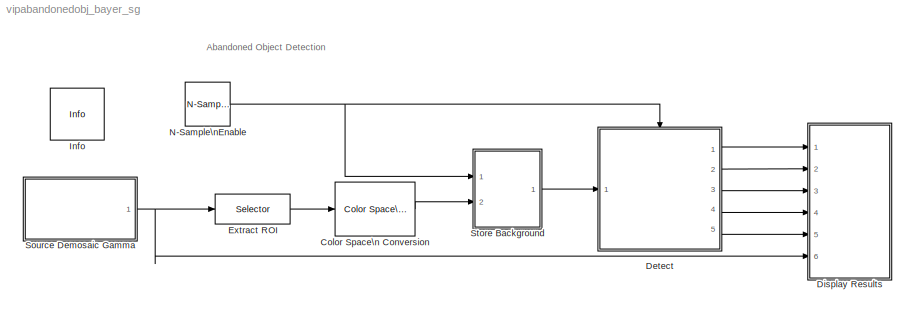
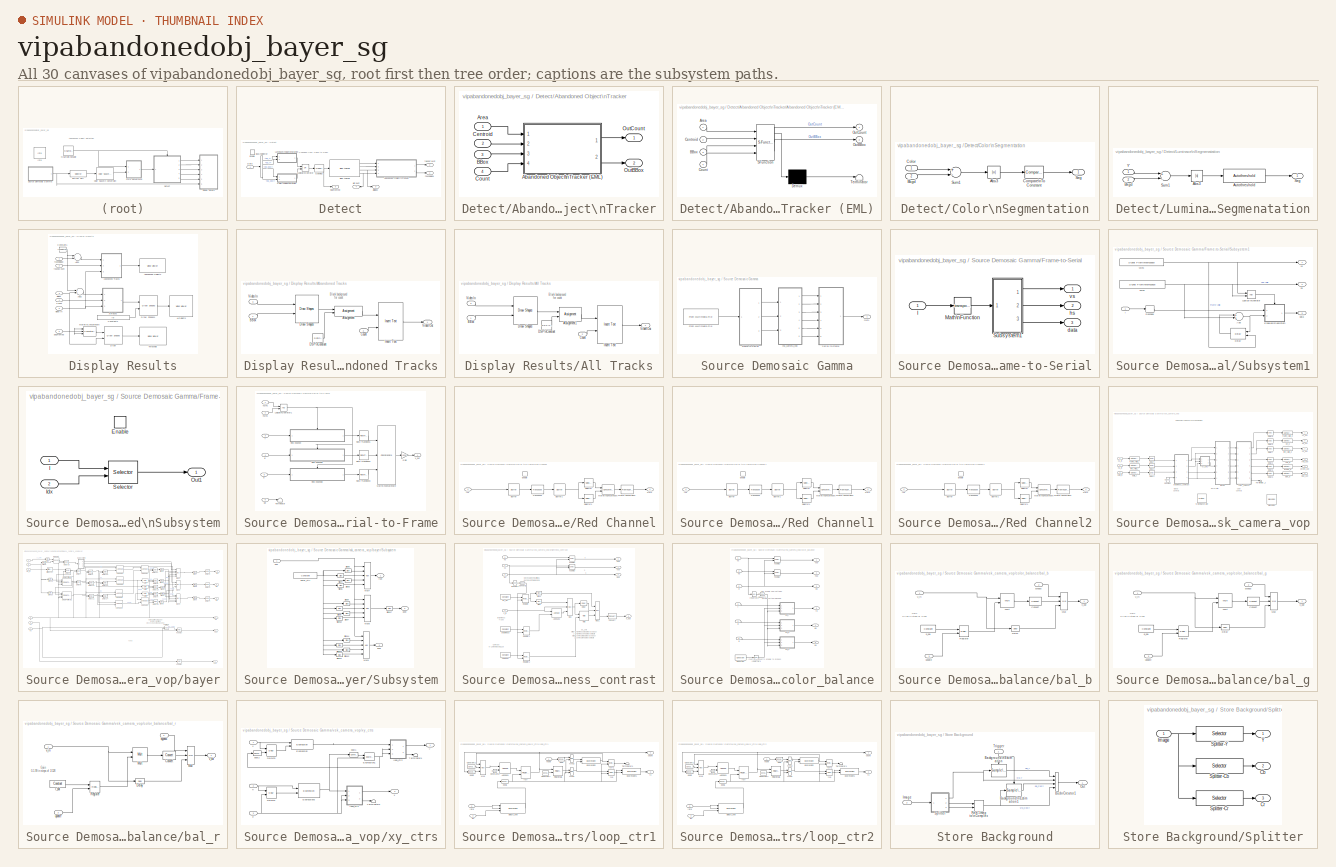
[diagram: thumbnail index - all 30 canvases of the model, root first then tree order]
MODEL vipabandonedobj_bayer_sg
KIND model
CONFIG InitFcn = init
CONFIG StartFcn = tic
CONFIG StopFcn = toc
WORKSPACE source: MATLAB code (in-file)
WORKSPACE roi = [80 100 240 360]
WORKSPACE maxNumObj = 200
BLOCK [Reference] Color Space\n Conversion  REF=vipconversions/Color Space\n Conversion
  Ports = [1, 1]
  SID = 1
  SourceBlock = vipconversions/Color Space\n Conversion
  SourceProductBaseCode = VP
  SourceProductName = Computer Vision Toolbox
  SourceType = Color Space Conversion
  conversion = Obsolete
  conversionActive = R'G'B' to Y'CbCr
  imagePorts = One multidimensional signal
  rec = Rec. 601 (SDTV)
  sys = 1125/60/2:1
  wp_str = D65
BLOCK [SubSystem] Detect
  Ports = [1, 5, 1]
  RTWMemSecDataConstants = Default
  RTWMemSecDataInternal = Default
  RTWMemSecDataParameters = Default
  RTWMemSecFuncExecute = Default
  RTWMemSecFuncInitTerm = Default
  RequestExecContextInheritance = off
  SID = 2
  TreatAsAtomicUnit = on
BLOCK [SubSystem] Detect/Abandoned Object\nTracker
  Ports = [4, 2]
  RequestExecContextInheritance = off
  SID = 5
BLOCK [SubSystem] Detect/Abandoned Object\nTracker/Abandoned Object\nTracker (EML)
  ErrorFcn = Stateflow.Translate.translate
  PermitHierarchicalResolution = ExplicitOnly
  Ports = [4, 2]
  RequestExecContextInheritance = off
  SFBlockType = MATLAB Function
  SID = 10
  TreatAsAtomicUnit = on
BLOCK [Demux] Detect/Abandoned Object\nTracker/Abandoned Object\nTracker (EML)/ Demux 
  Outputs = 1
  Ports = [1, 1]
  SID = 10::11
BLOCK [S-Function] Detect/Abandoned Object\nTracker/Abandoned Object\nTracker (EML)/ SFunction 
  EnableBusSupport = off
  FunctionName = sf_sfun
  Parameters = alarmCount,areaChangeFraction,centroidChangeFraction,maxConsecutiveMiss,minPersistenceRatio
  PortCounts = [4 3]
  Ports = [4, 3]
  SFcnIsStateOwnerBlock = off
  SFunctionDeploymentMode = off
  SID = 10::10
  Tag = Stateflow S-Function 2
BLOCK [Terminator] Detect/Abandoned Object\nTracker/Abandoned Object\nTracker (EML)/ Terminator 
  SID = 10::12
BLOCK [Inport] Detect/Abandoned Object\nTracker/Abandoned Object\nTracker (EML)/Area
  IconDisplay = Port number
  SID = 10::1
BLOCK [Inport] Detect/Abandoned Object\nTracker/Abandoned Object\nTracker (EML)/BBox
  IconDisplay = Port number
  Port = 3
  SID = 10::3
BLOCK [Inport] Detect/Abandoned Object\nTracker/Abandoned Object\nTracker (EML)/Centroid
  IconDisplay = Port number
  Port = 2
  SID = 10::2
BLOCK [Inport] Detect/Abandoned Object\nTracker/Abandoned Object\nTracker (EML)/Count
  IconDisplay = Port number
  Port = 4
  SID = 10::4
BLOCK [Outport] Detect/Abandoned Object\nTracker/Abandoned Object\nTracker (EML)/OutBBox
  IconDisplay = Port number
  Port = 2
  SID = 10::9
BLOCK [Outport] Detect/Abandoned Object\nTracker/Abandoned Object\nTracker (EML)/OutCount
  IconDisplay = Port number
  SID = 10::8
BLOCK [Inport] Detect/Abandoned Object\nTracker/Area
  IconDisplay = Port number
  SID = 6
BLOCK [Inport] Detect/Abandoned Object\nTracker/BBox
  IconDisplay = Port number
  Port = 3
  SID = 8
BLOCK [Inport] Detect/Abandoned Object\nTracker/Centroid
  IconDisplay = Port number
  Port = 2
  SID = 7
BLOCK [Inport] Detect/Abandoned Object\nTracker/Count
  IconDisplay = Port number
  Port = 4
  SID = 9
BLOCK [Outport] Detect/Abandoned Object\nTracker/OutBBox
  IconDisplay = Port number
  Port = 2
  SID = 12
BLOCK [Outport] Detect/Abandoned Object\nTracker/OutCount
  IconDisplay = Port number
  SID = 11
BLOCK [Reference] Detect/Blob Analysis  REF=vipstatistics/Blob Analysis
  LockScale = off
  Ports = [1, 4]
  SID = 13
  SourceBlock = vipstatistics/Blob Analysis
  SourceProductBaseCode = VP
  SourceProductName = Computer Vision Toolbox
  SourceType = Blob Analysis
  accumFracLength = 0
  accumMode = Binary point scaling
  accumWordLength = 32
  angle = off
  area = on
  bBox = on
  centroid = on
  conn = 8
  eccentricity = off
  equivDiameterSq = off
  excludeBorderBlob = on
  extent = off
  fillValues = -1
  firstCoeffFracLength = 14
  firstCoeffMode = Binary point scaling
  firstCoeffWordLength = 16
  isCount = on
  isFill = on
  isLabel = off
  majorAxis = off
  maxArea = 2500
  maxBlobs = maxNumObj
  memoryFracLength = 16
  memoryMode = Same as product output
  memoryWordLength = 32
  minArea = 100
  minorAxis = off
  outDT = double
  outputFracLength = 16
  outputMode = Binary point scaling
  outputWordLength = 32
  overflowMode = off
  perimeter = off
  prodOutputFracLength = 16
  prodOutputMode = Binary point scaling
  prodOutputWordLength = 32
  roundingMode = Floor
  secondCoeffFracLength = 16
  secondCoeffMode = Binary point scaling
  secondCoeffWordLength = 32
  useMaxArea = on
  useMinArea = on
  warnIfNumBlobsExceeded = on
BLOCK [BusSelector] Detect/Bus\nSelector
  OutputAsBus = off
  OutputSignals = vid_Y,bg_Y,vid_CbCr,bg_CbCr
  Ports = [1, 4]
  SID = 14
BLOCK [SubSystem] Detect/Color\nSegmentation
  Ports = [2, 1]
  RTWMemSecDataConstants = Default
  RTWMemSecDataInternal = Default
  RTWMemSecDataParameters = Default
  RTWMemSecFuncExecute = Default
  RTWMemSecFuncInitTerm = Default
  RequestExecContextInheritance = off
  SID = 15
BLOCK [Abs] Detect/Color\nSegmentation/Abs3
  SID = 18
BLOCK [Inport] Detect/Color\nSegmentation/Bkgd
  IconDisplay = Port number
  Port = 2
  SID = 17
BLOCK [Inport] Detect/Color\nSegmentation/Color
  IconDisplay = Port number
  SID = 16
BLOCK [Reference] Detect/Color\nSegmentation/Compare\nTo Constant  REF=simulink/Logic and Bit\nOperations/Compare\nTo Constant
  FunctionWithSeparateData = off
  LogicOutDataTypeMode = boolean
  Ports = [1, 1]
  RTWMemSecDataConstants = Inherit from model
  RTWMemSecDataInternal = Inherit from model
  RTWMemSecDataParameters = Inherit from model
  RTWMemSecFuncExecute = Inherit from model
  RTWMemSecFuncInitTerm = Inherit from model
  SID = 19
  ShowPortLabels = FromPortIcon
  SourceBlock = simulink/Logic and Bit\nOperations/Compare\nTo Constant
  SourceProductBaseCode = SL
  SourceProductName = Simulink
  SourceType = Compare To Constant
  SystemSampleTime = -1
  ZeroCross = off
  const = 0.05
  relop = >
BLOCK [Outport] Detect/Color\nSegmentation/Seg
  IconDisplay = Port number
  SID = 21
BLOCK [Sum] Detect/Color\nSegmentation/Sum1
  Inputs = +-
  Ports = [2, 1]
  SID = 20
BLOCK [Inport] Detect/Data
  IconDisplay = Port number
  SID = 3
BLOCK [EnablePort] Detect/Enable
  Ports = []
  SID = 4
BLOCK [Logic] Detect/Logical\nOperator
  AllPortsSameDT = off
  Operator = OR
  OutDataTypeStr = boolean
  Ports = [2, 1]
  SID = 22
BLOCK [SubSystem] Detect/Luminace\nSegmenatation
  Ports = [2, 1]
  RTWMemSecDataConstants = Default
  RTWMemSecDataInternal = Default
  RTWMemSecDataParameters = Default
  RTWMemSecFuncExecute = Default
  RTWMemSecFuncInitTerm = Default
  RequestExecContextInheritance = off
  SID = 23
BLOCK [Abs] Detect/Luminace\nSegmenatation/Abs3
  SID = 26
BLOCK [Reference] Detect/Luminace\nSegmenatation/Autothreshold  REF=vipconversions/Autothreshold
  A1FracLength = 30
  A1Mode = Same as Product 1
  A1WordLength = 32
  A2FracLength = 22
  A2Mode = Same as Product 2
  A2WordLength = 32
  A3FracLength = 14
  A3Mode = Same as Product 3
  A3WordLength = 32
  A4FracLength = 4
  A4Mode = Same as Product 4
  A4WordLength = 16
  EMFracLength = 14
  EMMode = Specify word length
  EMWordLength = 16
  LockScale = off
  P1FracLength = 30
  P1Mode = Specify word length
  P1WordLength = 32
  P2FracLength = 22
  P2Mode = Specify word length
  P2WordLength = 32
  P3FracLength = 14
  P3Mode = Specify word length
  P3WordLength = 32
  P4FracLength = 15
  P4Mode = Binary point scaling
  P4WordLength = 32
  Ports = [1, 1]
  Q1FracLength = 16
  Q1Mode = Specify word length
  Q1WordLength = 32
  SID = 27
  SourceBlock = vipconversions/Autothreshold
  SourceProductBaseCode = VP
  SourceProductName = Computer Vision Toolbox
  SourceType = Autothreshold
  effMetricOut = off
  operator = >
  outOfRngOpt = Warn and saturate
  overflowMode = off
  roundingMode = Floor
  scaleFactor = 1.3
  scaleThreshold = on
  threshOut = off
  umax = 100
  umin = 0
  userDefinedRange = off
BLOCK [Inport] Detect/Luminace\nSegmenatation/Bkgd
  IconDisplay = Port number
  Port = 2
  SID = 25
BLOCK [Outport] Detect/Luminace\nSegmenatation/Seg
  IconDisplay = Port number
  SID = 29
BLOCK [Sum] Detect/Luminace\nSegmenatation/Sum1
  Inputs = +-
  Ports = [2, 1]
  SID = 28
BLOCK [Inport] Detect/Luminace\nSegmenatation/Y'
  IconDisplay = Port number
  SID = 24
BLOCK [Reference] Detect/Opening  REF=vipmorphops/Opening
  Ports = [1, 1]
  SID = 30
  SourceBlock = vipmorphops/Opening
  SourceProductBaseCode = VP
  SourceProductName = Computer Vision Toolbox
  SourceType = Opening
  nhoodsrc = Specify via dialog
  strel = strel('square',3)
BLOCK [Outport] Detect/Segmented
  IconDisplay = Port number
  Port = 5
  SID = 35
BLOCK [Outport] Detect/allBBox
  IconDisplay = Port number
  Port = 3
  SID = 33
BLOCK [Outport] Detect/allCount
  IconDisplay = Port number
  Port = 4
  SID = 34
BLOCK [Outport] Detect/foundBBox
  IconDisplay = Port number
  SID = 31
BLOCK [Outport] Detect/foundCount
  IconDisplay = Port number
  Port = 2
  SID = 32
BLOCK [SubSystem] Display Results
  Ports = [6]
  RTWMemSecDataConstants = Default
  RTWMemSecDataInternal = Default
  RTWMemSecDataParameters = Default
  RTWMemSecFuncExecute = Default
  RTWMemSecFuncInitTerm = Default
  RequestExecContextInheritance = off
  SID = 37
BLOCK [Reference] Display Results/Abandoned Objects  REF=vipsnks/Video Viewer
  AxisZoom = on
  FigPos = [729 739 360 240]
  Ports = [1]
  SID = 44
  SourceBlock = vipsnks/Video Viewer
  SourceProductBaseCode = VP
  SourceProductName = Computer Vision Toolbox
  SourceType = Video Viewer
  colormapValue = jet(256);
  imagePorts = One multidimensional signal
  inputType = Obsolete
  maxInputVal = 255
  minInputVal = 0
  specRange = off
  trueSizedOnce = on
  useColorMap = off
BLOCK [SubSystem] Display Results/Abandoned Tracks
  Ports = [3, 1]
  RTWMemSecDataConstants = Default
  RTWMemSecDataInternal = Default
  RTWMemSecDataParameters = Default
  RTWMemSecFuncExecute = Default
  RTWMemSecFuncInitTerm = Default
  RequestExecContextInheritance = off
  SID = 45
BLOCK [Assignment] Display Results/Abandoned Tracks/Assignment
  IndexOptions = Index vector (dialog),Index vector (dialog),Assign all
  Indices = [1:15],[1:30],[]
  NumberOfDimensions = 3
  OutputSizes = 1, 1
  Ports = [2, 1]
  SID = 49
BLOCK [Inport] Display Results/Abandoned Tracks/BBox
  IconDisplay = Port number
  SID = 46
BLOCK [Inport] Display Results/Abandoned Tracks/Count
  IconDisplay = Port number
  Port = 2
  SID = 47
BLOCK [Reference] Display Results/Abandoned Tracks/DSP\nConstant  REF=dspsrcs4/DSP\nConstant
  FramebasedOutput = -inf
  FunctionWithSeparateData = off
  InterpretAs1D = -inf
  Ports = [0, 1]
  RTWMemSecDataConstants = Inherit from model
  RTWMemSecDataInternal = Inherit from model
  RTWMemSecDataParameters = Inherit from model
  RTWMemSecFuncExecute = Inherit from model
  RTWMemSecFuncInitTerm = Inherit from model
  SID = 50
  SampleMode = Discrete
  ShowPortLabels = FromPortIcon
  SourceBlock = dspsrcs4/DSP\nConstant
  SourceProductBaseCode = DS
  SourceProductName = DSP System Toolbox
  SourceType = DSP Constant
  SystemSampleTime = -1
  Ts = -inf
  Value = 0
  additionalParams = off
  allowOverrides = on
  continuousOutput = Sample-based
  dataType = Inherit via back propagation
  discreteOutput = Sample-based
  fracBitsMode = Best precision
  framePeriod = 2
  isSigned = on
  numFracBits = 15
  sampTime = inf
  udDataType = sfix(16)
  wordLen = 16
BLOCK [Reference] Display Results/Abandoned Tracks/Draw Shapes  REF=viptextngfix/Draw Shapes
  Ports = [2, 1]
  SID = 51
  SourceBlock = viptextngfix/Draw Shapes
  SourceProductBaseCode = VP
  SourceProductName = Computer Vision Toolbox
  SourceType = Draw Shapes
  antialiasing = off
  color = [1 0 0]
  display = User-specified value
  fill = on
  imagePorts = One multidimensional signal
  inType = Obsolete
  intensity = 200
  opacity = 0.5
  shape = Rectangles
  viewport = Entire image
BLOCK [Reference] Display Results/Abandoned Tracks/Insert Text  REF=viptextngfix/Insert Text
  Ports = [2, 1]
  SID = 52
  SourceBlock = viptextngfix/Insert Text
  SourceProductBaseCode = VP
  SourceProductName = Computer Vision Toolbox
  SourceType = Insert Text
  antiAliased = on
  blockFontSize = 12
  dummyVar1 = 0
  dummyVar2 = 0
  dummyVar3 = 0
  dummyVar4 = 0
  fontFace = LucidaTypewriterRegular
  getTextColorFrom = Specify via dialog
  getTextIntensityFrom = Specify via dialog
  getTextLocFrom = Specify via dialog
  getTextOpacityFrom = Specify via dialog
  imagePorts = One multidimensional signal
  inputType = Obsolete
  textColor = [1 1 1]
  textIntensity = 1
  textLoc = [0 0]
  textOpacity = 1.0
  theText = '%4d'
BLOCK [Inport] Display Results/Abandoned Tracks/Video In
  IconDisplay = Port number
  Port = 3
  SID = 48
BLOCK [Outport] Display Results/Abandoned Tracks/Video Out
  IconDisplay = Port number
  SID = 53
BLOCK [Sum] Display Results/Add1
  InputSameDT = off
  OutDataTypeStr = int32
  Ports = [2, 1]
  SID = 55
  SaturateOnIntegerOverflow = off
BLOCK [Sum] Display Results/Add2
  InputSameDT = off
  OutDataTypeStr = int32
  Ports = [2, 1]
  SID = 56
  SaturateOnIntegerOverflow = off
BLOCK [Reference] Display Results/All Objects  REF=vipsnks/Video Viewer
  AxisZoom = on
  FigPos = [361 738 360 240]
  Ports = [1]
  SID = 57
  SourceBlock = vipsnks/Video Viewer
  SourceProductBaseCode = VP
  SourceProductName = Computer Vision Toolbox
  SourceType = Video Viewer
  colormapValue = jet(256);
  imagePorts = One multidimensional signal
  inputType = Obsolete
  maxInputVal = 255
  minInputVal = 0
  specRange = off
  trueSizedOnce = on
  useColorMap = off
BLOCK [SubSystem] Display Results/All Tracks
  Ports = [3, 1]
  RTWMemSecDataConstants = Default
  RTWMemSecDataInternal = Default
  RTWMemSecDataParameters = Default
  RTWMemSecFuncExecute = Default
  RTWMemSecFuncInitTerm = Default
  RequestExecContextInheritance = off
  SID = 58
BLOCK [Assignment] Display Results/All Tracks/Assignment1
  IndexOptions = Index vector (dialog),Index vector (dialog),Assign all
  Indices = [1:15],[1:30],[]
  NumberOfDimensions = 3
  OutputSizes = 1, 1
  Ports = [2, 1]
  SID = 62
BLOCK [Inport] Display Results/All Tracks/BBox
  IconDisplay = Port number
  SID = 59
BLOCK [Inport] Display Results/All Tracks/Count
  IconDisplay = Port number
  Port = 2
  SID = 60
BLOCK [Reference] Display Results/All Tracks/DSP\nConstant  REF=dspsrcs4/DSP\nConstant
  FramebasedOutput = -inf
  FunctionWithSeparateData = off
  InterpretAs1D = -inf
  Ports = [0, 1]
  RTWMemSecDataConstants = Inherit from model
  RTWMemSecDataInternal = Inherit from model
  RTWMemSecDataParameters = Inherit from model
  RTWMemSecFuncExecute = Inherit from model
  RTWMemSecFuncInitTerm = Inherit from model
  SID = 63
  SampleMode = Discrete
  ShowPortLabels = FromPortIcon
  SourceBlock = dspsrcs4/DSP\nConstant
  SourceProductBaseCode = DS
  SourceProductName = DSP System Toolbox
  SourceType = DSP Constant
  SystemSampleTime = -1
  Ts = -inf
  Value = 0
  additionalParams = off
  allowOverrides = on
  continuousOutput = Sample-based
  dataType = Inherit via back propagation
  discreteOutput = Sample-based
  fracBitsMode = Best precision
  framePeriod = 2
  isSigned = on
  numFracBits = 15
  sampTime = inf
  udDataType = sfix(16)
  wordLen = 16
BLOCK [Reference] Display Results/All Tracks/Draw Shapes  REF=viptextngfix/Draw Shapes
  Ports = [2, 1]
  SID = 64
  SourceBlock = viptextngfix/Draw Shapes
  SourceProductBaseCode = VP
  SourceProductName = Computer Vision Toolbox
  SourceType = Draw Shapes
  antialiasing = off
  color = [0 1 0]
  display = User-specified value
  fill = off
  imagePorts = One multidimensional signal
  inType = Obsolete
  intensity = 200
  opacity = 0.6
  shape = Rectangles
  viewport = Entire image
BLOCK [Reference] Display Results/All Tracks/Insert Text  REF=viptextngfix/Insert Text
  Ports = [2, 1]
  SID = 65
  SourceBlock = viptextngfix/Insert Text
  SourceProductBaseCode = VP
  SourceProductName = Computer Vision Toolbox
  SourceType = Insert Text
  antiAliased = on
  blockFontSize = 12
  dummyVar1 = 0
  dummyVar2 = 0
  dummyVar3 = 0
  dummyVar4 = 0
  fontFace = LucidaTypewriterRegular
  getTextColorFrom = Specify via dialog
  getTextIntensityFrom = Specify via dialog
  getTextLocFrom = Specify via dialog
  getTextOpacityFrom = Specify via dialog
  imagePorts = One multidimensional signal
  inputType = Obsolete
  textColor = [1 1 1]
  textIntensity = 1
  textLoc = [0 0]
  textOpacity = 1.0
  theText = '%4d'
BLOCK [Inport] Display Results/All Tracks/Video In
  IconDisplay = Port number
  Port = 3
  SID = 61
BLOCK [Outport] Display Results/All Tracks/Video Out
  IconDisplay = Port number
  SID = 66
BLOCK [Inport] Display Results/BBox
  IconDisplay = Port number
  Port = 3
  SID = 40
BLOCK [Constant] Display Results/Constant1
  OutDataTypeStr = Inherit: Inherit via back propagation
  SID = 68
  Value = repmat([roi(1); roi(2); 0 ; 0],[1 maxNumObj])
  VectorParams1D = off
BLOCK [Constant] Display Results/Constant2
  SID = 69
  Value = roi
  VectorParams1D = off
BLOCK [Inport] Display Results/Count
  IconDisplay = Port number
  Port = 4
  SID = 41
BLOCK [Reference] Display Results/Draw  REF=viptextngfix/Draw Shapes
  Ports = [2, 1]
  SID = 70
  SourceBlock = viptextngfix/Draw Shapes
  SourceProductBaseCode = VP
  SourceProductName = Computer Vision Toolbox
  SourceType = Draw Shapes
  antialiasing = off
  color = [0 1 0]
  display = User-specified value
  fill = off
  imagePorts = One multidimensional signal
  inType = Obsolete
  intensity = 200
  opacity = 0.6
  shape = Rectangles
  viewport = Entire image
BLOCK [Reference] Display Results/Draw Shapes1  REF=viptextngfix/Draw Shapes
  Ports = [2, 1]
  SID = 71
  SourceBlock = viptextngfix/Draw Shapes
  SourceProductBaseCode = VP
  SourceProductName = Computer Vision Toolbox
  SourceType = Draw Shapes
  antialiasing = off
  color = [1 1 0]
  display = User-specified value
  fill = off
  imagePorts = One multidimensional signal
  inType = Obsolete
  intensity = 200
  opacity = 0.6
  shape = Rectangles
  viewport = Entire image
BLOCK [Concatenate] Display Results/Matrix\nConcatenate
  ConcatenateDimension = 3
  Mode = Multidimensional array
  NumInputs = 3
  Ports = [3, 1]
  SID = 72
BLOCK [Inport] Display Results/Segmented
  IconDisplay = Port number
  Port = 5
  SID = 42
BLOCK [Reference] Display Results/Threshold  REF=vipsnks/Video Viewer
  AxisZoom = on
  FigPos = [92 738 261 161]
  Ports = [1]
  SID = 73
  SourceBlock = vipsnks/Video Viewer
  SourceProductBaseCode = VP
  SourceProductName = Computer Vision Toolbox
  SourceType = Video Viewer
  colormapValue = jet(256);
  imagePorts = One multidimensional signal
  inputType = Obsolete
  maxInputVal = 255
  minInputVal = 0
  specRange = off
  trueSizedOnce = on
  useColorMap = off
BLOCK [Inport] Display Results/Video In
  IconDisplay = Port number
  Port = 6
  SID = 43
BLOCK [Inport] Display Results/foundBBox
  IconDisplay = Port number
  SID = 38
BLOCK [Inport] Display Results/foundCount
  IconDisplay = Port number
  Port = 2
  SID = 39
BLOCK [Selector] Extract ROI
  IndexOptions = Index vector (dialog),Index vector (dialog),Select all
  Indices = [roi(1):240],[roi(2):360],[]
  NumberOfDimensions = 3
  OutputSizes = 1
  Ports = [1, 1]
  SID = 74
BLOCK [Reference] Info  REF=vipmisc/Info
  FunctionWithSeparateData = off
  Ports = []
  RTWMemSecDataConstants = Inherit from model
  RTWMemSecDataInternal = Inherit from model
  RTWMemSecDataParameters = Inherit from model
  RTWMemSecFuncExecute = Inherit from model
  RTWMemSecFuncInitTerm = Inherit from model
  SID = 75
  ShowPortLabels = FromPortIcon
  SourceBlock = vipmisc/Info
  SourceProductBaseCode = VP
  SourceProductName = Computer Vision Toolbox
  SourceType = Info
  SystemSampleTime = -1
BLOCK [Reference] N-Sample\nEnable  REF=dspswit3/N-Sample\nEnable
  ActiveLevel = High (1)
  DataType = Logical
  N = 1
  Ports = [0, 1]
  SID = 76
  SourceBlock = dspswit3/N-Sample\nEnable
  SourceProductBaseCode = DS
  SourceProductName = DSP System Toolbox
  SourceType = N-Sample Enable
  TriggerType = Rising edge
  Ts = -1
  reset = off
BLOCK [SubSystem] Source Demosaic Gamma
  Ports = [0, 1]
  RequestExecContextInheritance = off
  SID = 77
BLOCK [SubSystem] Source Demosaic Gamma/Frame-to-Serial
  Ports = [1, 3]
  RequestExecContextInheritance = off
  SID = 78
BLOCK [Inport] Source Demosaic Gamma/Frame-to-Serial/I
  IconDisplay = Port number
  SID = 79
BLOCK [Math] Source Demosaic Gamma/Frame-to-Serial/Math\nFunction
  Operator = transpose
  Ports = [1, 1]
  SID = 80
BLOCK [SubSystem] Source Demosaic Gamma/Frame-to-Serial/Subsystem1
  Ports = [1, 3]
  RequestExecContextInheritance = off
  SID = 81
BLOCK [Sum] Source Demosaic Gamma/Frame-to-Serial/Subsystem1/Add
  InputSameDT = off
  OutDataTypeStr = Inherit: Inherit via internal rule
  Ports = [2, 1]
  SID = 83
  SaturateOnIntegerOverflow = off
BLOCK [Reference] Source Demosaic Gamma/Frame-to-Serial/Subsystem1/Delay  REF=dspsigops/Delay
  Ports = [2, 1]
  SID = 84
  SourceBlock = dspsigops/Delay
  SourceProductBaseCode = DS
  SourceProductName = DSP System Toolbox
  SourceType = Delay
  delay = 1
  dif_ic_for_ch = off
  dif_ic_for_dly = off
  dly_unit = Samples
  ic = 0
  ic_detail = off
  reset_popup = Falling edge
BLOCK [SubSystem] Source Demosaic Gamma/Frame-to-Serial/Subsystem1/Enabled\nSubsystem
  Ports = [2, 1, 1]
  RequestExecContextInheritance = off
  SID = 85
  TreatAsAtomicUnit = on
BLOCK [EnablePort] Source Demosaic Gamma/Frame-to-Serial/Subsystem1/Enabled\nSubsystem/Enable
  Ports = []
  SID = 88
BLOCK [Inport] Source Demosaic Gamma/Frame-to-Serial/Subsystem1/Enabled\nSubsystem/I
  IconDisplay = Port number
  SID = 86
BLOCK [Inport] Source Demosaic Gamma/Frame-to-Serial/Subsystem1/Enabled\nSubsystem/Idx
  IconDisplay = Port number
  Port = 2
  SID = 87
BLOCK [Outport] Source Demosaic Gamma/Frame-to-Serial/Subsystem1/Enabled\nSubsystem/Out1
  IconDisplay = Port number
  SID = 90
BLOCK [Selector] Source Demosaic Gamma/Frame-to-Serial/Subsystem1/Enabled\nSubsystem/Selector
  IndexOptions = Index vector (port)
  Indices = [1 4]
  InputPortWidth = rows*cols
  OutputSizes = 1
  Ports = [2, 1]
  SID = 89
  SampleTime = (1/fps)/(rows*(cols+2*blk))
BLOCK [Inport] Source Demosaic Gamma/Frame-to-Serial/Subsystem1/I
  IconDisplay = Port number
  SID = 82
BLOCK [Logic] Source Demosaic Gamma/Frame-to-Serial/Subsystem1/Logical\nOperator
  AllPortsSameDT = off
  OutDataTypeStr = boolean
  Ports = [2, 1]
  SID = 91
BLOCK [Reshape] Source Demosaic Gamma/Frame-to-Serial/Subsystem1/Reshape
  Ports = [1, 1]
  SID = 92
BLOCK [Outport] Source Demosaic Gamma/Frame-to-Serial/Subsystem1/data
  IconDisplay = Port number
  Port = 3
  SID = 97
BLOCK [Outport] Source Demosaic Gamma/Frame-to-Serial/Subsystem1/hs
  IconDisplay = Port number
  Port = 2
  SID = 96
BLOCK [Reference] Source Demosaic Gamma/Frame-to-Serial/Subsystem1/hsync  REF=dspsrcs4/Signal From\nWorkspace
  FunctionWithSeparateData = off
  OutputAfterFinalValue = Cyclic repetition
  Ports = [0, 1]
  RTWMemSecDataConstants = Inherit from model
  RTWMemSecDataInternal = Inherit from model
  RTWMemSecDataParameters = Inherit from model
  RTWMemSecFuncExecute = Inherit from model
  RTWMemSecFuncInitTerm = Inherit from model
  SID = 93
  ShowPortLabels = FromPortIcon
  SourceBlock = dspsrcs4/Signal From\nWorkspace
  SourceProductBaseCode = DS
  SourceProductName = DSP System Toolbox
  SourceType = Signal From Workspace
  SystemSampleTime = -1
  Ts = (1/fps)/ (rows*(cols+2*blk))
  X = [zeros(1,blk) ones(1,cols) zeros(1,blk)]
  ignoreOrWarnInputAndFrameLengths = off
  nsamps = 1
BLOCK [Outport] Source Demosaic Gamma/Frame-to-Serial/Subsystem1/vs
  IconDisplay = Port number
  SID = 95
BLOCK [Reference] Source Demosaic Gamma/Frame-to-Serial/Subsystem1/vsync  REF=dspsrcs4/Signal From\nWorkspace
  FunctionWithSeparateData = off
  OutputAfterFinalValue = Cyclic repetition
  Ports = [0, 1]
  RTWMemSecDataConstants = Inherit from model
  RTWMemSecDataInternal = Inherit from model
  RTWMemSecDataParameters = Inherit from model
  RTWMemSecFuncExecute = Inherit from model
  RTWMemSecFuncInitTerm = Inherit from model
  SID = 94
  ShowPortLabels = FromPortIcon
  SourceBlock = dspsrcs4/Signal From\nWorkspace
  SourceProductBaseCode = DS
  SourceProductName = DSP System Toolbox
  SourceType = Signal From Workspace
  SystemSampleTime = -1
  Ts = (1/fps)/(rows*(cols+2*blk))
  X = [ zeros(1,blk) ones(1,rows*(cols+2*blk)-2*blk) zeros(1,blk) ]
  ignoreOrWarnInputAndFrameLengths = off
  nsamps = 1
BLOCK [Outport] Source Demosaic Gamma/Frame-to-Serial/data
  IconDisplay = Port number
  Port = 3
  SID = 100
BLOCK [Outport] Source Demosaic Gamma/Frame-to-Serial/hs
  IconDisplay = Port number
  Port = 2
  SID = 99
BLOCK [Outport] Source Demosaic Gamma/Frame-to-Serial/vs
  IconDisplay = Port number
  SID = 98
BLOCK [Reference] Source Demosaic Gamma/From Multimedia File  REF=dspwin32/From Multimedia File
  Ports = [0, 1]
  SID = 101
  SourceBlock = dspwin32/From Multimedia File
  SourceProductBaseCode = DS
  SourceProductName = DSP System Toolbox
  SourceType = From Multimedia File
  audioDataType = int16
  colorVideoFormat = One multidimensional signal
  dataOrg = Column-major
  inheritSampleTime = off
  inputFilename = <path>
  isIntensityVideo = on
  loop = on
  noAudioOutput = off
  numPlays = inf
  outputEOF = off
  outputStreams = Video only
  userDefinedSampleTime = 1/fps
  videoDataType = uint8
BLOCK [Outport] Source Demosaic Gamma/Out1
  IconDisplay = Port number
  SID = 426
BLOCK [SubSystem] Source Demosaic Gamma/Serial-to-Frame
  Ports = [6, 1]
  RequestExecContextInheritance = off
  SID = 102
BLOCK [Gain] Source Demosaic Gamma/Serial-to-Frame/Gain
  Gain = 1/255
  OutDataTypeStr = Inherit: Inherit via internal rule
  ParamDataTypeStr = Inherit: Inherit via internal rule
  SID = 109
  SaturateOnIntegerOverflow = off
BLOCK [Logic] Source Demosaic Gamma/Serial-to-Frame/Logical\nOperator1
  AllPortsSameDT = off
  OutDataTypeStr = boolean
  Ports = [2, 1]
  SID = 110
BLOCK [Concatenate] Source Demosaic Gamma/Serial-to-Frame/Matrix\nConcatenate
  ConcatenateDimension = 3
  Mode = Multidimensional array
  NumInputs = 3
  Ports = [3, 1]
  SID = 111
BLOCK [RateTransition] Source Demosaic Gamma/Serial-to-Frame/Rate Transition1
  Deterministic = off
  OutPortSampleTime = 1/fps
  SID = 112
BLOCK [RateTransition] Source Demosaic Gamma/Serial-to-Frame/Rate Transition2
  Deterministic = off
  OutPortSampleTime = 1/fps
  SID = 113
BLOCK [RateTransition] Source Demosaic Gamma/Serial-to-Frame/Rate Transition3
  Deterministic = off
  OutPortSampleTime = 1/fps
  SID = 114
BLOCK [SubSystem] Source Demosaic Gamma/Serial-to-Frame/Red Channel
  Ports = [1, 1, 1]
  RequestExecContextInheritance = off
  SID = 115
BLOCK [Reference] Source Demosaic Gamma/Serial-to-Frame/Red Channel/Buffer  REF=dspbuff3/Buffer
  N = cols
  Ports = [1, 1]
  SID = 118
  SourceBlock = dspbuff3/Buffer
  SourceProductBaseCode = DS
  SourceProductName = DSP System Toolbox
  SourceType = Buffer
  V = 0
  ic = 0
BLOCK [Reference] Source Demosaic Gamma/Serial-to-Frame/Red Channel/Buffer1  REF=dspbuff3/Buffer
  N = rows
  Ports = [1, 1]
  SID = 119
  SourceBlock = dspbuff3/Buffer
  SourceProductBaseCode = DS
  SourceProductName = DSP System Toolbox
  SourceType = Buffer
  V = 0
  ic = 0
BLOCK [EnablePort] Source Demosaic Gamma/Serial-to-Frame/Red Channel/Enable
  Ports = []
  SID = 117
BLOCK [FrameConversion] Source Demosaic Gamma/Serial-to-Frame/Red Channel/Frame Conversion1
  OutFrame = Sample-based
  Ports = [1, 1]
  SID = 120
BLOCK [Inport] Source Demosaic Gamma/Serial-to-Frame/Red Channel/In1
  IconDisplay = Port number
  SID = 116
BLOCK [Concatenate] Source Demosaic Gamma/Serial-to-Frame/Red Channel/Matrix\nConcatenate
  Mode = Multidimensional array
  Ports = [2, 1]
  SID = 121
BLOCK [Outport] Source Demosaic Gamma/Serial-to-Frame/Red Channel/Out1
  IconDisplay = Port number
  SID = 125
BLOCK [Selector] Source Demosaic Gamma/Serial-to-Frame/Red Channel/Selector
  IndexOptions = Index vector (dialog),Select all
  Indices = 22:rows,1
  InputPortWidth = 3
  NumberOfDimensions = 2
  OutputSizes = 1,1
  Ports = [1, 1]
  SID = 122
BLOCK [Selector] Source Demosaic Gamma/Serial-to-Frame/Red Channel/Selector1
  IndexOptions = Index vector (dialog),Select all
  Indices = 1:21,1
  InputPortWidth = 3
  NumberOfDimensions = 2
  OutputSizes = 1,1
  Ports = [1, 1]
  SID = 123
BLOCK [Reference] Source Demosaic Gamma/Serial-to-Frame/Red Channel/Transpose  REF=dspmtrx3/Transpose
  FunctionWithSeparateData = off
  Hermitian = off
  Ports = [1, 1]
  RTWMemSecDataConstants = Inherit from model
  RTWMemSecDataInternal = Inherit from model
  RTWMemSecDataParameters = Inherit from model
  RTWMemSecFuncExecute = Inherit from model
  RTWMemSecFuncInitTerm = Inherit from model
  SID = 124
  ShowPortLabels = FromPortIcon
  SourceBlock = dspmtrx3/Transpose
  SourceProductBaseCode = DS
  SourceProductName = DSP System Toolbox
  SourceType = Transpose
  SystemSampleTime = -1
  overflowFlag = off
BLOCK [SubSystem] Source Demosaic Gamma/Serial-to-Frame/Red Channel1
  Ports = [1, 1, 1]
  RequestExecContextInheritance = off
  SID = 126
BLOCK [Reference] Source Demosaic Gamma/Serial-to-Frame/Red Channel1/Buffer  REF=dspbuff3/Buffer
  N = cols
  Ports = [1, 1]
  SID = 129
  SourceBlock = dspbuff3/Buffer
  SourceProductBaseCode = DS
  SourceProductName = DSP System Toolbox
  SourceType = Buffer
  V = 0
  ic = 0
BLOCK [Reference] Source Demosaic Gamma/Serial-to-Frame/Red Channel1/Buffer1  REF=dspbuff3/Buffer
  N = rows
  Ports = [1, 1]
  SID = 130
  SourceBlock = dspbuff3/Buffer
  SourceProductBaseCode = DS
  SourceProductName = DSP System Toolbox
  SourceType = Buffer
  V = 0
  ic = 0
BLOCK [EnablePort] Source Demosaic Gamma/Serial-to-Frame/Red Channel1/Enable
  Ports = []
  SID = 128
BLOCK [FrameConversion] Source Demosaic Gamma/Serial-to-Frame/Red Channel1/Frame Conversion1
  OutFrame = Sample-based
  Ports = [1, 1]
  SID = 131
BLOCK [Inport] Source Demosaic Gamma/Serial-to-Frame/Red Channel1/In1
  IconDisplay = Port number
  SID = 127
BLOCK [Concatenate] Source Demosaic Gamma/Serial-to-Frame/Red Channel1/Matrix\nConcatenate
  Mode = Multidimensional array
  Ports = [2, 1]
  SID = 132
BLOCK [Outport] Source Demosaic Gamma/Serial-to-Frame/Red Channel1/Out1
  IconDisplay = Port number
  SID = 136
BLOCK [Selector] Source Demosaic Gamma/Serial-to-Frame/Red Channel1/Selector
  IndexOptions = Index vector (dialog),Select all
  Indices = 22:rows,1
  InputPortWidth = 3
  NumberOfDimensions = 2
  OutputSizes = 1,1
  Ports = [1, 1]
  SID = 133
BLOCK [Selector] Source Demosaic Gamma/Serial-to-Frame/Red Channel1/Selector1
  IndexOptions = Index vector (dialog),Select all
  Indices = 1:21,1
  InputPortWidth = 3
  NumberOfDimensions = 2
  OutputSizes = 1,1
  Ports = [1, 1]
  SID = 134
BLOCK [Reference] Source Demosaic Gamma/Serial-to-Frame/Red Channel1/Transpose  REF=dspmtrx3/Transpose
  FunctionWithSeparateData = off
  Hermitian = off
  Ports = [1, 1]
  RTWMemSecDataConstants = Inherit from model
  RTWMemSecDataInternal = Inherit from model
  RTWMemSecDataParameters = Inherit from model
  RTWMemSecFuncExecute = Inherit from model
  RTWMemSecFuncInitTerm = Inherit from model
  SID = 135
  ShowPortLabels = FromPortIcon
  SourceBlock = dspmtrx3/Transpose
  SourceProductBaseCode = DS
  SourceProductName = DSP System Toolbox
  SourceType = Transpose
  SystemSampleTime = -1
  overflowFlag = off
BLOCK [SubSystem] Source Demosaic Gamma/Serial-to-Frame/Red Channel2
  Ports = [1, 1, 1]
  RequestExecContextInheritance = off
  SID = 137
BLOCK [Reference] Source Demosaic Gamma/Serial-to-Frame/Red Channel2/Buffer  REF=dspbuff3/Buffer
  N = cols
  Ports = [1, 1]
  SID = 140
  SourceBlock = dspbuff3/Buffer
  SourceProductBaseCode = DS
  SourceProductName = DSP System Toolbox
  SourceType = Buffer
  V = 0
  ic = 0
BLOCK [Reference] Source Demosaic Gamma/Serial-to-Frame/Red Channel2/Buffer1  REF=dspbuff3/Buffer
  N = rows
  Ports = [1, 1]
  SID = 141
  SourceBlock = dspbuff3/Buffer
  SourceProductBaseCode = DS
  SourceProductName = DSP System Toolbox
  SourceType = Buffer
  V = 0
  ic = 0
BLOCK [EnablePort] Source Demosaic Gamma/Serial-to-Frame/Red Channel2/Enable
  Ports = []
  SID = 139
BLOCK [FrameConversion] Source Demosaic Gamma/Serial-to-Frame/Red Channel2/Frame Conversion1
  OutFrame = Sample-based
  Ports = [1, 1]
  SID = 142
BLOCK [Inport] Source Demosaic Gamma/Serial-to-Frame/Red Channel2/In1
  IconDisplay = Port number
  SID = 138
BLOCK [Concatenate] Source Demosaic Gamma/Serial-to-Frame/Red Channel2/Matrix\nConcatenate
  Mode = Multidimensional array
  Ports = [2, 1]
  SID = 143
BLOCK [Outport] Source Demosaic Gamma/Serial-to-Frame/Red Channel2/Out1
  IconDisplay = Port number
  SID = 147
BLOCK [Selector] Source Demosaic Gamma/Serial-to-Frame/Red Channel2/Selector
  IndexOptions = Index vector (dialog),Select all
  Indices = 22:rows,1
  InputPortWidth = 3
  NumberOfDimensions = 2
  OutputSizes = 1,1
  Ports = [1, 1]
  SID = 144
BLOCK [Selector] Source Demosaic Gamma/Serial-to-Frame/Red Channel2/Selector1
  IndexOptions = Index vector (dialog),Select all
  Indices = 1:21,1
  InputPortWidth = 3
  NumberOfDimensions = 2
  OutputSizes = 1,1
  Ports = [1, 1]
  SID = 145
BLOCK [Reference] Source Demosaic Gamma/Serial-to-Frame/Red Channel2/Transpose  REF=dspmtrx3/Transpose
  FunctionWithSeparateData = off
  Hermitian = off
  Ports = [1, 1]
  RTWMemSecDataConstants = Inherit from model
  RTWMemSecDataInternal = Inherit from model
  RTWMemSecDataParameters = Inherit from model
  RTWMemSecFuncExecute = Inherit from model
  RTWMemSecFuncInitTerm = Inherit from model
  SID = 146
  ShowPortLabels = FromPortIcon
  SourceBlock = dspmtrx3/Transpose
  SourceProductBaseCode = DS
  SourceProductName = DSP System Toolbox
  SourceType = Transpose
  SystemSampleTime = -1
  overflowFlag = off
BLOCK [Terminator] Source Demosaic Gamma/Serial-to-Frame/Terminator
  SID = 148
BLOCK [Inport] Source Demosaic Gamma/Serial-to-Frame/b
  IconDisplay = Port number
  Port = 5
  SID = 107
BLOCK [Inport] Source Demosaic Gamma/Serial-to-Frame/de
  IconDisplay = Port number
  Port = 6
  SID = 108
BLOCK [Inport] Source Demosaic Gamma/Serial-to-Frame/g
  IconDisplay = Port number
  Port = 4
  SID = 106
BLOCK [Inport] Source Demosaic Gamma/Serial-to-Frame/hsync
  IconDisplay = Port number
  Port = 2
  SID = 104
BLOCK [Inport] Source Demosaic Gamma/Serial-to-Frame/r
  IconDisplay = Port number
  Port = 3
  SID = 105
BLOCK [Outport] Source Demosaic Gamma/Serial-to-Frame/v_out
  IconDisplay = Port number
  SID = 149
BLOCK [Inport] Source Demosaic Gamma/Serial-to-Frame/vsync
  IconDisplay = Port number
  SID = 103
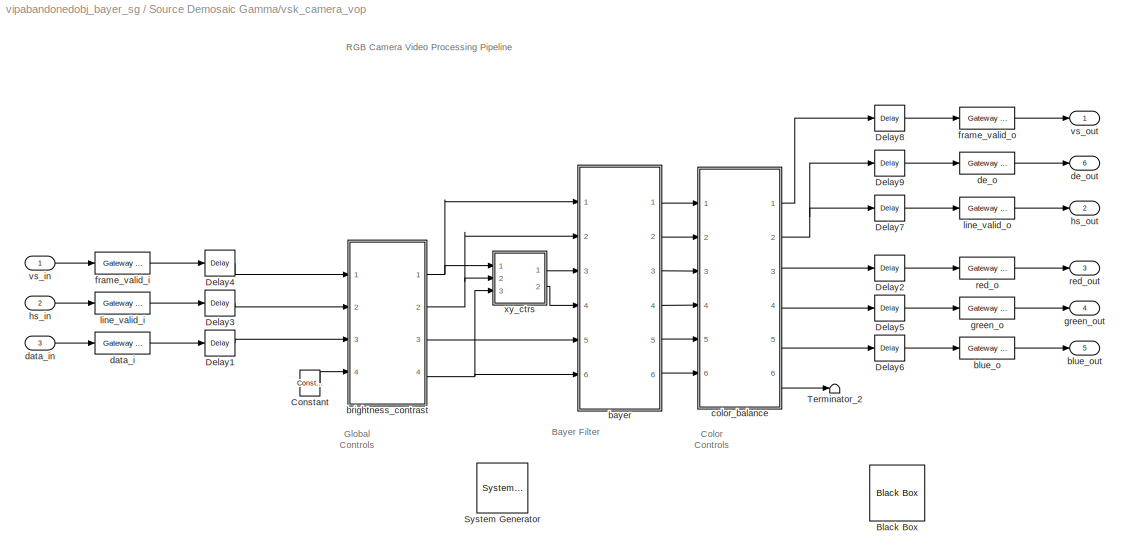
BLOCK [SubSystem] Source Demosaic Gamma/vsk_camera_vop
  Ports = [3, 6]
  RequestExecContextInheritance = off
  SID = 150
BLOCK [Reference] Source Demosaic Gamma/vsk_camera_vop/ System Generator  REF=xbsIndex_r4/ System Generator
  AttributesFormatString = System\\nGenerator
  FunctionWithSeparateData = off
  Ports = []
  RTWMemSecDataConstants = Inherit from model
  RTWMemSecDataInternal = Inherit from model
  RTWMemSecDataParameters = Inherit from model
  RTWMemSecFuncExecute = Inherit from model
  RTWMemSecFuncInitTerm = Inherit from model
  SID = 154
  ShowPortLabels = FromPortIcon
  SourceBlock = xbsIndex_r4/ System Generator
  SourceType = Xilinx System Generator Block
  SystemSampleTime = -1
  Tag = genX
  UserData = DataTag0
  UserDataPersistent = on
  block_type = sysgen
  block_version = 9.2.01
  core_generation = According to Block Masks
  dbl_ovrd = According to Block Masks
  deprecated_control = off
  directory = ./netlist
  eval_field = 0
  has_advanced_control = 0
  incr_netlist = off
  infoedit = System Generator
  package = ff668
  part = xc4vsx35
  run_coregen = off
  sg_icon_stat = 51,50,-1,-1,red,beige,0,07734
  sg_mask_display = fprintf('','COMMENT: begin icon graphics');\npatch([0 51 51 0 ],[0 0 50 50 ],[0.93 0.92 0.86]);\npatch([12 4 16 4 12 25 29 33 47 36 25 17 29 17 25 36 47 33 29 25 12 ],[5 13 25 37 45 45 41 45 45 34 45 37 25 13 5 16 5 5 9 5 5 ],[0.6 0.2 0.25]);\nplot([0 0 51 51 0 ],[0 50 50 0 0 ]);\nfprintf('','COMMENT: end icon graphics');\nfprintf('','COMMENT: begin icon text');\nfprintf('','COMMENT: end icon text...<+5ch>
  sggui_pos = -1,-1,-1,-1
  simulink_period = (1/fps)/ (rows*(cols+2*blk))
  speed = -10
  synthesis_tool = XST
  sysclk_period = 10
  testbench = off
  trim_vbits = Everywhere in SubSystem
  xilinxfamily = virtex4
BLOCK [Reference] Source Demosaic Gamma/vsk_camera_vop/Black Box  REF=xbsIndex_r4/Black Box
  Ports = []
  SID = 155
  SourceBlock = xbsIndex_r4/Black Box
  SourceType = Xilinx Black Box Block
  block_type = blackbox2
  block_version = 9.2.01
  has_advanced_control = 0
  infoedit = Incorporates black box HDL and simulation model into a System Generator design.<P><P>You must supply a Black Box with certain information about the HDL component you would like to bring into System Generator. This information is provided through a Matlab function.<P><P>When \"Simulation mode\" is set to \"Inactive\", you will typically want to provide a separate simulation model by using a Simulat...<+129ch>
  sg_icon_stat = 55,56,0,0,white,blue,0,75ccfc7e
  sg_mask_display = fprintf('','COMMENT: begin icon graphics');\npatch([0 55 55 0 ],[0 0 56 56 ],[0.77 0.82 0.91]);\npatch([13 4 17 4 13 28 32 36 52 40 28 19 32 19 28 40 52 36 32 28 13 ],[6 15 28 41 50 50 46 50 50 38 50 41 28 15 6 18 6 6 10 6 6 ],[0.98 0.96 0.92]);\nplot([0 0 55 55 0 ],[0 56 56 0 0 ]);\nfprintf('','COMMENT: end icon graphics');\nfprintf('','COMMENT: begin icon text');\n\nfprintf('','COMMENT: end icon...<+10ch>
  sggui_pos = -1,-1,-1,-1
  sim_method = Inactive
  xl_area = [0,0,0,0,0,0,0]
  xl_use_area = off
BLOCK [Reference] Source Demosaic Gamma/vsk_camera_vop/Constant  REF=xbsIndex_r4/Constant
  Ports = [0, 1]
  SID = 156
  SourceBlock = xbsIndex_r4/Constant
  SourceType = Xilinx Constant Block Block
  arith_type = Boolean
  bin_pt = 0
  block_type = constant
  block_version = 9.2.01
  carry = CIN
  const = 1
  dbl_ovrd = off
  dsp48_infoedit = The use of this block for DSP48 instructions is deprecated.  Please use the Opmode block.
  equ = P=C
  explicit_period = on
  has_advanced_control = 0
  inp1 = P
  inp2 = PCIN>>17
  n_bits = 1
  opr = +
  opselect = C
  period = 1
  sg_icon_stat = 20,26,0,1,white,blue,0,85613821
  sg_mask_display = fprintf('','COMMENT: begin icon graphics');\npatch([0 55 55 0 ],[0 0 26 26 ],[0.77 0.82 0.91]);\npatch([20 16 22 16 20 27 29 31 38 32 26 22 28 22 26 32 38 31 29 27 20 ],[3 7 13 19 23 23 21 23 23 17 23 19 13 7 3 9 3 3 5 3 3 ],[0.98 0.96 0.92]);\nplot([0 0 55 55 0 ],[0 26 26 0 0 ]);\nfprintf('','COMMENT: end icon graphics');\nfprintf('','COMMENT: begin icon text');\ncolor('black');port_label('output...<+50ch>  <repeated x10 — deduplicated; at blocks: Constant, bc_ctrl, brightness, contrast, b_bal, g_bal, r_bal, Constant6>
  sggui_pos = 20,20,414,344
BLOCK [Reference] Source Demosaic Gamma/vsk_camera_vop/Delay1  REF=xbsIndex_r4/Delay
  Ports = [1, 1]
  SID = 157
  SourceBlock = xbsIndex_r4/Delay
  SourceType = Xilinx Delay Block
  block_type = delay
  block_version = VER_STRING_GOES_HERE
  dbl_ovrd = off
  en = off
  has_advanced_control = 0
  infoedit = Delay line having  configurable length.<P><P>Hardware notes: A delay line is a chain, each link of which is an SRL16 followed by a flip-flop. If register retiming is enabled, the delay line is a chain of flip-flops.  <repeated x41 — deduplicated; at blocks: Delay1, Delay2, Delay3, Delay4, Delay5, Delay6, Delay7, Delay8, Delay9, Delay10, Delay11, Delay12, Delay13, Delay14, Delay15, Delay17, +8 more>
  latency = 1
  reg_retiming = on
  sg_icon_stat = 30,26,1,1,white,blue,0,fc531c0e
  sg_mask_display = fprintf('','COMMENT: begin icon graphics');\npatch([0 60 60 0 ],[0 0 56 56 ],[0.77 0.82 0.91]);\npatch([15 6 19 6 15 30 34 38 54 41 29 20 32 20 29 41 54 38 34 30 15 ],[6 15 28 41 50 50 46 50 50 37 49 40 28 16 7 19 6 6 10 6 6 ],[0.98 0.96 0.92]);\nplot([0 0 60 60 0 ],[0 56 56 0 0 ]);\nfprintf('','COMMENT: end icon graphics');\nfprintf('','COMMENT: begin icon text');\ncolor('black');disp('z^{-1}','t...<+55ch>  <repeated x12 — deduplicated; at blocks: Delay1, Delay2, Delay3, Delay4, Delay5, Delay6, Delay7, Delay8, Delay9>
  sggui_pos = 20,20,348,294
  xl_area = [0, 0, 0, 0, 0, 0, 0]
  xl_use_area = off
BLOCK [Reference] Source Demosaic Gamma/vsk_camera_vop/Delay2  REF=xbsIndex_r4/Delay
  Ports = [1, 1]
  SID = 158
  SourceBlock = xbsIndex_r4/Delay
  SourceType = Xilinx Delay Block
  block_type = delay
  block_version = VER_STRING_GOES_HERE
  dbl_ovrd = off
  en = off
  has_advanced_control = 0
  latency = 1
  reg_retiming = on
  sg_icon_stat = 30,26,1,1,white,blue,0,fc531c0e
  sggui_pos = 20,20,348,294
  xl_area = [0, 0, 0, 0, 0, 0, 0]
  xl_use_area = off
BLOCK [Reference] Source Demosaic Gamma/vsk_camera_vop/Delay3  REF=xbsIndex_r4/Delay
  Ports = [1, 1]
  SID = 159
  SourceBlock = xbsIndex_r4/Delay
  SourceType = Xilinx Delay Block
  block_type = delay
  block_version = VER_STRING_GOES_HERE
  dbl_ovrd = off
  en = off
  has_advanced_control = 0
  latency = 1
  reg_retiming = on
  sg_icon_stat = 30,26,1,1,white,blue,0,fc531c0e
  sggui_pos = 20,20,348,294
  xl_area = [0, 0, 0, 0, 0, 0, 0]
  xl_use_area = off
BLOCK [Reference] Source Demosaic Gamma/vsk_camera_vop/Delay4  REF=xbsIndex_r4/Delay
  Ports = [1, 1]
  SID = 160
  SourceBlock = xbsIndex_r4/Delay
  SourceType = Xilinx Delay Block
  block_type = delay
  block_version = VER_STRING_GOES_HERE
  dbl_ovrd = off
  en = off
  has_advanced_control = 0
  latency = 1
  reg_retiming = on
  sg_icon_stat = 30,26,1,1,white,blue,0,fc531c0e
  sggui_pos = 20,20,348,294
  xl_area = [0, 0, 0, 0, 0, 0, 0]
  xl_use_area = off
BLOCK [Reference] Source Demosaic Gamma/vsk_camera_vop/Delay5  REF=xbsIndex_r4/Delay
  Ports = [1, 1]
  SID = 161
  SourceBlock = xbsIndex_r4/Delay
  SourceType = Xilinx Delay Block
  block_type = delay
  block_version = VER_STRING_GOES_HERE
  dbl_ovrd = off
  en = off
  has_advanced_control = 0
  latency = 1
  reg_retiming = on
  sg_icon_stat = 30,26,1,1,white,blue,0,fc531c0e
  sggui_pos = 20,20,348,294
  xl_area = [0, 0, 0, 0, 0, 0, 0]
  xl_use_area = off
BLOCK [Reference] Source Demosaic Gamma/vsk_camera_vop/Delay6  REF=xbsIndex_r4/Delay
  Ports = [1, 1]
  SID = 162
  SourceBlock = xbsIndex_r4/Delay
  SourceType = Xilinx Delay Block
  block_type = delay
  block_version = VER_STRING_GOES_HERE
  dbl_ovrd = off
  en = off
  has_advanced_control = 0
  latency = 1
  reg_retiming = on
  sg_icon_stat = 30,26,1,1,white,blue,0,fc531c0e
  sggui_pos = 20,20,348,294
  xl_area = [0, 0, 0, 0, 0, 0, 0]
  xl_use_area = off
BLOCK [Reference] Source Demosaic Gamma/vsk_camera_vop/Delay7  REF=xbsIndex_r4/Delay
  Ports = [1, 1]
  SID = 163
  SourceBlock = xbsIndex_r4/Delay
  SourceType = Xilinx Delay Block
  block_type = delay
  block_version = VER_STRING_GOES_HERE
  dbl_ovrd = off
  en = off
  has_advanced_control = 0
  latency = 1
  reg_retiming = on
  sg_icon_stat = 30,26,1,1,white,blue,0,fc531c0e
  sggui_pos = 20,20,348,294
  xl_area = [0, 0, 0, 0, 0, 0, 0]
  xl_use_area = off
BLOCK [Reference] Source Demosaic Gamma/vsk_camera_vop/Delay8  REF=xbsIndex_r4/Delay
  Ports = [1, 1]
  SID = 164
  SourceBlock = xbsIndex_r4/Delay
  SourceType = Xilinx Delay Block
  block_type = delay
  block_version = VER_STRING_GOES_HERE
  dbl_ovrd = off
  en = off
  has_advanced_control = 0
  latency = 1
  reg_retiming = on
  sg_icon_stat = 30,26,1,1,white,blue,0,fc531c0e
  sggui_pos = 20,20,348,294
  xl_area = [0, 0, 0, 0, 0, 0, 0]
  xl_use_area = off
BLOCK [Reference] Source Demosaic Gamma/vsk_camera_vop/Delay9  REF=xbsIndex_r4/Delay
  Ports = [1, 1]
  SID = 165
  SourceBlock = xbsIndex_r4/Delay
  SourceType = Xilinx Delay Block
  block_type = delay
  block_version = VER_STRING_GOES_HERE
  dbl_ovrd = off
  en = off
  has_advanced_control = 0
  latency = 1
  reg_retiming = on
  sg_icon_stat = 30,26,1,1,white,blue,0,fc531c0e
  sggui_pos = 20,20,348,294
  xl_area = [0, 0, 0, 0, 0, 0, 0]
  xl_use_area = off
BLOCK [Terminator] Source Demosaic Gamma/vsk_camera_vop/Terminator_2
  SID = 166
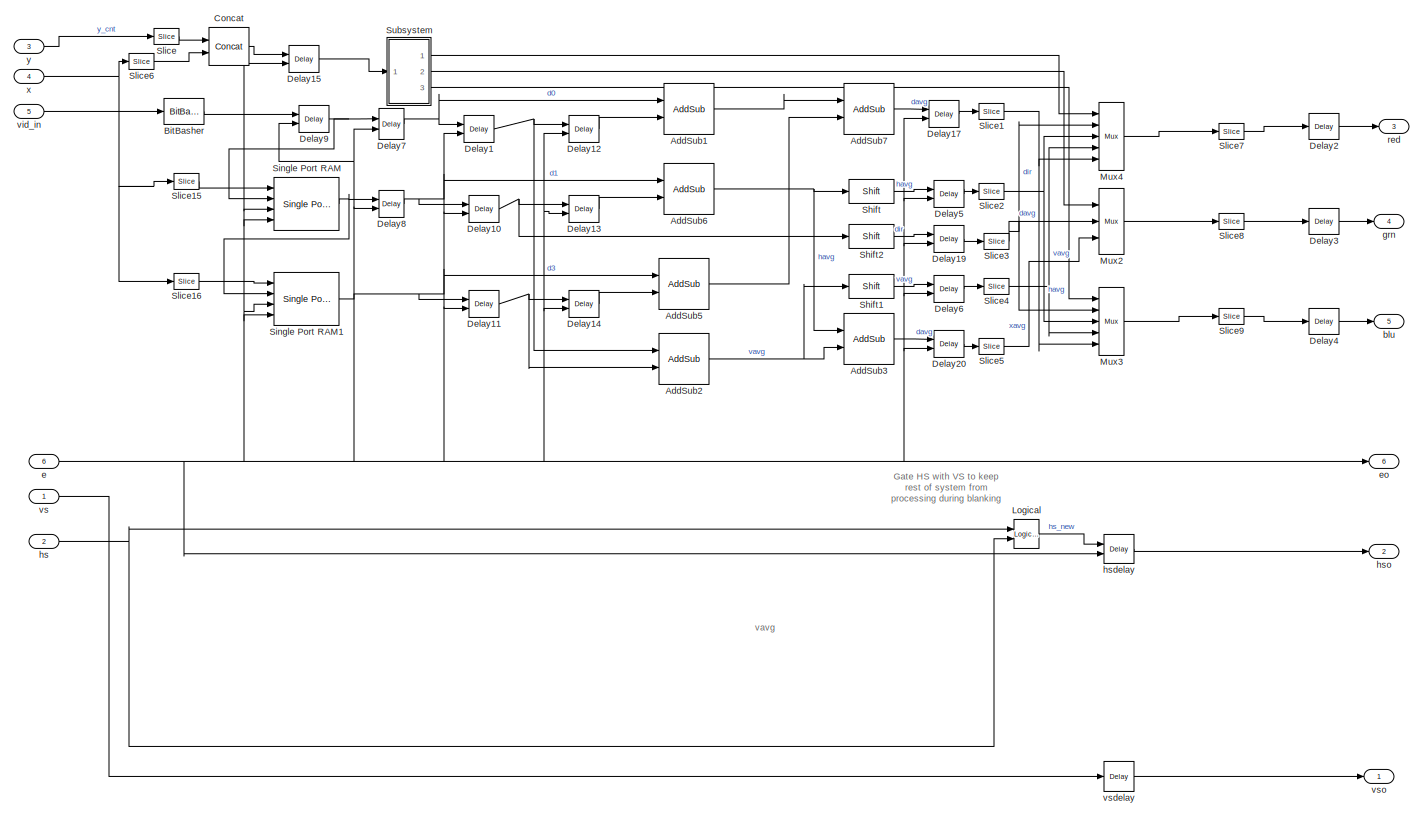
[diagram: Source Demosaic Gamma/vsk_camera_vop/bayer - part 1/1, most of the canvas]
BLOCK [SubSystem] Source Demosaic Gamma/vsk_camera_vop/bayer
  Ports = [6, 6]
  RequestExecContextInheritance = off
  SID = 167
BLOCK [Reference] Source Demosaic Gamma/vsk_camera_vop/bayer/AddSub1  REF=xbsIndex_r4/AddSub
  Ports = [2, 1]
  SID = 174
  SourceBlock = xbsIndex_r4/AddSub
  SourceType = Xilinx Adder/Subtractor Block
  arith_type = Unsigned
  bin_pt = 2
  block_type = addsub
  block_version = VER_STRING_GOES_HERE
  dbl_ovrd = off
  en = off
  has_advanced_control = 0
  latency = 0
  mode = Addition
  n_bits = 8
  overflow = Wrap
  pipelined = off
  precision = Full
  quantization = Truncate
  sg_icon_stat = 50,51,2,1,white,blue,0,84d1e665
  sg_mask_display = fprintf('','COMMENT: begin icon graphics');\npatch([0 60 60 0 ],[0 0 58 58 ],[0.77 0.82 0.91]);\npatch([15 5 19 5 15 30 34 38 54 41 29 20 34 20 29 41 54 38 34 30 15 ],[6 16 30 44 54 54 50 54 54 41 53 44 30 16 7 19 6 6 10 6 6 ],[0.98 0.96 0.92]);\nplot([0 0 60 60 0 ],[0 58 58 0 0 ]);\nfprintf('','COMMENT: end icon graphics');\nfprintf('','COMMENT: begin icon text');\ncolor('black');port_label('inpu...<+163ch>  <repeated x9 — deduplicated; at blocks: AddSub1, AddSub2, AddSub3, AddSub5, AddSub6, AddSub7>
  sggui_pos = -1,-1,-1,-1
  use_behavioral_HDL = off
  use_carryin = off
  use_carryout = off
  use_rpm = on
  xl_area = [0, 0, 0, 0, 0, 0, 0]
  xl_use_area = off
BLOCK [Reference] Source Demosaic Gamma/vsk_camera_vop/bayer/AddSub2  REF=xbsIndex_r4/AddSub
  Ports = [2, 1]
  SID = 175
  SourceBlock = xbsIndex_r4/AddSub
  SourceType = Xilinx Adder/Subtractor Block
  arith_type = Unsigned
  bin_pt = 2
  block_type = addsub
  block_version = VER_STRING_GOES_HERE
  dbl_ovrd = off
  en = off
  has_advanced_control = 0
  latency = 0
  mode = Addition
  n_bits = 8
  overflow = Wrap
  pipelined = off
  precision = Full
  quantization = Truncate
  sg_icon_stat = 50,51,2,1,white,blue,0,84d1e665
  sggui_pos = -1,-1,-1,-1
  use_behavioral_HDL = off
  use_carryin = off
  use_carryout = off
  use_rpm = on
  xl_area = [0, 0, 0, 0, 0, 0, 0]
  xl_use_area = off
BLOCK [Reference] Source Demosaic Gamma/vsk_camera_vop/bayer/AddSub3  REF=xbsIndex_r4/AddSub
  Ports = [2, 1]
  SID = 176
  SourceBlock = xbsIndex_r4/AddSub
  SourceType = Xilinx Adder/Subtractor Block
  arith_type = Unsigned
  bin_pt = 2
  block_type = addsub
  block_version = VER_STRING_GOES_HERE
  dbl_ovrd = off
  en = off
  has_advanced_control = 0
  latency = 0
  mode = Addition
  n_bits = 8
  overflow = Wrap
  pipelined = off
  precision = Full
  quantization = Truncate
  sg_icon_stat = 50,51,2,1,white,blue,0,84d1e665
  sggui_pos = -1,-1,-1,-1
  use_behavioral_HDL = off
  use_carryin = off
  use_carryout = off
  use_rpm = on
  xl_area = [0, 0, 0, 0, 0, 0, 0]
  xl_use_area = off
BLOCK [Reference] Source Demosaic Gamma/vsk_camera_vop/bayer/AddSub5  REF=xbsIndex_r4/AddSub
  Ports = [2, 1]
  SID = 177
  SourceBlock = xbsIndex_r4/AddSub
  SourceType = Xilinx Adder/Subtractor Block
  arith_type = Unsigned
  bin_pt = 2
  block_type = addsub
  block_version = VER_STRING_GOES_HERE
  dbl_ovrd = off
  en = off
  has_advanced_control = 0
  latency = 0
  mode = Addition
  n_bits = 8
  overflow = Wrap
  pipelined = off
  precision = Full
  quantization = Truncate
  sg_icon_stat = 50,51,2,1,white,blue,0,84d1e665
  sggui_pos = -1,-1,-1,-1
  use_behavioral_HDL = off
  use_carryin = off
  use_carryout = off
  use_rpm = on
  xl_area = [0, 0, 0, 0, 0, 0, 0]
  xl_use_area = off
BLOCK [Reference] Source Demosaic Gamma/vsk_camera_vop/bayer/AddSub6  REF=xbsIndex_r4/AddSub
  Ports = [2, 1]
  SID = 178
  SourceBlock = xbsIndex_r4/AddSub
  SourceType = Xilinx Adder/Subtractor Block
  arith_type = Unsigned
  bin_pt = 2
  block_type = addsub
  block_version = VER_STRING_GOES_HERE
  dbl_ovrd = off
  en = off
  has_advanced_control = 0
  latency = 0
  mode = Addition
  n_bits = 8
  overflow = Wrap
  pipelined = off
  precision = Full
  quantization = Truncate
  sg_icon_stat = 50,51,2,1,white,blue,0,84d1e665
  sggui_pos = -1,-1,-1,-1
  use_behavioral_HDL = off
  use_carryin = off
  use_carryout = off
  use_rpm = on
  xl_area = [0, 0, 0, 0, 0, 0, 0]
  xl_use_area = off
BLOCK [Reference] Source Demosaic Gamma/vsk_camera_vop/bayer/AddSub7  REF=xbsIndex_r4/AddSub
  Ports = [2, 1]
  SID = 179
  SourceBlock = xbsIndex_r4/AddSub
  SourceType = Xilinx Adder/Subtractor Block
  arith_type = Unsigned
  bin_pt = 2
  block_type = addsub
  block_version = VER_STRING_GOES_HERE
  dbl_ovrd = off
  en = off
  has_advanced_control = 0
  latency = 0
  mode = Addition
  n_bits = 8
  overflow = Wrap
  pipelined = off
  precision = Full
  quantization = Truncate
  sg_icon_stat = 50,51,2,1,white,blue,0,84d1e665
  sggui_pos = -1,-1,-1,-1
  use_behavioral_HDL = off
  use_carryin = off
  use_carryout = off
  use_rpm = on
  xl_area = [0, 0, 0, 0, 0, 0, 0]
  xl_use_area = off
BLOCK [Reference] Source Demosaic Gamma/vsk_camera_vop/bayer/BitBasher  REF=xbsIndex_r4/BitBasher
  Ports = [1, 1]
  SID = 180
  SourceBlock = xbsIndex_r4/BitBasher
  SourceType = Xilinx BitBasher Block
  arith_type1 = Unsigned
  arith_type2 = Unsigned
  arith_type3 = Unsigned
  arith_type4 = Unsigned
  bin_pt1 = 0
  bin_pt2 = 0
  bin_pt3 = 0
  bin_pt4 = 0
  bitexpr = <html><head><meta name=\"qrichtext\" content=\"1\" /><style type=\"text/css\">\np, li { white-space: pre-wrap; }\n</style></head><body style=\" font-family:'MS Shell Dlg 2'; font-size:8.25pt; font-weight:400; font-style:normal;\">\n<p style=\" margin-top:12px; margin-bottom:12px; margin-left:0px; margin-right:0px; -qt-block-indent:0; text-indent:0px; font-family:'MS Shell Dlg'; font-size:8pt;\">pa...<+30ch>
  block_type = bitbasher
  block_version = 9.2.01
  dbl_ovrd = off
  display_expr = off
  has_advanced_control = 0
  infoedit = Allows extraction, concatenation and augmentation of bits
  sg_icon_stat = 40,26,1,1,white,blue,0,dbc8175c
  sg_mask_display = fprintf('','COMMENT: begin icon graphics');\npatch([0 40 40 0 ],[0 0 26 26 ],[0.77 0.82 0.91]);\npatch([13 9 15 9 13 20 22 24 31 25 19 15 21 15 19 25 31 24 22 20 13 ],[3 7 13 19 23 23 21 23 23 17 23 19 13 7 3 9 3 3 5 3 3 ],[0.98 0.96 0.92]);\nplot([0 0 40 40 0 ],[0 26 26 0 0 ]);\nfprintf('','COMMENT: end icon graphics');\nfprintf('','COMMENT: begin icon text');\ncolor('black');port_label('input',1...<+94ch>
  sggui_pos = 20,20,336,352
  sr_1 = 1
  sr_2 = 2
  sr_3 = 3
  sr_4 = 4
BLOCK [Reference] Source Demosaic Gamma/vsk_camera_vop/bayer/Concat  REF=xbsIndex_r4/Concat
  Ports = [2, 1]
  SID = 181
  SourceBlock = xbsIndex_r4/Concat
  SourceType = Xilinx Bus Concatenator Block
  block_type = concat
  block_version = VER_STRING_GOES_HERE
  dbl_ovrd = off
  has_advanced_control = 0
  infoedit = Concatenates two or more inputs.  Output will be cast to an unsigned value with the binary point at zero.
  num_inputs = 2
  sg_icon_stat = 40,38,2,1,white,blue,0,59d62d82
  sg_mask_display = fprintf('','COMMENT: begin icon graphics');\npatch([0 60 60 0 ],[0 0 60 60 ],[0.77 0.82 0.91]);\npatch([14 4 18 4 14 30 34 38 55 42 29 20 35 20 29 42 55 38 34 30 14 ],[6 16 30 44 54 54 50 54 54 41 54 45 30 15 6 19 6 6 10 6 6 ],[0.98 0.96 0.92]);\nplot([0 0 60 60 0 ],[0 60 60 0 0 ]);\nfprintf('','COMMENT: end icon graphics');\nfprintf('','COMMENT: begin icon text');\ncolor('black');port_label('inpu...<+96ch>
  sggui_pos = -1,-1,-1,-1
BLOCK [Reference] Source Demosaic Gamma/vsk_camera_vop/bayer/Delay1  REF=xbsIndex_r4/Delay
  Ports = [2, 1]
  SID = 182
  SourceBlock = xbsIndex_r4/Delay
  SourceType = Xilinx Delay Block
  block_type = delay
  block_version = VER_STRING_GOES_HERE
  dbl_ovrd = off
  en = on
  has_advanced_control = 0
  latency = 1
  reg_retiming = on
  sg_icon_stat = 30,27,2,1,white,blue,0,9c7d2b66
  sg_mask_display = fprintf('','COMMENT: begin icon graphics');\npatch([0 30 30 0 ],[0 0 27 27 ],[0.77 0.82 0.91]);\npatch([7 3 9 3 7 14 16 18 26 20 14 10 16 10 14 20 26 18 16 14 7 ],[3 7 13 19 23 23 21 23 23 17 23 19 13 7 3 9 3 3 5 3 3 ],[0.98 0.96 0.92]);\nplot([0 0 30 30 0 ],[0 27 27 0 0 ]);\nfprintf('','COMMENT: end icon graphics');\nfprintf('','COMMENT: begin icon text');\ncolor('black');port_label('input',2,'en...<+91ch>  <repeated x13 — deduplicated; at blocks: Delay1, Delay10, Delay11, Delay12, Delay13, Delay14, Delay15, Delay17, Delay19, Delay20, Delay5, Delay6, Delay9>
  sggui_pos = 50,50,432,315
  xl_area = [0, 0, 0, 0, 0, 0, 0]
  xl_use_area = off
BLOCK [Reference] Source Demosaic Gamma/vsk_camera_vop/bayer/Delay10  REF=xbsIndex_r4/Delay
  Ports = [2, 1]
  SID = 183
  SourceBlock = xbsIndex_r4/Delay
  SourceType = Xilinx Delay Block
  block_type = delay
  block_version = VER_STRING_GOES_HERE
  dbl_ovrd = off
  en = on
  has_advanced_control = 0
  latency = 1
  reg_retiming = on
  sg_icon_stat = 30,27,2,1,white,blue,0,9c7d2b66
  sggui_pos = 50,50,432,315
  xl_area = [0, 0, 0, 0, 0, 0, 0]
  xl_use_area = off
BLOCK [Reference] Source Demosaic Gamma/vsk_camera_vop/bayer/Delay11  REF=xbsIndex_r4/Delay
  Ports = [2, 1]
  SID = 184
  SourceBlock = xbsIndex_r4/Delay
  SourceType = Xilinx Delay Block
  block_type = delay
  block_version = VER_STRING_GOES_HERE
  dbl_ovrd = off
  en = on
  has_advanced_control = 0
  latency = 1
  reg_retiming = on
  sg_icon_stat = 30,27,2,1,white,blue,0,9c7d2b66
  sggui_pos = 50,50,432,315
  xl_area = [0, 0, 0, 0, 0, 0, 0]
  xl_use_area = off
BLOCK [Reference] Source Demosaic Gamma/vsk_camera_vop/bayer/Delay12  REF=xbsIndex_r4/Delay
  Ports = [2, 1]
  SID = 185
  SourceBlock = xbsIndex_r4/Delay
  SourceType = Xilinx Delay Block
  block_type = delay
  block_version = VER_STRING_GOES_HERE
  dbl_ovrd = off
  en = on
  has_advanced_control = 0
  latency = 1
  reg_retiming = on
  sg_icon_stat = 30,27,2,1,white,blue,0,9c7d2b66
  sggui_pos = 50,50,432,315
  xl_area = [0, 0, 0, 0, 0, 0, 0]
  xl_use_area = off
BLOCK [Reference] Source Demosaic Gamma/vsk_camera_vop/bayer/Delay13  REF=xbsIndex_r4/Delay
  Ports = [2, 1]
  SID = 186
  SourceBlock = xbsIndex_r4/Delay
  SourceType = Xilinx Delay Block
  block_type = delay
  block_version = VER_STRING_GOES_HERE
  dbl_ovrd = off
  en = on
  has_advanced_control = 0
  latency = 1
  reg_retiming = on
  sg_icon_stat = 30,27,2,1,white,blue,0,9c7d2b66
  sggui_pos = 50,50,432,315
  xl_area = [0, 0, 0, 0, 0, 0, 0]
  xl_use_area = off
BLOCK [Reference] Source Demosaic Gamma/vsk_camera_vop/bayer/Delay14  REF=xbsIndex_r4/Delay
  Ports = [2, 1]
  SID = 187
  SourceBlock = xbsIndex_r4/Delay
  SourceType = Xilinx Delay Block
  block_type = delay
  block_version = VER_STRING_GOES_HERE
  dbl_ovrd = off
  en = on
  has_advanced_control = 0
  latency = 1
  reg_retiming = on
  sg_icon_stat = 30,27,2,1,white,blue,0,9c7d2b66
  sggui_pos = 50,50,432,315
  xl_area = [0, 0, 0, 0, 0, 0, 0]
  xl_use_area = off
BLOCK [Reference] Source Demosaic Gamma/vsk_camera_vop/bayer/Delay15  REF=xbsIndex_r4/Delay
  Ports = [2, 1]
  SID = 188
  SourceBlock = xbsIndex_r4/Delay
  SourceType = Xilinx Delay Block
  block_type = delay
  block_version = VER_STRING_GOES_HERE
  dbl_ovrd = off
  en = on
  has_advanced_control = 0
  latency = 1
  reg_retiming = on
  sg_icon_stat = 30,27,2,1,white,blue,0,9c7d2b66
  sggui_pos = 50,50,432,315
  xl_area = [0, 0, 0, 0, 0, 0, 0]
  xl_use_area = off
BLOCK [Reference] Source Demosaic Gamma/vsk_camera_vop/bayer/Delay17  REF=xbsIndex_r4/Delay
  Ports = [2, 1]
  SID = 189
  SourceBlock = xbsIndex_r4/Delay
  SourceType = Xilinx Delay Block
  block_type = delay
  block_version = VER_STRING_GOES_HERE
  dbl_ovrd = off
  en = on
  has_advanced_control = 0
  latency = 1
  reg_retiming = on
  sg_icon_stat = 30,27,2,1,white,blue,0,9c7d2b66
  sggui_pos = 50,50,432,315
  xl_area = [0, 0, 0, 0, 0, 0, 0]
  xl_use_area = off
BLOCK [Reference] Source Demosaic Gamma/vsk_camera_vop/bayer/Delay19  REF=xbsIndex_r4/Delay
  Ports = [2, 1]
  SID = 190
  SourceBlock = xbsIndex_r4/Delay
  SourceType = Xilinx Delay Block
  block_type = delay
  block_version = VER_STRING_GOES_HERE
  dbl_ovrd = off
  en = on
  has_advanced_control = 0
  latency = 1
  reg_retiming = on
  sg_icon_stat = 30,27,2,1,white,blue,0,9c7d2b66
  sggui_pos = 50,50,432,315
  xl_area = [0, 0, 0, 0, 0, 0, 0]
  xl_use_area = off
BLOCK [Reference] Source Demosaic Gamma/vsk_camera_vop/bayer/Delay2  REF=xbsIndex_r4/Delay
  Ports = [1, 1]
  SID = 191
  SourceBlock = xbsIndex_r4/Delay
  SourceType = Xilinx Delay Block
  block_type = delay
  block_version = VER_STRING_GOES_HERE
  dbl_ovrd = off
  en = off
  has_advanced_control = 0
  latency = 1
  reg_retiming = on
  sg_icon_stat = 30,26,1,1,white,blue,0,fc531c0e
  sggui_pos = 50,50,432,315
  xl_area = [0, 0, 0, 0, 0, 0, 0]
  xl_use_area = off
BLOCK [Reference] Source Demosaic Gamma/vsk_camera_vop/bayer/Delay20  REF=xbsIndex_r4/Delay
  Ports = [2, 1]
  SID = 192
  SourceBlock = xbsIndex_r4/Delay
  SourceType = Xilinx Delay Block
  block_type = delay
  block_version = VER_STRING_GOES_HERE
  dbl_ovrd = off
  en = on
  has_advanced_control = 0
  latency = 1
  reg_retiming = on
  sg_icon_stat = 30,27,2,1,white,blue,0,9c7d2b66
  sggui_pos = 50,50,432,315
  xl_area = [0, 0, 0, 0, 0, 0, 0]
  xl_use_area = off
BLOCK [Reference] Source Demosaic Gamma/vsk_camera_vop/bayer/Delay3  REF=xbsIndex_r4/Delay
  Ports = [1, 1]
  SID = 193
  SourceBlock = xbsIndex_r4/Delay
  SourceType = Xilinx Delay Block
  block_type = delay
  block_version = VER_STRING_GOES_HERE
  dbl_ovrd = off
  en = off
  has_advanced_control = 0
  latency = 1
  reg_retiming = on
  sg_icon_stat = 30,26,1,1,white,blue,0,fc531c0e
  sggui_pos = 50,50,432,315
  xl_area = [0, 0, 0, 0, 0, 0, 0]
  xl_use_area = off
BLOCK [Reference] Source Demosaic Gamma/vsk_camera_vop/bayer/Delay4  REF=xbsIndex_r4/Delay
  Ports = [1, 1]
  SID = 194
  SourceBlock = xbsIndex_r4/Delay
  SourceType = Xilinx Delay Block
  block_type = delay
  block_version = VER_STRING_GOES_HERE
  dbl_ovrd = off
  en = off
  has_advanced_control = 0
  latency = 1
  reg_retiming = on
  sg_icon_stat = 30,26,1,1,white,blue,0,fc531c0e
  sggui_pos = 50,50,432,315
  xl_area = [0, 0, 0, 0, 0, 0, 0]
  xl_use_area = off
BLOCK [Reference] Source Demosaic Gamma/vsk_camera_vop/bayer/Delay5  REF=xbsIndex_r4/Delay
  Ports = [2, 1]
  SID = 195
  SourceBlock = xbsIndex_r4/Delay
  SourceType = Xilinx Delay Block
  block_type = delay
  block_version = VER_STRING_GOES_HERE
  dbl_ovrd = off
  en = on
  has_advanced_control = 0
  latency = 1
  reg_retiming = on
  sg_icon_stat = 30,27,2,1,white,blue,0,9c7d2b66
  sggui_pos = 50,50,432,315
  xl_area = [0, 0, 0, 0, 0, 0, 0]
  xl_use_area = off
BLOCK [Reference] Source Demosaic Gamma/vsk_camera_vop/bayer/Delay6  REF=xbsIndex_r4/Delay
  Ports = [2, 1]
  SID = 196
  SourceBlock = xbsIndex_r4/Delay
  SourceType = Xilinx Delay Block
  block_type = delay
  block_version = VER_STRING_GOES_HERE
  dbl_ovrd = off
  en = on
  has_advanced_control = 0
  latency = 1
  reg_retiming = on
  sg_icon_stat = 30,27,2,1,white,blue,0,9c7d2b66
  sggui_pos = 50,50,432,315
  xl_area = [0, 0, 0, 0, 0, 0, 0]
  xl_use_area = off
BLOCK [Reference] Source Demosaic Gamma/vsk_camera_vop/bayer/Delay7  REF=xbsIndex_r4/Delay
  Ports = [2, 1]
  SID = 197
  SourceBlock = xbsIndex_r4/Delay
  SourceType = Xilinx Delay Block
  block_type = delay
  block_version = VER_STRING_GOES_HERE
  dbl_ovrd = off
  en = on
  has_advanced_control = 0
  latency = 2
  reg_retiming = on
  sg_icon_stat = 25,31,2,1,white,blue,0,301e54e1
  sg_mask_display = fprintf('','COMMENT: begin icon graphics');\npatch([0 25 25 0 ],[0 0 31 31 ],[0.77 0.82 0.91]);\npatch([6 2 8 2 6 13 15 17 24 18 13 9 14 9 13 18 24 17 15 13 6 ],[6 10 16 22 26 26 24 26 26 20 25 21 16 11 7 12 6 6 8 6 6 ],[0.98 0.96 0.92]);\nplot([0 0 25 25 0 ],[0 31 31 0 0 ]);\nfprintf('','COMMENT: end icon graphics');\nfprintf('','COMMENT: begin icon text');\ncolor('black');port_label('input',2,'e...<+92ch>  <repeated x3 — deduplicated; at blocks: Delay7, tco>
  sggui_pos = 50,50,432,315
  xl_area = [0, 0, 0, 0, 0, 0, 0]
  xl_use_area = off
BLOCK [Reference] Source Demosaic Gamma/vsk_camera_vop/bayer/Delay8  REF=xbsIndex_r4/Delay
  Ports = [2, 1]
  SID = 198
  SourceBlock = xbsIndex_r4/Delay
  SourceType = Xilinx Delay Block
  block_type = delay
  block_version = VER_STRING_GOES_HERE
  dbl_ovrd = off
  en = on
  has_advanced_control = 0
  latency = 1
  reg_retiming = on
  sg_icon_stat = 25,27,2,1,white,blue,0,9c7d2b66
  sg_mask_display = fprintf('','COMMENT: begin icon graphics');\npatch([0 25 25 0 ],[0 0 27 27 ],[0.77 0.82 0.91]);\npatch([6 2 8 2 6 13 15 17 24 18 13 9 14 9 13 18 24 17 15 13 6 ],[4 8 14 20 24 24 22 24 24 18 23 19 14 9 5 10 4 4 6 4 4 ],[0.98 0.96 0.92]);\nplot([0 0 25 25 0 ],[0 27 27 0 0 ]);\nfprintf('','COMMENT: end icon graphics');\nfprintf('','COMMENT: begin icon text');\ncolor('black');port_label('input',2,'en'...<+90ch>
  sggui_pos = 50,50,432,315
  xl_area = [0, 0, 0, 0, 0, 0, 0]
  xl_use_area = off
BLOCK [Reference] Source Demosaic Gamma/vsk_camera_vop/bayer/Delay9  REF=xbsIndex_r4/Delay
  Ports = [2, 1]
  SID = 199
  SourceBlock = xbsIndex_r4/Delay
  SourceType = Xilinx Delay Block
  block_type = delay
  block_version = VER_STRING_GOES_HERE
  dbl_ovrd = off
  en = on
  has_advanced_control = 0
  latency = 2
  reg_retiming = on
  sg_icon_stat = 30,27,2,1,white,blue,0,301e54e1
  sggui_pos = 50,50,432,315
  xl_area = [0, 0, 0, 0, 0, 0, 0]
  xl_use_area = off
BLOCK [Reference] Source Demosaic Gamma/vsk_camera_vop/bayer/Logical  REF=xbsIndex_r4/Logical
  Ports = [2, 1]
  SID = 200
  SourceBlock = xbsIndex_r4/Logical
  SourceType = Xilinx Logical Block Block
  align_bp = on
  arith_type = Unsigned
  bin_pt = 0
  block_type = logical
  block_version = 9.2.01
  dbl_ovrd = off
  en = off
  has_advanced_control = 0
  inputs = 2
  latency = 0
  logical_function = AND
  n_bits = 16
  precision = Full
  sg_icon_stat = 25,29,2,1,white,blue,0,087b5522
  sg_mask_display = fprintf('','COMMENT: begin icon graphics');\npatch([0 55 55 0 ],[0 0 60 60 ],[0.77 0.82 0.91]);\npatch([13 4 17 4 13 28 32 36 52 40 28 19 32 19 28 40 52 36 32 28 13 ],[8 17 30 43 52 52 48 52 52 40 52 43 30 17 8 20 8 8 12 8 8 ],[0.98 0.96 0.92]);\nplot([0 0 55 55 0 ],[0 60 60 0 0 ]);\nfprintf('','COMMENT: end icon graphics');\nfprintf('','COMMENT: begin icon text');\ncolor('black');disp('\\newlinea...<+76ch>
  sggui_pos = 20,20,348,262
  xl_area = [0,0,0,0,0,0,0]
  xl_use_area = off
BLOCK [Reference] Source Demosaic Gamma/vsk_camera_vop/bayer/Mux2  REF=xbsIndex_r4/Mux
  Ports = [3, 1]
  SID = 201
  SourceBlock = xbsIndex_r4/Mux
  SourceType = Xilinx Bus Multiplexer Block
  arith_type = Signed  (2's comp)
  bin_pt = 2
  block_type = mux
  block_version = VER_STRING_GOES_HERE
  dbl_ovrd = off
  en = off
  has_advanced_control = 0
  inputs = 2
  latency = 0
  n_bits = 8
  overflow = Wrap
  precision = Full
  quantization = Truncate
  sg_icon_stat = 25,66,3,1,white,blue,3,613f58e1
  sg_mask_display = fprintf('','COMMENT: begin icon graphics');\npatch([0 45 45 0 ],[0 14.8571 89.1429 104 ],[0.77 0.82 0.91]);\npatch([10 3 14 3 10 22 25 28 41 31 21 14 25 14 21 31 41 28 25 22 10 ],[34 41 52 63 70 70 67 70 70 60 70 63 52 41 34 44 34 34 37 34 34 ],[0.98 0.96 0.92]);\nplot([0 45 45 0 0 ],[0 14.8571 89.1429 104 0 ]);\nfprintf('','COMMENT: end icon graphics');\nfprintf('','COMMENT: begin icon text');\nc...<+218ch>  <repeated x8 — deduplicated; at blocks: Mux2, Mux, Mux1>
  sggui_pos = -1,-1,-1,-1
  xl_area = [0, 0, 0, 0, 0, 0, 0]
  xl_use_area = off
BLOCK [Reference] Source Demosaic Gamma/vsk_camera_vop/bayer/Mux3  REF=xbsIndex_r4/Mux
  Ports = [5, 1]
  SID = 202
  SourceBlock = xbsIndex_r4/Mux
  SourceType = Xilinx Bus Multiplexer Block
  arith_type = Signed  (2's comp)
  bin_pt = 2
  block_type = mux
  block_version = VER_STRING_GOES_HERE
  dbl_ovrd = off
  en = off
  has_advanced_control = 0
  inputs = 4
  latency = 0
  n_bits = 8
  overflow = Wrap
  precision = Full
  quantization = Truncate
  sg_icon_stat = 25,68,5,1,white,blue,3,27e96ab5
  sg_mask_display = fprintf('','COMMENT: begin icon graphics');\npatch([0 45 45 0 ],[0 14.8571 89.1429 104 ],[0.77 0.82 0.91]);\npatch([10 3 14 3 10 22 25 28 41 31 21 14 25 14 21 31 41 28 25 22 10 ],[34 41 52 63 70 70 67 70 70 60 70 63 52 41 34 44 34 34 37 34 34 ],[0.98 0.96 0.92]);\nplot([0 45 45 0 0 ],[0 14.8571 89.1429 104 0 ]);\nfprintf('','COMMENT: end icon graphics');\nfprintf('','COMMENT: begin icon text');\nc...<+306ch>  <repeated x5 — deduplicated; at blocks: Mux3, Mux4, Mux7, Mux8, Mux9>
  sggui_pos = -1,-1,-1,-1
  xl_area = [0, 0, 0, 0, 0, 0, 0]
  xl_use_area = off
BLOCK [Reference] Source Demosaic Gamma/vsk_camera_vop/bayer/Mux4  REF=xbsIndex_r4/Mux
  Ports = [5, 1]
  SID = 203
  SourceBlock = xbsIndex_r4/Mux
  SourceType = Xilinx Bus Multiplexer Block
  arith_type = Signed  (2's comp)
  bin_pt = 2
  block_type = mux
  block_version = VER_STRING_GOES_HERE
  dbl_ovrd = off
  en = off
  has_advanced_control = 0
  inputs = 4
  latency = 0
  n_bits = 8
  overflow = Wrap
  precision = Full
  quantization = Truncate
  sg_icon_stat = 25,68,5,1,white,blue,3,27e96ab5
  sggui_pos = 20,20,348,306
  xl_area = [0, 0, 0, 0, 0, 0, 0]
  xl_use_area = off
BLOCK [Reference] Source Demosaic Gamma/vsk_camera_vop/bayer/Shift  REF=xbsIndex_r4/Shift
  Ports = [1, 1]
  SID = 204
  SourceBlock = xbsIndex_r4/Shift
  SourceType = Xilinx Binary Shift Operator Block
  arith_type = Unsigned
  bin_pt = 0
  block_type = shift
  block_version = VER_STRING_GOES_HERE
  dbl_ovrd = off
  en = off
  has_advanced_control = 0
  infoedit = Hardware notes: In hardware this block costs nothing if full output precision is used.
  latency = 0
  n_bits = 12
  overflow = Wrap
  precision = User Defined
  quantization = Truncate
  sg_icon_stat = 45,24,1,1,white,blue,0,2fc565b6
  sg_mask_display = fprintf('','COMMENT: begin icon graphics');\npatch([0 60 60 0 ],[0 0 56 56 ],[0.77 0.82 0.91]);\npatch([15 6 19 6 15 30 34 38 54 41 29 20 32 20 29 41 54 38 34 30 15 ],[6 15 28 41 50 50 46 50 50 37 49 40 28 16 7 19 6 6 10 6 6 ],[0.98 0.96 0.92]);\nplot([0 0 60 60 0 ],[0 56 56 0 0 ]);\nfprintf('','COMMENT: end icon graphics');\nfprintf('','COMMENT: begin icon text');\ncolor('black');disp('\\newline\...<+85ch>  <repeated x3 — deduplicated; at blocks: Shift, Shift1, Shift2>
  sggui_pos = 20,20,432,415
  shift_bits = 1
  shift_dir = Left
  xl_area = [0, 0, 0, 0, 0, 0, 0]
  xl_use_area = off
BLOCK [Reference] Source Demosaic Gamma/vsk_camera_vop/bayer/Shift1  REF=xbsIndex_r4/Shift
  Ports = [1, 1]
  SID = 205
  SourceBlock = xbsIndex_r4/Shift
  SourceType = Xilinx Binary Shift Operator Block
  arith_type = Unsigned
  bin_pt = 0
  block_type = shift
  block_version = VER_STRING_GOES_HERE
  dbl_ovrd = off
  en = off
  has_advanced_control = 0
  infoedit = Hardware notes: In hardware this block costs nothing if full output precision is used.
  latency = 0
  n_bits = 12
  overflow = Wrap
  precision = User Defined
  quantization = Truncate
  sg_icon_stat = 45,24,1,1,white,blue,0,2fc565b6
  sggui_pos = 20,20,432,415
  shift_bits = 1
  shift_dir = Left
  xl_area = [0, 0, 0, 0, 0, 0, 0]
  xl_use_area = off
BLOCK [Reference] Source Demosaic Gamma/vsk_camera_vop/bayer/Shift2  REF=xbsIndex_r4/Shift
  Ports = [1, 1]
  SID = 206
  SourceBlock = xbsIndex_r4/Shift
  SourceType = Xilinx Binary Shift Operator Block
  arith_type = Unsigned
  bin_pt = 0
  block_type = shift
  block_version = VER_STRING_GOES_HERE
  dbl_ovrd = off
  en = off
  has_advanced_control = 0
  infoedit = Hardware notes: In hardware this block costs nothing if full output precision is used.
  latency = 0
  n_bits = 12
  overflow = Wrap
  precision = User Defined
  quantization = Truncate
  sg_icon_stat = 45,24,1,1,white,blue,0,b8ff1049
  sggui_pos = 20,20,432,415
  shift_bits = 2
  shift_dir = Left
  xl_area = [0, 0, 0, 0, 0, 0, 0]
  xl_use_area = off
BLOCK [Reference] Source Demosaic Gamma/vsk_camera_vop/bayer/Single Port RAM  REF=xbsIndex_r4/Single Port RAM
  Ports = [4, 1]
  SID = 207
  SourceBlock = xbsIndex_r4/Single Port RAM
  SourceType = Xilinx Single Port Random Access Memory Block
  block_type = spram
  block_version = 8.2
  dbl_ovrd = off
  depth = 1024
  distributed_mem = Block RAM
  en = on
  has_advanced_control = 0
  initVector = 0
  init_reg = 0
  latency = 1
  optimize = Area
  rst = off
  sg_icon_stat = 65,53,4,1,white,blue,0,2e4df7f6
  sg_mask_display = fprintf('','COMMENT: begin icon graphics');\npatch([0 65 65 0 ],[0 0 53 53 ],[0.77 0.82 0.91]);\npatch([19 10 22 10 19 33 37 41 56 44 33 25 37 25 33 44 56 41 37 33 19 ],[6 15 27 39 48 48 44 48 48 36 47 39 27 15 7 18 6 6 10 6 6 ],[0.98 0.96 0.92]);\nplot([0 0 65 65 0 ],[0 53 53 0 0 ]);\nfprintf('','COMMENT: end icon graphics');\nfprintf('','COMMENT: begin icon text');\ncolor('black');port_label('in...<+237ch>
  sggui_pos = 226,240,432,397
  use_rpm = off
  write_mode = Read Before Write
  xl_area = [0, 0, 0, 0, 0, 0, 0]
  xl_use_area = off
BLOCK [Reference] Source Demosaic Gamma/vsk_camera_vop/bayer/Single Port RAM1  REF=xbsIndex_r4/Single Port RAM
  Ports = [4, 1]
  SID = 208
  SourceBlock = xbsIndex_r4/Single Port RAM
  SourceType = Xilinx Single Port Random Access Memory Block
  block_type = spram
  block_version = 8.2
  dbl_ovrd = off
  depth = 1024
  distributed_mem = Block RAM
  en = on
  has_advanced_control = 0
  initVector = 0
  init_reg = 0
  latency = 1
  optimize = Area
  rst = off
  sg_icon_stat = 65,53,4,1,white,blue,0,2e4df7f6
  sg_mask_display = fprintf('','COMMENT: begin icon graphics');\npatch([0 65 65 0 ],[0 0 53 53 ],[0.77 0.82 0.91]);\npatch([19 10 22 10 19 33 37 41 56 44 33 25 37 25 33 44 56 41 37 33 19 ],[6 15 27 39 48 48 44 48 48 36 47 39 27 15 7 18 6 6 10 6 6 ],[0.98 0.96 0.92]);\nplot([0 0 65 65 0 ],[0 53 53 0 0 ]);\nfprintf('','COMMENT: end icon graphics');\nfprintf('','COMMENT: begin icon text');\ncolor('black');port_label('in...<+237ch>
  sggui_pos = -1,-1,-1,-1
  use_rpm = off
  write_mode = Read Before Write
  xl_area = [0, 0, 0, 0, 0, 0, 0]
  xl_use_area = off
BLOCK [Reference] Source Demosaic Gamma/vsk_camera_vop/bayer/Slice  REF=xbsIndex_r4/Slice
  Ports = [1, 1]
  SID = 209
  SourceBlock = xbsIndex_r4/Slice
  SourceType = Xilinx Bit Slice Extractor Block
  base0 = LSB of Input
  base1 = MSB of Input
  bit0 = 0
  bit1 = 0
  block_type = slice
  block_version = VER_STRING_GOES_HERE
  boolean_output = off
  dbl_ovrd = off
  has_advanced_control = 0
  infoedit = Extracts a given range of bits from each input sample and presents it at the output.  The output type is ordinarily unsigned with binary point at zero, but can be Boolean when the slice is one bit wide.<P><P>Hardware notes: In hardware this block costs nothing.  <repeated x27 — deduplicated; at blocks: Slice, Slice1, Slice15, Slice16, Slice2, Slice3, Slice4, Slice5, Slice6, Slice7, Slice8, Slice9, Slice10, Slice11, Slice12, Slice13, +2 more>
  mode = Lower Bit Location + Width
  nbits = 1
  sg_icon_stat = 25,16,1,1,white,blue,0,fe24a11e
  sg_mask_display = fprintf('','COMMENT: begin icon graphics');\npatch([0 60 60 0 ],[0 0 30 30 ],[0.77 0.82 0.91]);\npatch([22 17 24 17 22 30 32 34 42 35 29 24 30 24 29 35 42 34 32 30 22 ],[3 8 15 22 27 27 25 27 27 20 26 21 15 9 4 10 3 3 5 3 3 ],[0.98 0.96 0.92]);\nplot([0 0 60 60 0 ],[0 30 30 0 0 ]);\nfprintf('','COMMENT: end icon graphics');\nfprintf('','COMMENT: begin icon text');\ncolor('black');port_label('outpu...<+55ch>  <repeated x27 — deduplicated; at blocks: Slice, Slice1, Slice15, Slice16, Slice2, Slice3, Slice4, Slice5, Slice6, Slice7, Slice8, Slice9, Slice10, Slice11, Slice12, Slice13, +2 more>
  sggui_pos = 139,126,516,446
BLOCK [Reference] Source Demosaic Gamma/vsk_camera_vop/bayer/Slice1  REF=xbsIndex_r4/Slice
  Ports = [1, 1]
  SID = 210
  SourceBlock = xbsIndex_r4/Slice
  SourceType = Xilinx Bit Slice Extractor Block
  base0 = LSB of Input
  base1 = MSB of Input
  bit0 = 2
  bit1 = 0
  block_type = slice
  block_version = VER_STRING_GOES_HERE
  boolean_output = off
  dbl_ovrd = off
  has_advanced_control = 0
  mode = Lower Bit Location + Width
  nbits = 10
  sg_icon_stat = 25,16,1,1,white,blue,0,fe24a11e
  sggui_pos = 139,126,516,446
BLOCK [Reference] Source Demosaic Gamma/vsk_camera_vop/bayer/Slice15  REF=xbsIndex_r4/Slice
  Ports = [1, 1]
  SID = 211
  SourceBlock = xbsIndex_r4/Slice
  SourceType = Xilinx Bit Slice Extractor Block
  base0 = LSB of Input
  base1 = MSB of Input
  bit0 = 0
  bit1 = 0
  block_type = slice
  block_version = VER_STRING_GOES_HERE
  boolean_output = off
  dbl_ovrd = off
  has_advanced_control = 0
  mode = Lower Bit Location + Width
  nbits = 10
  sg_icon_stat = 25,16,1,1,white,blue,0,fe24a11e
  sggui_pos = 139,126,516,446
BLOCK [Reference] Source Demosaic Gamma/vsk_camera_vop/bayer/Slice16  REF=xbsIndex_r4/Slice
  Ports = [1, 1]
  SID = 212
  SourceBlock = xbsIndex_r4/Slice
  SourceType = Xilinx Bit Slice Extractor Block
  base0 = LSB of Input
  base1 = MSB of Input
  bit0 = 0
  bit1 = 0
  block_type = slice
  block_version = VER_STRING_GOES_HERE
  boolean_output = off
  dbl_ovrd = off
  has_advanced_control = 0
  mode = Lower Bit Location + Width
  nbits = 10
  sg_icon_stat = 25,16,1,1,white,blue,0,fe24a11e
  sggui_pos = 139,126,516,446
BLOCK [Reference] Source Demosaic Gamma/vsk_camera_vop/bayer/Slice2  REF=xbsIndex_r4/Slice
  Ports = [1, 1]
  SID = 213
  SourceBlock = xbsIndex_r4/Slice
  SourceType = Xilinx Bit Slice Extractor Block
  base0 = LSB of Input
  base1 = MSB of Input
  bit0 = 2
  bit1 = 0
  block_type = slice
  block_version = VER_STRING_GOES_HERE
  boolean_output = off
  dbl_ovrd = off
  has_advanced_control = 0
  mode = Lower Bit Location + Width
  nbits = 10
  sg_icon_stat = 25,16,1,1,white,blue,0,fe24a11e
  sggui_pos = 139,126,516,446
BLOCK [Reference] Source Demosaic Gamma/vsk_camera_vop/bayer/Slice3  REF=xbsIndex_r4/Slice
  Ports = [1, 1]
  SID = 214
  SourceBlock = xbsIndex_r4/Slice
  SourceType = Xilinx Bit Slice Extractor Block
  base0 = LSB of Input
  base1 = MSB of Input
  bit0 = 2
  bit1 = 0
  block_type = slice
  block_version = VER_STRING_GOES_HERE
  boolean_output = off
  dbl_ovrd = off
  has_advanced_control = 0
  mode = Lower Bit Location + Width
  nbits = 10
  sg_icon_stat = 25,16,1,1,white,blue,0,fe24a11e
  sggui_pos = 139,126,516,446
BLOCK [Reference] Source Demosaic Gamma/vsk_camera_vop/bayer/Slice4  REF=xbsIndex_r4/Slice
  Ports = [1, 1]
  SID = 215
  SourceBlock = xbsIndex_r4/Slice
  SourceType = Xilinx Bit Slice Extractor Block
  base0 = LSB of Input
  base1 = MSB of Input
  bit0 = 2
  bit1 = 0
  block_type = slice
  block_version = VER_STRING_GOES_HERE
  boolean_output = off
  dbl_ovrd = off
  has_advanced_control = 0
  mode = Lower Bit Location + Width
  nbits = 10
  sg_icon_stat = 25,16,1,1,white,blue,0,fe24a11e
  sggui_pos = 139,126,516,446
BLOCK [Reference] Source Demosaic Gamma/vsk_camera_vop/bayer/Slice5  REF=xbsIndex_r4/Slice
  Ports = [1, 1]
  SID = 216
  SourceBlock = xbsIndex_r4/Slice
  SourceType = Xilinx Bit Slice Extractor Block
  base0 = LSB of Input
  base1 = MSB of Input
  bit0 = 2
  bit1 = 0
  block_type = slice
  block_version = VER_STRING_GOES_HERE
  boolean_output = off
  dbl_ovrd = off
  has_advanced_control = 0
  mode = Lower Bit Location + Width
  nbits = 10
  sg_icon_stat = 25,16,1,1,white,blue,0,fe24a11e
  sggui_pos = 139,126,516,446
BLOCK [Reference] Source Demosaic Gamma/vsk_camera_vop/bayer/Slice6  REF=xbsIndex_r4/Slice
  Ports = [1, 1]
  SID = 217
  SourceBlock = xbsIndex_r4/Slice
  SourceType = Xilinx Bit Slice Extractor Block
  base0 = LSB of Input
  base1 = MSB of Input
  bit0 = 0
  bit1 = 0
  block_type = slice
  block_version = VER_STRING_GOES_HERE
  boolean_output = off
  dbl_ovrd = off
  has_advanced_control = 0
  mode = Lower Bit Location + Width
  nbits = 1
  sg_icon_stat = 25,16,1,1,white,blue,0,fe24a11e
  sggui_pos = 139,126,516,433
BLOCK [Reference] Source Demosaic Gamma/vsk_camera_vop/bayer/Slice7  REF=xbsIndex_r4/Slice
  Ports = [1, 1]
  SID = 218
  SourceBlock = xbsIndex_r4/Slice
  SourceType = Xilinx Bit Slice Extractor Block
  base0 = LSB of Input
  base1 = MSB of Input
  bit0 = 2
  bit1 = 0
  block_type = slice
  block_version = VER_STRING_GOES_HERE
  boolean_output = off
  dbl_ovrd = off
  has_advanced_control = 0
  mode = Lower Bit Location + Width
  nbits = 8
  sg_icon_stat = 25,16,1,1,white,blue,0,fe24a11e
  sggui_pos = 139,126,516,446
BLOCK [Reference] Source Demosaic Gamma/vsk_camera_vop/bayer/Slice8  REF=xbsIndex_r4/Slice
  Ports = [1, 1]
  SID = 219
  SourceBlock = xbsIndex_r4/Slice
  SourceType = Xilinx Bit Slice Extractor Block
  base0 = LSB of Input
  base1 = MSB of Input
  bit0 = 2
  bit1 = 0
  block_type = slice
  block_version = VER_STRING_GOES_HERE
  boolean_output = off
  dbl_ovrd = off
  has_advanced_control = 0
  mode = Lower Bit Location + Width
  nbits = 8
  sg_icon_stat = 25,16,1,1,white,blue,0,fe24a11e
  sggui_pos = 139,126,516,446
BLOCK [Reference] Source Demosaic Gamma/vsk_camera_vop/bayer/Slice9  REF=xbsIndex_r4/Slice
  Ports = [1, 1]
  SID = 220
  SourceBlock = xbsIndex_r4/Slice
  SourceType = Xilinx Bit Slice Extractor Block
  base0 = LSB of Input
  base1 = MSB of Input
  bit0 = 2
  bit1 = 0
  block_type = slice
  block_version = VER_STRING_GOES_HERE
  boolean_output = off
  dbl_ovrd = off
  has_advanced_control = 0
  mode = Lower Bit Location + Width
  nbits = 8
  sg_icon_stat = 25,16,1,1,white,blue,0,fe24a11e
  sggui_pos = 139,126,516,446
BLOCK [SubSystem] Source Demosaic Gamma/vsk_camera_vop/bayer/Subsystem
  Ports = [1, 3]
  RequestExecContextInheritance = off
  SID = 221
BLOCK [Reference] Source Demosaic Gamma/vsk_camera_vop/bayer/Subsystem/Mux7  REF=xbsIndex_r4/Mux
  Ports = [5, 1]
  SID = 223
  SourceBlock = xbsIndex_r4/Mux
  SourceType = Xilinx Bus Multiplexer Block
  arith_type = Signed  (2's comp)
  bin_pt = 2
  block_type = mux
  block_version = VER_STRING_GOES_HERE
  dbl_ovrd = off
  en = off
  has_advanced_control = 0
  inputs = 4
  latency = 0
  n_bits = 8
  overflow = Wrap
  precision = Full
  quantization = Truncate
  sg_icon_stat = 25,110,5,1,white,blue,3,27e96ab5
  sggui_pos = -1,-1,-1,-1
  xl_area = [0, 0, 0, 0, 0, 0, 0]
  xl_use_area = off
BLOCK [Reference] Source Demosaic Gamma/vsk_camera_vop/bayer/Subsystem/Mux8  REF=xbsIndex_r4/Mux
  Ports = [5, 1]
  SID = 224
  SourceBlock = xbsIndex_r4/Mux
  SourceType = Xilinx Bus Multiplexer Block
  arith_type = Signed  (2's comp)
  bin_pt = 2
  block_type = mux
  block_version = VER_STRING_GOES_HERE
  dbl_ovrd = off
  en = off
  has_advanced_control = 0
  inputs = 4
  latency = 0
  n_bits = 8
  overflow = Wrap
  precision = Full
  quantization = Truncate
  sg_icon_stat = 25,110,5,1,white,blue,3,27e96ab5
  sggui_pos = -1,-1,-1,-1
  xl_area = [0, 0, 0, 0, 0, 0, 0]
  xl_use_area = off
BLOCK [Reference] Source Demosaic Gamma/vsk_camera_vop/bayer/Subsystem/Mux9  REF=xbsIndex_r4/Mux
  Ports = [5, 1]
  SID = 225
  SourceBlock = xbsIndex_r4/Mux
  SourceType = Xilinx Bus Multiplexer Block
  arith_type = Signed  (2's comp)
  bin_pt = 2
  block_type = mux
  block_version = VER_STRING_GOES_HERE
  dbl_ovrd = off
  en = off
  has_advanced_control = 0
  inputs = 4
  latency = 0
  n_bits = 8
  overflow = Wrap
  precision = Full
  quantization = Truncate
  sg_icon_stat = 25,110,5,1,white,blue,3,27e96ab5
  sggui_pos = -1,-1,-1,-1
  xl_area = [0, 0, 0, 0, 0, 0, 0]
  xl_use_area = off
BLOCK [Reference] Source Demosaic Gamma/vsk_camera_vop/bayer/Subsystem/Slice10  REF=xbsIndex_r4/Slice
  Ports = [1, 1]
  SID = 226
  SourceBlock = xbsIndex_r4/Slice
  SourceType = Xilinx Bit Slice Extractor Block
  base0 = LSB of Input
  base1 = MSB of Input
  bit0 = 14
  bit1 = 0
  block_type = slice
  block_version = VER_STRING_GOES_HERE
  boolean_output = off
  dbl_ovrd = off
  has_advanced_control = 0
  mode = Lower Bit Location + Width
  nbits = 2
  sg_icon_stat = 25,16,1,1,white,blue,0,fe24a11e
  sggui_pos = 139,126,516,446
BLOCK [Reference] Source Demosaic Gamma/vsk_camera_vop/bayer/Subsystem/Slice11  REF=xbsIndex_r4/Slice
  Ports = [1, 1]
  SID = 227
  SourceBlock = xbsIndex_r4/Slice
  SourceType = Xilinx Bit Slice Extractor Block
  base0 = LSB of Input
  base1 = MSB of Input
  bit0 = 6
  bit1 = 0
  block_type = slice
  block_version = VER_STRING_GOES_HERE
  boolean_output = off
  dbl_ovrd = off
  has_advanced_control = 0
  mode = Lower Bit Location + Width
  nbits = 2
  sg_icon_stat = 25,16,1,1,white,blue,0,fe24a11e
  sggui_pos = 139,126,516,446
BLOCK [Reference] Source Demosaic Gamma/vsk_camera_vop/bayer/Subsystem/Slice12  REF=xbsIndex_r4/Slice
  Ports = [1, 1]
  SID = 228
  SourceBlock = xbsIndex_r4/Slice
  SourceType = Xilinx Bit Slice Extractor Block
  base0 = LSB of Input
  base1 = MSB of Input
  bit0 = 4
  bit1 = 0
  block_type = slice
  block_version = VER_STRING_GOES_HERE
  boolean_output = off
  dbl_ovrd = off
  has_advanced_control = 0
  mode = Lower Bit Location + Width
  nbits = 2
  sg_icon_stat = 25,16,1,1,white,blue,0,fe24a11e
  sggui_pos = 139,126,516,446
BLOCK [Reference] Source Demosaic Gamma/vsk_camera_vop/bayer/Subsystem/Slice13  REF=xbsIndex_r4/Slice
  Ports = [1, 1]
  SID = 229
  SourceBlock = xbsIndex_r4/Slice
  SourceType = Xilinx Bit Slice Extractor Block
  base0 = LSB of Input
  base1 = MSB of Input
  bit0 = 2
  bit1 = 0
  block_type = slice
  block_version = VER_STRING_GOES_HERE
  boolean_output = off
  dbl_ovrd = off
  has_advanced_control = 0
  mode = Lower Bit Location + Width
  nbits = 2
  sg_icon_stat = 25,16,1,1,white,blue,0,fe24a11e
  sggui_pos = 139,126,516,446
BLOCK [Reference] Source Demosaic Gamma/vsk_camera_vop/bayer/Subsystem/Slice14  REF=xbsIndex_r4/Slice
  Ports = [1, 1]
  SID = 230
  SourceBlock = xbsIndex_r4/Slice
  SourceType = Xilinx Bit Slice Extractor Block
  base0 = LSB of Input
  base1 = MSB of Input
  bit0 = 0
  bit1 = 0
  block_type = slice
  block_version = VER_STRING_GOES_HERE
  boolean_output = off
  dbl_ovrd = off
  has_advanced_control = 0
  mode = Lower Bit Location + Width
  nbits = 2
  sg_icon_stat = 25,16,1,1,white,blue,0,fe24a11e
  sggui_pos = 139,126,516,446
BLOCK [Reference] Source Demosaic Gamma/vsk_camera_vop/bayer/Subsystem/Slice17  REF=xbsIndex_r4/Slice
  Ports = [1, 1]
  SID = 231
  SourceBlock = xbsIndex_r4/Slice
  SourceType = Xilinx Bit Slice Extractor Block
  base0 = LSB of Input
  base1 = MSB of Input
  bit0 = 0
  bit1 = 0
  block_type = slice
  block_version = VER_STRING_GOES_HERE
  boolean_output = off
  dbl_ovrd = off
  has_advanced_control = 0
  mode = Lower Bit Location + Width
  nbits = 1
  sg_icon_stat = 25,16,1,1,white,blue,0,fe24a11e
  sggui_pos = 139,126,516,446
BLOCK [Reference] Source Demosaic Gamma/vsk_camera_vop/bayer/Subsystem/Slice3  REF=xbsIndex_r4/Slice
  Ports = [1, 1]
  SID = 232
  SourceBlock = xbsIndex_r4/Slice
  SourceType = Xilinx Bit Slice Extractor Block
  base0 = LSB of Input
  base1 = MSB of Input
  bit0 = 20
  bit1 = 0
  block_type = slice
  block_version = VER_STRING_GOES_HERE
  boolean_output = off
  dbl_ovrd = off
  has_advanced_control = 0
  mode = Lower Bit Location + Width
  nbits = 2
  sg_icon_stat = 25,16,1,1,white,blue,0,fe24a11e
  sggui_pos = 139,126,516,446
BLOCK [Reference] Source Demosaic Gamma/vsk_camera_vop/bayer/Subsystem/Slice4  REF=xbsIndex_r4/Slice
  Ports = [1, 1]
  SID = 233
  SourceBlock = xbsIndex_r4/Slice
  SourceType = Xilinx Bit Slice Extractor Block
  base0 = LSB of Input
  base1 = MSB of Input
  bit0 = 18
  bit1 = 0
  block_type = slice
  block_version = VER_STRING_GOES_HERE
  boolean_output = off
  dbl_ovrd = off
  has_advanced_control = 0
  mode = Lower Bit Location + Width
  nbits = 2
  sg_icon_stat = 25,16,1,1,white,blue,0,fe24a11e
  sggui_pos = 139,126,516,446
BLOCK [Reference] Source Demosaic Gamma/vsk_camera_vop/bayer/Subsystem/Slice5  REF=xbsIndex_r4/Slice
  Ports = [1, 1]
  SID = 234
  SourceBlock = xbsIndex_r4/Slice
  SourceType = Xilinx Bit Slice Extractor Block
  base0 = LSB of Input
  base1 = MSB of Input
  bit0 = 16
  bit1 = 0
  block_type = slice
  block_version = VER_STRING_GOES_HERE
  boolean_output = off
  dbl_ovrd = off
  has_advanced_control = 0
  mode = Lower Bit Location + Width
  nbits = 2
  sg_icon_stat = 25,16,1,1,white,blue,0,fe24a11e
  sggui_pos = 139,126,516,446
BLOCK [Reference] Source Demosaic Gamma/vsk_camera_vop/bayer/Subsystem/Slice6  REF=xbsIndex_r4/Slice
  Ports = [1, 1]
  SID = 235
  SourceBlock = xbsIndex_r4/Slice
  SourceType = Xilinx Bit Slice Extractor Block
  base0 = LSB of Input
  base1 = MSB of Input
  bit0 = 22
  bit1 = 0
  block_type = slice
  block_version = VER_STRING_GOES_HERE
  boolean_output = off
  dbl_ovrd = off
  has_advanced_control = 0
  mode = Lower Bit Location + Width
  nbits = 2
  sg_icon_stat = 25,16,1,1,white,blue,0,fe24a11e
  sggui_pos = 139,126,516,446
BLOCK [Reference] Source Demosaic Gamma/vsk_camera_vop/bayer/Subsystem/Slice7  REF=xbsIndex_r4/Slice
  Ports = [1, 1]
  SID = 236
  SourceBlock = xbsIndex_r4/Slice
  SourceType = Xilinx Bit Slice Extractor Block
  base0 = LSB of Input
  base1 = MSB of Input
  bit0 = 12
  bit1 = 0
  block_type = slice
  block_version = VER_STRING_GOES_HERE
  boolean_output = off
  dbl_ovrd = off
  has_advanced_control = 0
  mode = Lower Bit Location + Width
  nbits = 2
  sg_icon_stat = 25,16,1,1,white,blue,0,fe24a11e
  sggui_pos = 139,126,516,446
BLOCK [Reference] Source Demosaic Gamma/vsk_camera_vop/bayer/Subsystem/Slice8  REF=xbsIndex_r4/Slice
  Ports = [1, 1]
  SID = 237
  SourceBlock = xbsIndex_r4/Slice
  SourceType = Xilinx Bit Slice Extractor Block
  base0 = LSB of Input
  base1 = MSB of Input
  bit0 = 10
  bit1 = 0
  block_type = slice
  block_version = VER_STRING_GOES_HERE
  boolean_output = off
  dbl_ovrd = off
  has_advanced_control = 0
  mode = Lower Bit Location + Width
  nbits = 2
  sg_icon_stat = 25,16,1,1,white,blue,0,fe24a11e
  sggui_pos = 139,126,516,446
BLOCK [Reference] Source Demosaic Gamma/vsk_camera_vop/bayer/Subsystem/Slice9  REF=xbsIndex_r4/Slice
  Ports = [1, 1]
  SID = 238
  SourceBlock = xbsIndex_r4/Slice
  SourceType = Xilinx Bit Slice Extractor Block
  base0 = LSB of Input
  base1 = MSB of Input
  bit0 = 8
  bit1 = 0
  block_type = slice
  block_version = VER_STRING_GOES_HERE
  boolean_output = off
  dbl_ovrd = off
  has_advanced_control = 0
  mode = Lower Bit Location + Width
  nbits = 2
  sg_icon_stat = 25,16,1,1,white,blue,0,fe24a11e
  sggui_pos = 139,126,516,446
BLOCK [Reference] Source Demosaic Gamma/vsk_camera_vop/bayer/Subsystem/bayer_ctrl  REF=xbsIndex_r4/Constant
  Ports = [0, 1]
  SID = 239
  SourceBlock = xbsIndex_r4/Constant
  SourceType = Xilinx Constant Block Block
  arith_type = Unsigned
  bin_pt = 0
  block_type = constant
  block_version = 9.2.01
  carry = CIN
  const = hex2dec('11B41E4');
  dbl_ovrd = off
  dsp48_infoedit = The use of this block for DSP48 instructions is deprecated.  Please use the Opmode block.
  equ = P=C
  explicit_period = off
  has_advanced_control = 0
  inp1 = P
  inp2 = PCIN>>17
  n_bits = 32
  opr = +
  opselect = C
  period = 1
  sg_icon_stat = 95,26,0,1,white,blue,0,7fb64863
  sg_mask_display = fprintf('','COMMENT: begin icon graphics');\npatch([0 95 95 0 ],[0 0 26 26 ],[0.77 0.82 0.91]);\npatch([40 36 42 36 40 47 49 51 58 52 46 42 48 42 46 52 58 51 49 47 40 ],[3 7 13 19 23 23 21 23 23 17 23 19 13 7 3 9 3 3 5 3 3 ],[0.98 0.96 0.92]);\nplot([0 0 95 95 0 ],[0 26 26 0 0 ]);\nfprintf('','COMMENT: end icon graphics');\nfprintf('','COMMENT: begin icon text');\ncolor('black');port_label('output...<+57ch>
  sggui_pos = 20,20,414,344
BLOCK [Outport] Source Demosaic Gamma/vsk_camera_vop/bayer/Subsystem/bsel
  IconDisplay = Port number
  Port = 3
  SID = 242
BLOCK [Outport] Source Demosaic Gamma/vsk_camera_vop/bayer/Subsystem/gsel
  IconDisplay = Port number
  Port = 2
  SID = 241
BLOCK [Inport] Source Demosaic Gamma/vsk_camera_vop/bayer/Subsystem/pos
  IconDisplay = Port number
  SID = 222
BLOCK [Outport] Source Demosaic Gamma/vsk_camera_vop/bayer/Subsystem/rsel
  IconDisplay = Port number
  SID = 240
BLOCK [Outport] Source Demosaic Gamma/vsk_camera_vop/bayer/blu
  IconDisplay = Port number
  Port = 5
  SID = 249
BLOCK [Inport] Source Demosaic Gamma/vsk_camera_vop/bayer/e
  IconDisplay = Port number
  Port = 6
  SID = 173
BLOCK [Outport] Source Demosaic Gamma/vsk_camera_vop/bayer/eo
  IconDisplay = Port number
  Port = 6
  SID = 250
BLOCK [Outport] Source Demosaic Gamma/vsk_camera_vop/bayer/grn
  IconDisplay = Port number
  Port = 4
  SID = 248
BLOCK [Inport] Source Demosaic Gamma/vsk_camera_vop/bayer/hs
  IconDisplay = Port number
  Port = 2
  SID = 169
BLOCK [Reference] Source Demosaic Gamma/vsk_camera_vop/bayer/hsdelay  REF=xbsIndex_r4/Delay
  Ports = [2, 1]
  SID = 243
  SourceBlock = xbsIndex_r4/Delay
  SourceType = Xilinx Delay Block
  block_type = delay
  block_version = VER_STRING_GOES_HERE
  dbl_ovrd = off
  en = on
  has_advanced_control = 0
  latency = 7
  reg_retiming = on
  sg_icon_stat = 30,29,2,1,white,blue,0,f3cb102b
  sg_mask_display = fprintf('','COMMENT: begin icon graphics');\npatch([0 30 30 0 ],[0 0 29 29 ],[0.77 0.82 0.91]);\npatch([7 2 9 2 7 15 17 19 27 21 15 10 17 10 15 21 27 19 17 15 7 ],[3 8 15 22 27 27 25 27 27 21 27 22 15 8 3 9 3 3 5 3 3 ],[0.98 0.96 0.92]);\nplot([0 0 30 30 0 ],[0 29 29 0 0 ]);\nfprintf('','COMMENT: end icon graphics');\nfprintf('','COMMENT: begin icon text');\ncolor('black');port_label('input',2,'en...<+91ch>  <repeated x5 — deduplicated; at blocks: hsdelay, vsdelay>
  sggui_pos = 50,50,432,315
  xl_area = [0, 0, 0, 0, 0, 0, 0]
  xl_use_area = off
BLOCK [Outport] Source Demosaic Gamma/vsk_camera_vop/bayer/hso
  IconDisplay = Port number
  Port = 2
  SID = 246
BLOCK [Outport] Source Demosaic Gamma/vsk_camera_vop/bayer/red
  IconDisplay = Port number
  Port = 3
  SID = 247
BLOCK [Inport] Source Demosaic Gamma/vsk_camera_vop/bayer/vid_in
  IconDisplay = Port number
  Port = 5
  SID = 172
BLOCK [Inport] Source Demosaic Gamma/vsk_camera_vop/bayer/vs
  IconDisplay = Port number
  SID = 168
BLOCK [Reference] Source Demosaic Gamma/vsk_camera_vop/bayer/vsdelay  REF=xbsIndex_r4/Delay
  Ports = [1, 1]
  SID = 244
  SourceBlock = xbsIndex_r4/Delay
  SourceType = Xilinx Delay Block
  block_type = delay
  block_version = VER_STRING_GOES_HERE
  dbl_ovrd = off
  en = off
  has_advanced_control = 0
  latency = 7
  reg_retiming = on
  sg_icon_stat = 30,30,1,1,white,blue,0,4c76d8d2
  sg_mask_display = fprintf('','COMMENT: begin icon graphics');\npatch([0 30 30 0 ],[0 0 30 30 ],[0.77 0.82 0.91]);\npatch([7 2 9 2 7 15 17 19 27 20 14 9 15 9 14 20 27 19 17 15 7 ],[3 8 15 22 27 27 25 27 27 20 26 21 15 9 4 10 3 3 5 3 3 ],[0.98 0.96 0.92]);\nplot([0 0 30 30 0 ],[0 30 30 0 0 ]);\nfprintf('','COMMENT: end icon graphics');\nfprintf('','COMMENT: begin icon text');\ncolor('black');disp('z^{-7}','texmode','...<+46ch>
  sggui_pos = 50,50,432,315
  xl_area = [0, 0, 0, 0, 0, 0, 0]
  xl_use_area = off
BLOCK [Outport] Source Demosaic Gamma/vsk_camera_vop/bayer/vso
  IconDisplay = Port number
  SID = 245
BLOCK [Inport] Source Demosaic Gamma/vsk_camera_vop/bayer/x
  IconDisplay = Port number
  Port = 4
  SID = 171
BLOCK [Inport] Source Demosaic Gamma/vsk_camera_vop/bayer/y
  IconDisplay = Port number
  Port = 3
  SID = 170
BLOCK [Reference] Source Demosaic Gamma/vsk_camera_vop/blue_o  REF=xbsIndex_r4/Gateway Out
  LOCs = {}
  Ports = [1, 1]
  SID = 253
  SourceBlock = xbsIndex_r4/Gateway Out
  SourceType = Xilinx Gateway Out Block
  block_type = gatewayout
  block_version = VER_STRING_GOES_HERE
  has_advanced_control = 0
  hdl_port = on
  infoedit = Gateway out block.  Converts Xilinx fixed point inputs into ouputs of type Simulink integer, double, or fixed point.<P><P>Hardware notes:  In hardware these blocks become top level output ports or are discarded, depending on how they are configured.  <repeated x6 — deduplicated; at blocks: blue_o, de_o, frame_valid_o, green_o, line_valid_o, red_o>
  locs_specified = off
  sg_icon_stat = 55,22,1,1,white,yellow,0,f0cec300
  sg_mask_display = fprintf('','COMMENT: begin icon graphics');\npatch([0 60 60 0 ],[0 0 20 20 ],[0.95 0.93 0.65]);\npatch([24 21 26 21 24 29 30 31 37 33 29 26 31 26 29 33 37 31 30 29 24 ],[2 5 10 15 18 18 17 18 18 14 18 15 10 5 2 6 2 2 3 2 2 ],[0.98 0.96 0.92]);\nplot([0 0 60 60 0 ],[0 20 20 0 0 ]);\nfprintf('','COMMENT: end icon graphics');\nfprintf('','COMMENT: begin icon text');\ncolor('black');port_label('input'...<+132ch>  <repeated x6 — deduplicated; at blocks: blue_o, de_o, frame_valid_o, green_o, line_valid_o, red_o>
  sggui_pos = 20,20,336,384
  timing_constraint = None
  xl_area = [0, 0, 0, 0, 0, 0, 0]
  xl_use_area = off
BLOCK [Outport] Source Demosaic Gamma/vsk_camera_vop/blue_out
  IconDisplay = Port number
  Port = 5
  SID = 420
BLOCK [SubSystem] Source Demosaic Gamma/vsk_camera_vop/brightness_contrast
  Ports = [4, 4]
  RequestExecContextInheritance = off
  SID = 254
BLOCK [Reference] Source Demosaic Gamma/vsk_camera_vop/brightness_contrast/AddSub2  REF=xbsIndex_r4/AddSub
  Ports = [2, 1]
  SID = 259
  SourceBlock = xbsIndex_r4/AddSub
  SourceType = Xilinx Adder/Subtractor Block
  arith_type = Unsigned
  bin_pt = 2
  block_type = addsub
  block_version = VER_STRING_GOES_HERE
  dbl_ovrd = off
  en = off
  has_advanced_control = 0
  latency = 0
  mode = Addition
  n_bits = 8
  overflow = Wrap
  pipelined = off
  precision = Full
  quantization = Truncate
  sg_icon_stat = 50,51,2,1,white,blue,0,84d1e665
  sggui_pos = 20,20,348,306
  use_behavioral_HDL = off
  use_carryin = off
  use_carryout = off
  use_rpm = on
  xl_area = [0, 0, 0, 0, 0, 0, 0]
  xl_use_area = off
BLOCK [Reference] Source Demosaic Gamma/vsk_camera_vop/brightness_contrast/Convert  REF=xbsIndex_r4/Convert
  Ports = [1, 1]
  SID = 260
  SourceBlock = xbsIndex_r4/Convert
  SourceType = Xilinx Type Converter Block
  arith_type = Unsigned
  bin_pt = 0
  block_type = convert
  block_version = 9.2.01
  dbl_ovrd = off
  has_advanced_control = 0
  infoedit = Hardware notes: rounding and saturating require hardware resources; truncating and wrapping do not.
  latency = 0
  n_bits = 8
  overflow = Saturate
  pipeline = off
  quantization = Round  (unbiased: +/- Inf)
  sg_icon_stat = 45,30,1,1,white,blue,0,0eb6e735
  sg_mask_display = fprintf('','COMMENT: begin icon graphics');\npatch([0 45 45 0 ],[0 0 30 30 ],[0.77 0.82 0.91]);\npatch([15 10 17 10 15 23 25 27 35 28 22 17 23 17 22 28 35 27 25 23 15 ],[3 8 15 22 27 27 25 27 27 20 26 21 15 9 4 10 3 3 5 3 3 ],[0.98 0.96 0.92]);\nplot([0 0 45 45 0 ],[0 30 30 0 0 ]);\nfprintf('','COMMENT: end icon graphics');\nfprintf('','COMMENT: begin icon text');\ncolor('black');port_label('outpu...<+54ch>  <repeated x14 — deduplicated; at blocks: Convert, Convert1, bool1, bool2, bool>
  sggui_pos = 449,54,470,336
  xl_area = [0,0,0,0,0,0,0]
  xl_use_area = off
BLOCK [Reference] Source Demosaic Gamma/vsk_camera_vop/brightness_contrast/Convert1  REF=xbsIndex_r4/Convert
  Ports = [1, 1]
  SID = 261
  SourceBlock = xbsIndex_r4/Convert
  SourceType = Xilinx Type Converter Block
  arith_type = Boolean
  bin_pt = 14
  block_type = convert
  block_version = 9.2.01
  dbl_ovrd = off
  has_advanced_control = 0
  infoedit = Hardware notes: rounding and saturating require hardware resources; truncating and wrapping do not.
  latency = 0
  n_bits = 16
  overflow = Wrap
  pipeline = off
  quantization = Truncate
  sg_icon_stat = 20,16,1,1,white,blue,0,0eb6e735
  sggui_pos = 20,20,470,336
  xl_area = [0,0,0,0,0,0,0]
  xl_use_area = off
BLOCK [Reference] Source Demosaic Gamma/vsk_camera_vop/brightness_contrast/Delay  REF=xbsIndex_r4/Delay
  Ports = [1, 1]
  SID = 262
  SourceBlock = xbsIndex_r4/Delay
  SourceType = Xilinx Delay Block
  block_type = delay
  block_version = 9.2.01
  dbl_ovrd = off
  en = off
  has_advanced_control = 0
  infoedit = Hardware notes: A delay line is a chain, each link of which is an SRL16 followed by a flip-flop.
  latency = 3
  reg_retiming = off
  sg_icon_stat = 35,26,1,1,white,blue,0,eabd56db
  sg_mask_display = fprintf('','COMMENT: begin icon graphics');\npatch([0 60 60 0 ],[0 0 56 56 ],[0.77 0.82 0.91]);\npatch([15 6 19 6 15 30 34 38 54 41 29 20 32 20 29 41 54 38 34 30 15 ],[6 15 28 41 50 50 46 50 50 37 49 40 28 16 7 19 6 6 10 6 6 ],[0.98 0.96 0.92]);\nplot([0 0 60 60 0 ],[0 56 56 0 0 ]);\nfprintf('','COMMENT: end icon graphics');\nfprintf('','COMMENT: begin icon text');\ncolor('black');disp('z^{-3}','t...<+55ch>  <repeated x4 — deduplicated; at blocks: Delay>
  sggui_pos = 20,20,348,254
  xl_area = [0,0,0,0,0,0,0]
  xl_use_area = off
BLOCK [Reference] Source Demosaic Gamma/vsk_camera_vop/brightness_contrast/Inverter2  REF=xbsIndex_r4/Inverter
  Ports = [1, 1]
  SID = 263
  SourceBlock = xbsIndex_r4/Inverter
  SourceType = Xilinx Inverter Block
  block_type = inv
  block_version = 9.2.01
  dbl_ovrd = off
  en = off
  has_advanced_control = 0
  infoedit = Bitwise logical negation (one's complement) operator.
  latency = 0
  sg_icon_stat = 20,24,1,1,white,blue,0,1ab4a85f
  sg_mask_display = fprintf('','COMMENT: begin icon graphics');\npatch([0 55 55 0 ],[0 0 58 58 ],[0.77 0.82 0.91]);\npatch([13 4 17 4 13 28 32 36 52 40 28 19 32 19 28 40 52 36 32 28 13 ],[7 16 29 42 51 51 47 51 51 39 51 42 29 16 7 19 7 7 11 7 7 ],[0.98 0.96 0.92]);\nplot([0 0 55 55 0 ],[0 58 58 0 0 ]);\nfprintf('','COMMENT: end icon graphics');\nfprintf('','COMMENT: begin icon text');\ncolor('black');disp('not');\nfp...<+37ch>  <repeated x3 — deduplicated; at blocks: Inverter2, Inverter1>
  sggui_pos = -1,-1,-1,-1
  xl_area = [0,0,0,0,0,0,0]
  xl_use_area = off
BLOCK [Reference] Source Demosaic Gamma/vsk_camera_vop/brightness_contrast/Mult  REF=xbsIndex_r4/Mult
  Ports = [2, 1]
  SID = 264
  SourceBlock = xbsIndex_r4/Mult
  SourceType = Xilinx Multiplier Block
  arith_type = Signed  (2's comp)
  bin_pt = 2
  block_type = mult
  block_version = VER_STRING_GOES_HERE
  dbl_ovrd = off
  en = off
  has_advanced_control = 0
  infoedit = Multiplies two values.<P><P>Hardware notes: To use the internal pipeline stage of the dedicated multiplier you must select 'Pipeline to Greatest Extent Possible'.
  latency = 3
  n_bits = 8
  opt = Speed
  optimum_pipeline = off
  overflow = Wrap
  pipeline = on
  placement_style = Rectangular shape
  precision = Full
  quantization = Truncate
  sg_icon_stat = 50,51,2,1,white,blue,0,9c0d74db
  sg_mask_display = fprintf('','COMMENT: begin icon graphics');\npatch([0 55 55 0 ],[0 0 55 55 ],[0.77 0.82 0.91]);\npatch([13 4 17 4 13 28 32 36 52 40 28 19 32 19 28 40 52 36 32 28 13 ],[6 15 28 41 50 50 46 50 50 38 50 41 28 15 6 18 6 6 10 6 6 ],[0.98 0.96 0.92]);\nplot([0 0 55 55 0 ],[0 55 55 0 0 ]);\nfprintf('','COMMENT: end icon graphics');\nfprintf('','COMMENT: begin icon text');\ncolor('black');port_label('inpu...<+212ch>  <repeated x4 — deduplicated; at blocks: Mult>
  sggui_pos = 20,20,435,531
  use_behavioral_HDL = off
  use_embedded = on
  use_rpm = on
  xl_area = [0, 0, 0, 0, 0, 0, 0]
  xl_use_area = off
BLOCK [Reference] Source Demosaic Gamma/vsk_camera_vop/brightness_contrast/Mux  REF=xbsIndex_r4/Mux
  Ports = [3, 1]
  SID = 265
  SourceBlock = xbsIndex_r4/Mux
  SourceType = Xilinx Bus Multiplexer Block
  arith_type = Unsigned
  bin_pt = 14
  block_type = mux
  block_version = 9.2.01
  dbl_ovrd = off
  en = off
  has_advanced_control = 0
  inputs = 2
  latency = 0
  n_bits = 16
  overflow = Wrap
  precision = Full
  quantization = Truncate
  sg_icon_stat = 25,96,3,1,white,blue,3,613f58e1
  sggui_pos = -1,-1,-1,-1
  xl_area = [0,0,0,0,0,0,0]
  xl_use_area = off
BLOCK [Reference] Source Demosaic Gamma/vsk_camera_vop/brightness_contrast/Mux1  REF=xbsIndex_r4/Mux
  Ports = [3, 1]
  SID = 266
  SourceBlock = xbsIndex_r4/Mux
  SourceType = Xilinx Bus Multiplexer Block
  arith_type = Unsigned
  bin_pt = 14
  block_type = mux
  block_version = 9.2.01
  dbl_ovrd = off
  en = off
  has_advanced_control = 0
  inputs = 2
  latency = 0
  n_bits = 16
  overflow = Wrap
  precision = Full
  quantization = Truncate
  sg_icon_stat = 25,96,3,1,white,blue,3,613f58e1
  sggui_pos = -1,-1,-1,-1
  xl_area = [0,0,0,0,0,0,0]
  xl_use_area = off
BLOCK [Reference] Source Demosaic Gamma/vsk_camera_vop/brightness_contrast/Register  REF=xbsIndex_r4/Register
  Ports = [2, 1]
  SID = 267
  SourceBlock = xbsIndex_r4/Register
  SourceType = Xilinx Register Block
  block_type = register
  block_version = 9.2.01
  dbl_ovrd = off
  en = on
  has_advanced_control = 0
  init = 0
  rst = off
  sg_icon_stat = 35,44,2,1,white,blue,0,cc3303a0
  sg_mask_display = fprintf('','COMMENT: begin icon graphics');\npatch([0 60 60 0 ],[0 0 56 56 ],[0.77 0.82 0.91]);\npatch([15 6 19 6 15 30 34 38 54 41 29 20 32 20 29 41 54 38 34 30 15 ],[6 15 28 41 50 50 46 50 50 37 49 40 28 16 7 19 6 6 10 6 6 ],[0.98 0.96 0.92]);\nplot([0 0 60 60 0 ],[0 56 56 0 0 ]);\nfprintf('','COMMENT: end icon graphics');\nfprintf('','COMMENT: begin icon text');\ncolor('black');port_label('inpu...<+192ch>  <repeated x6 — deduplicated; at blocks: Register, Register1, Register2>
  sggui_pos = 20,20,348,192
  xl_area = [0,0,0,0,0,0,0]
  xl_use_area = off
BLOCK [Reference] Source Demosaic Gamma/vsk_camera_vop/brightness_contrast/Register1  REF=xbsIndex_r4/Register
  Ports = [2, 1]
  SID = 268
  SourceBlock = xbsIndex_r4/Register
  SourceType = Xilinx Register Block
  block_type = register
  block_version = 9.2.01
  dbl_ovrd = off
  en = on
  has_advanced_control = 0
  init = 0
  rst = off
  sg_icon_stat = 35,44,2,1,white,blue,0,cc3303a0
  sggui_pos = 20,20,348,192
  xl_area = [0,0,0,0,0,0,0]
  xl_use_area = off
BLOCK [Reference] Source Demosaic Gamma/vsk_camera_vop/brightness_contrast/Register2  REF=xbsIndex_r4/Register
  Ports = [2, 1]
  SID = 269
  SourceBlock = xbsIndex_r4/Register
  SourceType = Xilinx Register Block
  block_type = register
  block_version = 9.2.01
  dbl_ovrd = off
  en = on
  has_advanced_control = 0
  init = 0
  rst = off
  sg_icon_stat = 35,44,2,1,white,blue,0,cc3303a0
  sggui_pos = 20,20,348,192
  xl_area = [0,0,0,0,0,0,0]
  xl_use_area = off
BLOCK [Reference] Source Demosaic Gamma/vsk_camera_vop/brightness_contrast/Slice  REF=xbsIndex_r4/Slice
  Ports = [1, 1]
  SID = 270
  SourceBlock = xbsIndex_r4/Slice
  SourceType = Xilinx Bit Slice Extractor Block
  base0 = LSB of Input
  base1 = MSB of Input
  bit0 = 0
  bit1 = 0
  block_type = slice
  block_version = 9.2.01
  boolean_output = off
  dbl_ovrd = off
  has_advanced_control = 0
  mode = Lower Bit Location + Width
  nbits = 1
  sg_icon_stat = 30,20,1,1,white,blue,0,fe24a11e
  sggui_pos = 20,20,460,380
BLOCK [Reference] Source Demosaic Gamma/vsk_camera_vop/brightness_contrast/Slice1  REF=xbsIndex_r4/Slice
  Ports = [1, 1]
  SID = 271
  SourceBlock = xbsIndex_r4/Slice
  SourceType = Xilinx Bit Slice Extractor Block
  base0 = LSB of Input
  base1 = MSB of Input
  bit0 = 1
  bit1 = 0
  block_type = slice
  block_version = 9.2.01
  boolean_output = off
  dbl_ovrd = off
  has_advanced_control = 0
  mode = Lower Bit Location + Width
  nbits = 1
  sg_icon_stat = 30,20,1,1,white,blue,0,fe24a11e
  sggui_pos = 20,20,460,380
BLOCK [Reference] Source Demosaic Gamma/vsk_camera_vop/brightness_contrast/bc_ctrl  REF=xbsIndex_r4/Constant
  Ports = [0, 1]
  SID = 272
  SourceBlock = xbsIndex_r4/Constant
  SourceType = Xilinx Constant Block Block
  arith_type = Unsigned
  bin_pt = 0
  block_type = constant
  block_version = 9.2.01
  carry = CIN
  const = 0
  dbl_ovrd = off
  dsp48_infoedit = The use of this block for DSP48 instructions is deprecated.  Please use the Opmode block.
  equ = P=C
  explicit_period = off
  has_advanced_control = 0
  inp1 = P
  inp2 = PCIN>>17
  n_bits = 9
  opr = +
  opselect = C
  period = 1
  sg_icon_stat = 55,26,0,1,white,blue,0,c7c04a0c
  sggui_pos = 20,20,414,344
BLOCK [Reference] Source Demosaic Gamma/vsk_camera_vop/brightness_contrast/brightness  REF=xbsIndex_r4/Constant
  Ports = [0, 1]
  SID = 273
  SourceBlock = xbsIndex_r4/Constant
  SourceType = Xilinx Constant Block Block
  arith_type = Signed (2's comp)
  bin_pt = 0
  block_type = constant
  block_version = 9.2.01
  carry = CIN
  const = 0
  dbl_ovrd = off
  dsp48_infoedit = The use of this block for DSP48 instructions is deprecated.  Please use the Opmode block.
  equ = P=C
  explicit_period = off
  has_advanced_control = 0
  inp1 = P
  inp2 = PCIN>>17
  n_bits = 9
  opr = +
  opselect = C
  period = 1
  sg_icon_stat = 55,26,0,1,white,blue,0,c7c04a0c
  sggui_pos = 20,20,414,344
BLOCK [Reference] Source Demosaic Gamma/vsk_camera_vop/brightness_contrast/contrast  REF=xbsIndex_r4/Constant
  Ports = [0, 1]
  SID = 274
  SourceBlock = xbsIndex_r4/Constant
  SourceType = Xilinx Constant Block Block
  arith_type = Unsigned
  bin_pt = 0
  block_type = constant
  block_version = 9.2.01
  carry = CIN
  const = 8
  dbl_ovrd = off
  dsp48_infoedit = The use of this block for DSP48 instructions is deprecated.  Please use the Opmode block.
  equ = P=C
  explicit_period = off
  has_advanced_control = 0
  inp1 = P
  inp2 = PCIN>>17
  n_bits = 7
  opr = +
  opselect = C
  period = 1
  sg_icon_stat = 55,26,0,1,white,blue,0,56172e47
  sggui_pos = 20,20,414,344
BLOCK [Inport] Source Demosaic Gamma/vsk_camera_vop/brightness_contrast/en
  IconDisplay = Port number
  Port = 4
  SID = 258
BLOCK [Outport] Source Demosaic Gamma/vsk_camera_vop/brightness_contrast/eno
  IconDisplay = Port number
  Port = 4
  SID = 280
BLOCK [Inport] Source Demosaic Gamma/vsk_camera_vop/brightness_contrast/hs
  IconDisplay = Port number
  Port = 2
  SID = 256
BLOCK [Reference] Source Demosaic Gamma/vsk_camera_vop/brightness_contrast/hsdelay  REF=xbsIndex_r4/Delay
  Ports = [2, 1]
  SID = 275
  SourceBlock = xbsIndex_r4/Delay
  SourceType = Xilinx Delay Block
  block_type = delay
  block_version = VER_STRING_GOES_HERE
  dbl_ovrd = off
  en = on
  has_advanced_control = 0
  latency = 3
  reg_retiming = on
  sg_icon_stat = 30,29,2,1,white,blue,0,a4288dd8
  sggui_pos = 50,50,432,315
  xl_area = [0, 0, 0, 0, 0, 0, 0]
  xl_use_area = off
BLOCK [Outport] Source Demosaic Gamma/vsk_camera_vop/brightness_contrast/hso
  IconDisplay = Port number
  Port = 2
  SID = 278
BLOCK [Inport] Source Demosaic Gamma/vsk_camera_vop/brightness_contrast/v_in
  IconDisplay = Port number
  Port = 3
  SID = 257
BLOCK [Outport] Source Demosaic Gamma/vsk_camera_vop/brightness_contrast/v_out
  IconDisplay = Port number
  Port = 3
  SID = 279
BLOCK [Inport] Source Demosaic Gamma/vsk_camera_vop/brightness_contrast/vs
  IconDisplay = Port number
  SID = 255
BLOCK [Reference] Source Demosaic Gamma/vsk_camera_vop/brightness_contrast/vsdelay  REF=xbsIndex_r4/Delay
  Ports = [2, 1]
  SID = 276
  SourceBlock = xbsIndex_r4/Delay
  SourceType = Xilinx Delay Block
  block_type = delay
  block_version = VER_STRING_GOES_HERE
  dbl_ovrd = off
  en = on
  has_advanced_control = 0
  latency = 3
  reg_retiming = on
  sg_icon_stat = 30,29,2,1,white,blue,0,a4288dd8
  sggui_pos = 50,50,432,315
  xl_area = [0, 0, 0, 0, 0, 0, 0]
  xl_use_area = off
BLOCK [Outport] Source Demosaic Gamma/vsk_camera_vop/brightness_contrast/vso
  IconDisplay = Port number
  SID = 277
BLOCK [SubSystem] Source Demosaic Gamma/vsk_camera_vop/color_balance
  Ports = [6, 6]
  RequestExecContextInheritance = off
  SID = 288
BLOCK [Reference] Source Demosaic Gamma/vsk_camera_vop/color_balance/Constant  REF=xbsIndex_r4/Constant
  Ports = [0, 1]
  SID = 295
  SourceBlock = xbsIndex_r4/Constant
  SourceType = Xilinx Constant Block Block
  arith_type = Unsigned
  bin_pt = 0
  block_type = constant
  block_version = 9.2.01
  carry = CIN
  const = 1
  dbl_ovrd = off
  dsp48_infoedit = The use of this block for DSP48 instructions is deprecated.  Please use the Opmode block.
  equ = P=C
  explicit_period = off
  has_advanced_control = 0
  inp1 = P
  inp2 = PCIN>>17
  n_bits = 1
  opr = +
  opselect = C
  period = 1
  sg_icon_stat = 55,26,0,1,white,blue,0,85613821
  sggui_pos = 20,20,414,344
BLOCK [Reference] Source Demosaic Gamma/vsk_camera_vop/color_balance/Convert1  REF=xbsIndex_r4/Convert
  Ports = [1, 1]
  SID = 296
  SourceBlock = xbsIndex_r4/Convert
  SourceType = Xilinx Type Converter Block
  arith_type = Boolean
  bin_pt = 14
  block_type = convert
  block_version = 9.2.01
  dbl_ovrd = off
  has_advanced_control = 0
  infoedit = Hardware notes: rounding and saturating require hardware resources; truncating and wrapping do not.
  latency = 0
  n_bits = 16
  overflow = Wrap
  pipeline = off
  quantization = Truncate
  sg_icon_stat = 20,16,1,1,white,blue,0,0eb6e735
  sggui_pos = 20,20,470,336
  xl_area = [0,0,0,0,0,0,0]
  xl_use_area = off
BLOCK [Reference] Source Demosaic Gamma/vsk_camera_vop/color_balance/Inverter1  REF=xbsIndex_r4/Inverter
  Ports = [1, 1]
  SID = 297
  SourceBlock = xbsIndex_r4/Inverter
  SourceType = Xilinx Inverter Block
  block_type = inv
  block_version = 9.2.01
  dbl_ovrd = off
  en = off
  has_advanced_control = 0
  infoedit = Bitwise logical negation (one's complement) operator.
  latency = 0
  sg_icon_stat = 20,24,1,1,white,blue,0,1ab4a85f
  sggui_pos = -1,-1,-1,-1
  xl_area = [0,0,0,0,0,0,0]
  xl_use_area = off
BLOCK [Reference] Source Demosaic Gamma/vsk_camera_vop/color_balance/Inverter2  REF=xbsIndex_r4/Inverter
  Ports = [1, 1]
  SID = 298
  SourceBlock = xbsIndex_r4/Inverter
  SourceType = Xilinx Inverter Block
  block_type = inv
  block_version = 9.2.01
  dbl_ovrd = off
  en = off
  has_advanced_control = 0
  infoedit = Bitwise logical negation (one's complement) operator.
  latency = 0
  sg_icon_stat = 20,24,1,1,white,blue,0,1ab4a85f
  sggui_pos = -1,-1,-1,-1
  xl_area = [0,0,0,0,0,0,0]
  xl_use_area = off
BLOCK [Inport] Source Demosaic Gamma/vsk_camera_vop/color_balance/b
  IconDisplay = Port number
  Port = 5
  SID = 293
BLOCK [SubSystem] Source Demosaic Gamma/vsk_camera_vop/color_balance/bal_b
  Ports = [3, 1]
  RequestExecContextInheritance = off
  SID = 299
BLOCK [Reference] Source Demosaic Gamma/vsk_camera_vop/color_balance/bal_b/Convert  REF=xbsIndex_r4/Convert
  Ports = [1, 1]
  SID = 303
  SourceBlock = xbsIndex_r4/Convert
  SourceType = Xilinx Type Converter Block
  arith_type = Unsigned
  bin_pt = 0
  block_type = convert
  block_version = 9.2.01
  dbl_ovrd = off
  has_advanced_control = 0
  infoedit = Hardware notes: rounding and saturating require hardware resources; truncating and wrapping do not.
  latency = 0
  n_bits = 8
  overflow = Saturate
  pipeline = off
  quantization = Round  (unbiased: +/- Inf)
  sg_icon_stat = 45,30,1,1,white,blue,0,0eb6e735
  sggui_pos = 20,20,470,336
  xl_area = [0,0,0,0,0,0,0]
  xl_use_area = off
BLOCK [Reference] Source Demosaic Gamma/vsk_camera_vop/color_balance/bal_b/Delay  REF=xbsIndex_r4/Delay
  Ports = [1, 1]
  SID = 304
  SourceBlock = xbsIndex_r4/Delay
  SourceType = Xilinx Delay Block
  block_type = delay
  block_version = 9.2.01
  dbl_ovrd = off
  en = off
  has_advanced_control = 0
  infoedit = Hardware notes: A delay line is a chain, each link of which is an SRL16 followed by a flip-flop.
  latency = 3
  reg_retiming = off
  sg_icon_stat = 30,20,1,1,white,blue,0,eabd56db
  sggui_pos = 20,20,348,254
  xl_area = [0,0,0,0,0,0,0]
  xl_use_area = off
BLOCK [Reference] Source Demosaic Gamma/vsk_camera_vop/color_balance/bal_b/Mult  REF=xbsIndex_r4/Mult
  Ports = [2, 1]
  SID = 305
  SourceBlock = xbsIndex_r4/Mult
  SourceType = Xilinx Multiplier Block
  arith_type = Signed  (2's comp)
  bin_pt = 2
  block_type = mult
  block_version = VER_STRING_GOES_HERE
  dbl_ovrd = off
  en = off
  has_advanced_control = 0
  infoedit = Multiplies two values.<P><P>Hardware notes: To use the internal pipeline stage of the dedicated multiplier you must select 'Pipeline to Greatest Extent Possible'.
  latency = 3
  n_bits = 8
  opt = Speed
  optimum_pipeline = off
  overflow = Wrap
  pipeline = on
  placement_style = Rectangular shape
  precision = Full
  quantization = Truncate
  sg_icon_stat = 50,51,2,1,white,blue,0,9c0d74db
  sggui_pos = 20,20,435,531
  use_behavioral_HDL = off
  use_embedded = on
  use_rpm = on
  xl_area = [0, 0, 0, 0, 0, 0, 0]
  xl_use_area = off
BLOCK [Reference] Source Demosaic Gamma/vsk_camera_vop/color_balance/bal_b/Mux  REF=xbsIndex_r4/Mux
  Ports = [3, 1]
  SID = 306
  SourceBlock = xbsIndex_r4/Mux
  SourceType = Xilinx Bus Multiplexer Block
  arith_type = Unsigned
  bin_pt = 14
  block_type = mux
  block_version = 9.2.01
  dbl_ovrd = off
  en = off
  has_advanced_control = 0
  inputs = 2
  latency = 0
  n_bits = 16
  overflow = Wrap
  precision = Full
  quantization = Truncate
  sg_icon_stat = 25,64,3,1,white,blue,3,613f58e1
  sggui_pos = -1,-1,-1,-1
  xl_area = [0,0,0,0,0,0,0]
  xl_use_area = off
BLOCK [Reference] Source Demosaic Gamma/vsk_camera_vop/color_balance/bal_b/Register  REF=xbsIndex_r4/Register
  Ports = [2, 1]
  SID = 307
  SourceBlock = xbsIndex_r4/Register
  SourceType = Xilinx Register Block
  block_type = register
  block_version = 9.2.01
  dbl_ovrd = off
  en = on
  has_advanced_control = 0
  init = 0
  rst = off
  sg_icon_stat = 35,40,2,1,white,blue,0,cc3303a0
  sggui_pos = 20,20,348,192
  xl_area = [0,0,0,0,0,0,0]
  xl_use_area = off
BLOCK [Reference] Source Demosaic Gamma/vsk_camera_vop/color_balance/bal_b/b_bal  REF=xbsIndex_r4/Constant
  Ports = [0, 1]
  SID = 308
  SourceBlock = xbsIndex_r4/Constant
  SourceType = Xilinx Constant Block Block
  arith_type = Unsigned
  bin_pt = 7
  block_type = constant
  block_version = 9.2.01
  carry = CIN
  const = 1
  dbl_ovrd = off
  dsp48_infoedit = The use of this block for DSP48 instructions is deprecated.  Please use the Opmode block.
  equ = P=C
  explicit_period = off
  has_advanced_control = 0
  inp1 = P
  inp2 = PCIN>>17
  n_bits = 8
  opr = +
  opselect = C
  period = 1
  sg_icon_stat = 55,26,0,1,white,blue,0,85613821
  sggui_pos = 20,20,414,344
BLOCK [Inport] Source Demosaic Gamma/vsk_camera_vop/color_balance/bal_b/bypass
  IconDisplay = Port number
  Port = 2
  SID = 301
BLOCK [Inport] Source Demosaic Gamma/vsk_camera_vop/color_balance/bal_b/update
  IconDisplay = Port number
  Port = 3
  SID = 302
BLOCK [Inport] Source Demosaic Gamma/vsk_camera_vop/color_balance/bal_b/v_in
  IconDisplay = Port number
  SID = 300
BLOCK [Outport] Source Demosaic Gamma/vsk_camera_vop/color_balance/bal_b/v_out
  IconDisplay = Port number
  SID = 309
BLOCK [SubSystem] Source Demosaic Gamma/vsk_camera_vop/color_balance/bal_g
  Ports = [3, 1]
  RequestExecContextInheritance = off
  SID = 311
BLOCK [Reference] Source Demosaic Gamma/vsk_camera_vop/color_balance/bal_g/Convert  REF=xbsIndex_r4/Convert
  Ports = [1, 1]
  SID = 315
  SourceBlock = xbsIndex_r4/Convert
  SourceType = Xilinx Type Converter Block
  arith_type = Unsigned
  bin_pt = 0
  block_type = convert
  block_version = 9.2.01
  dbl_ovrd = off
  has_advanced_control = 0
  infoedit = Hardware notes: rounding and saturating require hardware resources; truncating and wrapping do not.
  latency = 0
  n_bits = 8
  overflow = Saturate
  pipeline = off
  quantization = Round  (unbiased: +/- Inf)
  sg_icon_stat = 45,30,1,1,white,blue,0,0eb6e735
  sggui_pos = 20,20,470,336
  xl_area = [0,0,0,0,0,0,0]
  xl_use_area = off
BLOCK [Reference] Source Demosaic Gamma/vsk_camera_vop/color_balance/bal_g/Delay  REF=xbsIndex_r4/Delay
  Ports = [1, 1]
  SID = 316
  SourceBlock = xbsIndex_r4/Delay
  SourceType = Xilinx Delay Block
  block_type = delay
  block_version = 9.2.01
  dbl_ovrd = off
  en = off
  has_advanced_control = 0
  infoedit = Hardware notes: A delay line is a chain, each link of which is an SRL16 followed by a flip-flop.
  latency = 3
  reg_retiming = off
  sg_icon_stat = 30,20,1,1,white,blue,0,eabd56db
  sggui_pos = 20,20,348,254
  xl_area = [0,0,0,0,0,0,0]
  xl_use_area = off
BLOCK [Reference] Source Demosaic Gamma/vsk_camera_vop/color_balance/bal_g/Mult  REF=xbsIndex_r4/Mult
  Ports = [2, 1]
  SID = 317
  SourceBlock = xbsIndex_r4/Mult
  SourceType = Xilinx Multiplier Block
  arith_type = Signed  (2's comp)
  bin_pt = 2
  block_type = mult
  block_version = VER_STRING_GOES_HERE
  dbl_ovrd = off
  en = off
  has_advanced_control = 0
  infoedit = Multiplies two values.<P><P>Hardware notes: To use the internal pipeline stage of the dedicated multiplier you must select 'Pipeline to Greatest Extent Possible'.
  latency = 3
  n_bits = 8
  opt = Speed
  optimum_pipeline = off
  overflow = Wrap
  pipeline = on
  placement_style = Rectangular shape
  precision = Full
  quantization = Truncate
  sg_icon_stat = 50,51,2,1,white,blue,0,9c0d74db
  sggui_pos = 20,20,435,531
  use_behavioral_HDL = off
  use_embedded = on
  use_rpm = on
  xl_area = [0, 0, 0, 0, 0, 0, 0]
  xl_use_area = off
BLOCK [Reference] Source Demosaic Gamma/vsk_camera_vop/color_balance/bal_g/Mux  REF=xbsIndex_r4/Mux
  Ports = [3, 1]
  SID = 318
  SourceBlock = xbsIndex_r4/Mux
  SourceType = Xilinx Bus Multiplexer Block
  arith_type = Unsigned
  bin_pt = 14
  block_type = mux
  block_version = 9.2.01
  dbl_ovrd = off
  en = off
  has_advanced_control = 0
  inputs = 2
  latency = 0
  n_bits = 16
  overflow = Wrap
  precision = Full
  quantization = Truncate
  sg_icon_stat = 25,64,3,1,white,blue,3,613f58e1
  sggui_pos = -1,-1,-1,-1
  xl_area = [0,0,0,0,0,0,0]
  xl_use_area = off
BLOCK [Reference] Source Demosaic Gamma/vsk_camera_vop/color_balance/bal_g/Register  REF=xbsIndex_r4/Register
  Ports = [2, 1]
  SID = 319
  SourceBlock = xbsIndex_r4/Register
  SourceType = Xilinx Register Block
  block_type = register
  block_version = 9.2.01
  dbl_ovrd = off
  en = on
  has_advanced_control = 0
  init = 0
  rst = off
  sg_icon_stat = 35,40,2,1,white,blue,0,cc3303a0
  sggui_pos = 20,20,348,192
  xl_area = [0,0,0,0,0,0,0]
  xl_use_area = off
BLOCK [Inport] Source Demosaic Gamma/vsk_camera_vop/color_balance/bal_g/bypass
  IconDisplay = Port number
  Port = 2
  SID = 313
BLOCK [Reference] Source Demosaic Gamma/vsk_camera_vop/color_balance/bal_g/g_bal  REF=xbsIndex_r4/Constant
  Ports = [0, 1]
  SID = 320
  SourceBlock = xbsIndex_r4/Constant
  SourceType = Xilinx Constant Block Block
  arith_type = Unsigned
  bin_pt = 7
  block_type = constant
  block_version = 9.2.01
  carry = CIN
  const = 1
  dbl_ovrd = off
  dsp48_infoedit = The use of this block for DSP48 instructions is deprecated.  Please use the Opmode block.
  equ = P=C
  explicit_period = off
  has_advanced_control = 0
  inp1 = P
  inp2 = PCIN>>17
  n_bits = 8
  opr = +
  opselect = C
  period = 1
  sg_icon_stat = 55,26,0,1,white,blue,0,85613821
  sggui_pos = 20,20,414,344
BLOCK [Inport] Source Demosaic Gamma/vsk_camera_vop/color_balance/bal_g/update
  IconDisplay = Port number
  Port = 3
  SID = 314
BLOCK [Inport] Source Demosaic Gamma/vsk_camera_vop/color_balance/bal_g/v_in
  IconDisplay = Port number
  SID = 312
BLOCK [Outport] Source Demosaic Gamma/vsk_camera_vop/color_balance/bal_g/v_out
  IconDisplay = Port number
  SID = 321
BLOCK [SubSystem] Source Demosaic Gamma/vsk_camera_vop/color_balance/bal_r
  Ports = [3, 1]
  RequestExecContextInheritance = off
  SID = 323
BLOCK [Reference] Source Demosaic Gamma/vsk_camera_vop/color_balance/bal_r/Convert  REF=xbsIndex_r4/Convert
  Ports = [1, 1]
  SID = 327
  SourceBlock = xbsIndex_r4/Convert
  SourceType = Xilinx Type Converter Block
  arith_type = Unsigned
  bin_pt = 0
  block_type = convert
  block_version = 9.2.01
  dbl_ovrd = off
  has_advanced_control = 0
  infoedit = Hardware notes: rounding and saturating require hardware resources; truncating and wrapping do not.
  latency = 0
  n_bits = 8
  overflow = Saturate
  pipeline = off
  quantization = Round  (unbiased: +/- Inf)
  sg_icon_stat = 45,30,1,1,white,blue,0,0eb6e735
  sggui_pos = 20,20,470,336
  xl_area = [0,0,0,0,0,0,0]
  xl_use_area = off
BLOCK [Reference] Source Demosaic Gamma/vsk_camera_vop/color_balance/bal_r/Delay  REF=xbsIndex_r4/Delay
  Ports = [1, 1]
  SID = 328
  SourceBlock = xbsIndex_r4/Delay
  SourceType = Xilinx Delay Block
  block_type = delay
  block_version = 9.2.01
  dbl_ovrd = off
  en = off
  has_advanced_control = 0
  infoedit = Hardware notes: A delay line is a chain, each link of which is an SRL16 followed by a flip-flop.
  latency = 3
  reg_retiming = off
  sg_icon_stat = 30,20,1,1,white,blue,0,eabd56db
  sggui_pos = 20,20,348,254
  xl_area = [0,0,0,0,0,0,0]
  xl_use_area = off
BLOCK [Reference] Source Demosaic Gamma/vsk_camera_vop/color_balance/bal_r/Mult  REF=xbsIndex_r4/Mult
  Ports = [2, 1]
  SID = 329
  SourceBlock = xbsIndex_r4/Mult
  SourceType = Xilinx Multiplier Block
  arith_type = Signed  (2's comp)
  bin_pt = 2
  block_type = mult
  block_version = VER_STRING_GOES_HERE
  dbl_ovrd = off
  en = off
  has_advanced_control = 0
  infoedit = Multiplies two values.<P><P>Hardware notes: To use the internal pipeline stage of the dedicated multiplier you must select 'Pipeline to Greatest Extent Possible'.
  latency = 3
  n_bits = 8
  opt = Speed
  optimum_pipeline = off
  overflow = Wrap
  pipeline = on
  placement_style = Rectangular shape
  precision = Full
  quantization = Truncate
  sg_icon_stat = 50,51,2,1,white,blue,0,9c0d74db
  sggui_pos = 20,20,435,531
  use_behavioral_HDL = off
  use_embedded = on
  use_rpm = on
  xl_area = [0, 0, 0, 0, 0, 0, 0]
  xl_use_area = off
BLOCK [Reference] Source Demosaic Gamma/vsk_camera_vop/color_balance/bal_r/Mux  REF=xbsIndex_r4/Mux
  Ports = [3, 1]
  SID = 330
  SourceBlock = xbsIndex_r4/Mux
  SourceType = Xilinx Bus Multiplexer Block
  arith_type = Unsigned
  bin_pt = 14
  block_type = mux
  block_version = 9.2.01
  dbl_ovrd = off
  en = off
  has_advanced_control = 0
  inputs = 2
  latency = 0
  n_bits = 16
  overflow = Wrap
  precision = Full
  quantization = Truncate
  sg_icon_stat = 25,64,3,1,white,blue,3,613f58e1
  sggui_pos = -1,-1,-1,-1
  xl_area = [0,0,0,0,0,0,0]
  xl_use_area = off
BLOCK [Reference] Source Demosaic Gamma/vsk_camera_vop/color_balance/bal_r/Register  REF=xbsIndex_r4/Register
  Ports = [2, 1]
  SID = 331
  SourceBlock = xbsIndex_r4/Register
  SourceType = Xilinx Register Block
  block_type = register
  block_version = 9.2.01
  dbl_ovrd = off
  en = on
  has_advanced_control = 0
  init = 0
  rst = off
  sg_icon_stat = 35,40,2,1,white,blue,0,cc3303a0
  sggui_pos = 20,20,348,192
  xl_area = [0,0,0,0,0,0,0]
  xl_use_area = off
BLOCK [Inport] Source Demosaic Gamma/vsk_camera_vop/color_balance/bal_r/bypass
  IconDisplay = Port number
  Port = 2
  SID = 325
BLOCK [Reference] Source Demosaic Gamma/vsk_camera_vop/color_balance/bal_r/r_bal  REF=xbsIndex_r4/Constant
  Ports = [0, 1]
  SID = 332
  SourceBlock = xbsIndex_r4/Constant
  SourceType = Xilinx Constant Block Block
  arith_type = Unsigned
  bin_pt = 7
  block_type = constant
  block_version = 9.2.01
  carry = CIN
  const = 1
  dbl_ovrd = off
  dsp48_infoedit = The use of this block for DSP48 instructions is deprecated.  Please use the Opmode block.
  equ = P=C
  explicit_period = off
  has_advanced_control = 0
  inp1 = P
  inp2 = PCIN>>17
  n_bits = 8
  opr = +
  opselect = C
  period = 1
  sg_icon_stat = 55,26,0,1,white,blue,0,85613821
  sggui_pos = 20,20,414,344
BLOCK [Inport] Source Demosaic Gamma/vsk_camera_vop/color_balance/bal_r/update
  IconDisplay = Port number
  Port = 3
  SID = 326
BLOCK [Inport] Source Demosaic Gamma/vsk_camera_vop/color_balance/bal_r/v_in
  IconDisplay = Port number
  SID = 324
BLOCK [Outport] Source Demosaic Gamma/vsk_camera_vop/color_balance/bal_r/v_out
  IconDisplay = Port number
  SID = 333
BLOCK [Outport] Source Demosaic Gamma/vsk_camera_vop/color_balance/bo
  IconDisplay = Port number
  Port = 5
  SID = 341
BLOCK [Inport] Source Demosaic Gamma/vsk_camera_vop/color_balance/e
  IconDisplay = Port number
  Port = 6
  SID = 294
BLOCK [Outport] Source Demosaic Gamma/vsk_camera_vop/color_balance/eo
  IconDisplay = Port number
  Port = 6
  SID = 342
BLOCK [Inport] Source Demosaic Gamma/vsk_camera_vop/color_balance/g
  IconDisplay = Port number
  Port = 4
  SID = 292
BLOCK [Outport] Source Demosaic Gamma/vsk_camera_vop/color_balance/go
  IconDisplay = Port number
  Port = 4
  SID = 340
BLOCK [Inport] Source Demosaic Gamma/vsk_camera_vop/color_balance/hs
  IconDisplay = Port number
  Port = 2
  SID = 290
BLOCK [Reference] Source Demosaic Gamma/vsk_camera_vop/color_balance/hsdelay  REF=xbsIndex_r4/Delay
  Ports = [2, 1]
  SID = 335
  SourceBlock = xbsIndex_r4/Delay
  SourceType = Xilinx Delay Block
  block_type = delay
  block_version = VER_STRING_GOES_HERE
  dbl_ovrd = off
  en = on
  has_advanced_control = 0
  latency = 3
  reg_retiming = on
  sg_icon_stat = 30,29,2,1,white,blue,0,a4288dd8
  sggui_pos = 50,50,432,315
  xl_area = [0, 0, 0, 0, 0, 0, 0]
  xl_use_area = off
BLOCK [Outport] Source Demosaic Gamma/vsk_camera_vop/color_balance/hso
  IconDisplay = Port number
  Port = 2
  SID = 338
BLOCK [Inport] Source Demosaic Gamma/vsk_camera_vop/color_balance/r
  IconDisplay = Port number
  Port = 3
  SID = 291
BLOCK [Outport] Source Demosaic Gamma/vsk_camera_vop/color_balance/ro
  IconDisplay = Port number
  Port = 3
  SID = 339
BLOCK [Inport] Source Demosaic Gamma/vsk_camera_vop/color_balance/vs
  IconDisplay = Port number
  SID = 289
BLOCK [Reference] Source Demosaic Gamma/vsk_camera_vop/color_balance/vsdelay  REF=xbsIndex_r4/Delay
  Ports = [2, 1]
  SID = 336
  SourceBlock = xbsIndex_r4/Delay
  SourceType = Xilinx Delay Block
  block_type = delay
  block_version = VER_STRING_GOES_HERE
  dbl_ovrd = off
  en = on
  has_advanced_control = 0
  latency = 3
  reg_retiming = on
  sg_icon_stat = 30,29,2,1,white,blue,0,a4288dd8
  sggui_pos = 50,50,432,315
  xl_area = [0, 0, 0, 0, 0, 0, 0]
  xl_use_area = off
BLOCK [Outport] Source Demosaic Gamma/vsk_camera_vop/color_balance/vso
  IconDisplay = Port number
  SID = 337
BLOCK [Reference] Source Demosaic Gamma/vsk_camera_vop/data_i  REF=xbsIndex_r4/Gateway In
  LOCs = {}
  Ports = [1, 1]
  SID = 345
  SourceBlock = xbsIndex_r4/Gateway In
  SourceType = Xilinx Gateway In Block
  arith_type = Unsigned
  bin_pt = 0
  block_type = gatewayin
  block_version = VER_STRING_GOES_HERE
  dbl_ovrd = off
  has_advanced_control = 0
  infoedit = Gateway in block.  Converts inputs of type Simulink integer, double and fixed point to  Xilinx fixed point type.<P><P>Hardware notes:  In hardware these blocks become top level input ports.  <repeated x3 — deduplicated; at blocks: data_i, frame_valid_i, line_valid_i>
  locs_specified = off
  n_bits = 8
  overflow = Wrap
  period = (1/fps)/ (rows*(cols+2*blk))
  quantization = Truncate
  sg_icon_stat = 55,22,1,1,white,yellow,0,4bb76ffd
  sg_mask_display = fprintf('','COMMENT: begin icon graphics');\npatch([0 65 65 0 ],[0 0 20 20 ],[0.95 0.93 0.65]);\npatch([27 24 29 24 27 32 33 34 40 36 32 29 34 29 32 36 40 34 33 32 27 ],[2 5 10 15 18 18 17 18 18 14 18 15 10 5 2 6 2 2 3 2 2 ],[0.98 0.96 0.92]);\nplot([0 0 65 65 0 ],[0 20 20 0 0 ]);\nfprintf('','COMMENT: end icon graphics');\nfprintf('','COMMENT: begin icon text');\ncolor('black');port_label('input'...<+131ch>  <repeated x3 — deduplicated; at blocks: data_i, frame_valid_i, line_valid_i>
  sggui_pos = 184,75,432,394
  timing_constraint = None
  xl_area = [0, 0, 0, 0, 0, 0, 0]
  xl_use_area = off
BLOCK [Inport] Source Demosaic Gamma/vsk_camera_vop/data_in
  IconDisplay = Port number
  Port = 3
  SID = 153
BLOCK [Reference] Source Demosaic Gamma/vsk_camera_vop/de_o  REF=xbsIndex_r4/Gateway Out
  LOCs = {}
  Ports = [1, 1]
  SID = 346
  SourceBlock = xbsIndex_r4/Gateway Out
  SourceType = Xilinx Gateway Out Block
  block_type = gatewayout
  block_version = VER_STRING_GOES_HERE
  has_advanced_control = 0
  hdl_port = on
  locs_specified = off
  sg_icon_stat = 55,22,1,1,white,yellow,0,f0cec300
  sggui_pos = 20,20,336,384
  timing_constraint = None
  xl_area = [0, 0, 0, 0, 0, 0, 0]
  xl_use_area = off
BLOCK [Outport] Source Demosaic Gamma/vsk_camera_vop/de_out
  IconDisplay = Port number
  Port = 6
  SID = 421
BLOCK [Reference] Source Demosaic Gamma/vsk_camera_vop/frame_valid_i  REF=xbsIndex_r4/Gateway In
  LOCs = {}
  Ports = [1, 1]
  SID = 347
  SourceBlock = xbsIndex_r4/Gateway In
  SourceType = Xilinx Gateway In Block
  arith_type = Unsigned
  bin_pt = 0
  block_type = gatewayin
  block_version = VER_STRING_GOES_HERE
  dbl_ovrd = off
  has_advanced_control = 0
  locs_specified = off
  n_bits = 1
  overflow = Wrap
  period = (1/fps)/ (rows*(cols+2*blk))
  quantization = Truncate
  sg_icon_stat = 55,22,1,1,white,yellow,0,4bb76ffd
  sggui_pos = 744,76,432,394
  timing_constraint = None
  xl_area = [0, 0, 0, 0, 0, 0, 0]
  xl_use_area = off
BLOCK [Reference] Source Demosaic Gamma/vsk_camera_vop/frame_valid_o  REF=xbsIndex_r4/Gateway Out
  LOCs = {}
  Ports = [1, 1]
  SID = 348
  SourceBlock = xbsIndex_r4/Gateway Out
  SourceType = Xilinx Gateway Out Block
  block_type = gatewayout
  block_version = VER_STRING_GOES_HERE
  has_advanced_control = 0
  hdl_port = on
  locs_specified = off
  sg_icon_stat = 55,22,1,1,white,yellow,0,f0cec300
  sggui_pos = 20,20,336,386
  timing_constraint = None
  xl_area = [0, 0, 0, 0, 0, 0, 0]
  xl_use_area = off
BLOCK [Reference] Source Demosaic Gamma/vsk_camera_vop/green_o  REF=xbsIndex_r4/Gateway Out
  LOCs = {}
  Ports = [1, 1]
  SID = 349
  SourceBlock = xbsIndex_r4/Gateway Out
  SourceType = Xilinx Gateway Out Block
  block_type = gatewayout
  block_version = VER_STRING_GOES_HERE
  has_advanced_control = 0
  hdl_port = on
  locs_specified = off
  sg_icon_stat = 55,22,1,1,white,yellow,0,f0cec300
  sggui_pos = 20,20,336,384
  timing_constraint = None
  xl_area = [0, 0, 0, 0, 0, 0, 0]
  xl_use_area = off
BLOCK [Outport] Source Demosaic Gamma/vsk_camera_vop/green_out
  IconDisplay = Port number
  Port = 4
  SID = 419
BLOCK [Inport] Source Demosaic Gamma/vsk_camera_vop/hs_in
  IconDisplay = Port number
  Port = 2
  SID = 152
BLOCK [Outport] Source Demosaic Gamma/vsk_camera_vop/hs_out
  IconDisplay = Port number
  Port = 2
  SID = 417
BLOCK [Reference] Source Demosaic Gamma/vsk_camera_vop/line_valid_i  REF=xbsIndex_r4/Gateway In
  LOCs = {}
  Ports = [1, 1]
  SID = 350
  SourceBlock = xbsIndex_r4/Gateway In
  SourceType = Xilinx Gateway In Block
  arith_type = Unsigned
  bin_pt = 0
  block_type = gatewayin
  block_version = VER_STRING_GOES_HERE
  dbl_ovrd = off
  has_advanced_control = 0
  locs_specified = off
  n_bits = 1
  overflow = Wrap
  period = (1/fps)/ (rows*(cols+2*blk))
  quantization = Truncate
  sg_icon_stat = 55,22,1,1,white,yellow,0,4bb76ffd
  sggui_pos = 50,50,432,394
  timing_constraint = None
  xl_area = [0, 0, 0, 0, 0, 0, 0]
  xl_use_area = off
BLOCK [Reference] Source Demosaic Gamma/vsk_camera_vop/line_valid_o  REF=xbsIndex_r4/Gateway Out
  LOCs = {}
  Ports = [1, 1]
  SID = 351
  SourceBlock = xbsIndex_r4/Gateway Out
  SourceType = Xilinx Gateway Out Block
  block_type = gatewayout
  block_version = VER_STRING_GOES_HERE
  has_advanced_control = 0
  hdl_port = on
  locs_specified = off
  sg_icon_stat = 55,22,1,1,white,yellow,0,f0cec300
  sggui_pos = 20,20,336,384
  timing_constraint = None
  xl_area = [0, 0, 0, 0, 0, 0, 0]
  xl_use_area = off
BLOCK [Reference] Source Demosaic Gamma/vsk_camera_vop/red_o  REF=xbsIndex_r4/Gateway Out
  LOCs = {}
  Ports = [1, 1]
  SID = 352
  SourceBlock = xbsIndex_r4/Gateway Out
  SourceType = Xilinx Gateway Out Block
  block_type = gatewayout
  block_version = VER_STRING_GOES_HERE
  has_advanced_control = 0
  hdl_port = on
  locs_specified = off
  sg_icon_stat = 55,22,1,1,white,yellow,0,f0cec300
  sggui_pos = 20,20,336,386
  timing_constraint = None
  xl_area = [0, 0, 0, 0, 0, 0, 0]
  xl_use_area = off
BLOCK [Outport] Source Demosaic Gamma/vsk_camera_vop/red_out
  IconDisplay = Port number
  Port = 3
  SID = 418
BLOCK [Inport] Source Demosaic Gamma/vsk_camera_vop/vs_in
  IconDisplay = Port number
  SID = 151
BLOCK [Outport] Source Demosaic Gamma/vsk_camera_vop/vs_out
  IconDisplay = Port number
  SID = 416
BLOCK [SubSystem] Source Demosaic Gamma/vsk_camera_vop/xy_ctrs
  Ports = [3, 2]
  RequestExecContextInheritance = off
  SID = 353
BLOCK [Reference] Source Demosaic Gamma/vsk_camera_vop/xy_ctrs/Delay20  REF=xbsIndex_r4/Delay
  Ports = [2, 1]
  SID = 357
  SourceBlock = xbsIndex_r4/Delay
  SourceType = Xilinx Delay Block
  block_type = delay
  block_version = VER_STRING_GOES_HERE
  dbl_ovrd = off
  en = on
  has_advanced_control = 0
  latency = 1
  reg_retiming = on
  sg_icon_stat = 35,42,2,1,white,blue,0,9c7d2b66
  sg_mask_display = fprintf('','COMMENT: begin icon graphics');\npatch([0 60 60 0 ],[0 0 56 56 ],[0.77 0.82 0.91]);\npatch([15 6 19 6 15 30 34 38 54 41 29 20 32 20 29 41 54 38 34 30 15 ],[6 15 28 41 50 50 46 50 50 37 49 40 28 16 7 19 6 6 10 6 6 ],[0.98 0.96 0.92]);\nplot([0 0 60 60 0 ],[0 56 56 0 0 ]);\nfprintf('','COMMENT: end icon graphics');\nfprintf('','COMMENT: begin icon text');\ncolor('black');port_label('inpu...<+99ch>
  sggui_pos = 50,50,432,315
  xl_area = [0, 0, 0, 0, 0, 0, 0]
  xl_use_area = off
BLOCK [Reference] Source Demosaic Gamma/vsk_camera_vop/xy_ctrs/Delay21  REF=xbsIndex_r4/Delay
  Ports = [2, 1]
  SID = 358
  SourceBlock = xbsIndex_r4/Delay
  SourceType = Xilinx Delay Block
  block_type = delay
  block_version = VER_STRING_GOES_HERE
  dbl_ovrd = off
  en = on
  has_advanced_control = 0
  latency = 1
  reg_retiming = on
  sg_icon_stat = 35,42,2,1,white,blue,0,9c7d2b66
  sg_mask_display = fprintf('','COMMENT: begin icon graphics');\npatch([0 60 60 0 ],[0 0 56 56 ],[0.77 0.82 0.91]);\npatch([15 6 19 6 15 30 34 38 54 41 29 20 32 20 29 41 54 38 34 30 15 ],[6 15 28 41 50 50 46 50 50 37 49 40 28 16 7 19 6 6 10 6 6 ],[0.98 0.96 0.92]);\nplot([0 0 60 60 0 ],[0 56 56 0 0 ]);\nfprintf('','COMMENT: end icon graphics');\nfprintf('','COMMENT: begin icon text');\ncolor('black');port_label('inpu...<+99ch>
  sggui_pos = 50,50,432,315
  xl_area = [0, 0, 0, 0, 0, 0, 0]
  xl_use_area = off
BLOCK [Reference] Source Demosaic Gamma/vsk_camera_vop/xy_ctrs/Expression  REF=xbsIndex_r4/Expression
  Ports = [2, 1]
  SID = 359
  SourceBlock = xbsIndex_r4/Expression
  SourceType = Xilinx Bitwise Expression Evaluator Block
  align_bp = on
  arith_type = Unsigned
  bin_pt = 2
  block_type = expr
  block_version = VER_STRING_GOES_HERE
  dbl_ovrd = off
  en = off
  expression = ~d0& d1
  has_advanced_control = 0
  latency = 0
  n_bits = 8
  precision = Full
  sg_icon_stat = 80,35,2,1,white,blue,0,6150b597
  sg_mask_display = fprintf('','COMMENT: begin icon graphics');\npatch([0 65 65 0 ],[0 0 60 60 ],[0.77 0.82 0.91]);\npatch([17 7 21 7 17 33 37 41 58 45 32 23 38 23 32 45 58 41 37 33 17 ],[6 16 30 44 54 54 50 54 54 41 54 45 30 15 6 19 6 6 10 6 6 ],[0.98 0.96 0.92]);\nplot([0 0 65 65 0 ],[0 60 60 0 0 ]);\nfprintf('','COMMENT: end icon graphics');\nfprintf('','COMMENT: begin icon text');\ncolor('black');port_label('inpu...<+129ch>
  sggui_pos = -1,-1,-1,-1
  xl_area = [0, 0, 0, 0, 0, 0, 0]
  xl_use_area = off
BLOCK [Reference] Source Demosaic Gamma/vsk_camera_vop/xy_ctrs/Expression1  REF=xbsIndex_r4/Expression
  Ports = [2, 1]
  SID = 360
  SourceBlock = xbsIndex_r4/Expression
  SourceType = Xilinx Bitwise Expression Evaluator Block
  align_bp = on
  arith_type = Unsigned
  bin_pt = 2
  block_type = expr
  block_version = VER_STRING_GOES_HERE
  dbl_ovrd = off
  en = off
  expression = a & b
  has_advanced_control = 0
  latency = 0
  n_bits = 8
  precision = Full
  sg_icon_stat = 35,29,2,1,white,blue,0,af5c1937
  sg_mask_display = fprintf('','COMMENT: begin icon graphics');\npatch([0 65 65 0 ],[0 0 60 60 ],[0.77 0.82 0.91]);\npatch([17 7 21 7 17 33 37 41 58 45 32 23 38 23 32 45 58 41 37 33 17 ],[6 16 30 44 54 54 50 54 54 41 54 45 30 15 6 19 6 6 10 6 6 ],[0.98 0.96 0.92]);\nplot([0 0 65 65 0 ],[0 60 60 0 0 ]);\nfprintf('','COMMENT: end icon graphics');\nfprintf('','COMMENT: begin icon text');\ncolor('black');port_label('inpu...<+125ch>
  sggui_pos = -1,-1,-1,-1
  xl_area = [0, 0, 0, 0, 0, 0, 0]
  xl_use_area = off
BLOCK [Reference] Source Demosaic Gamma/vsk_camera_vop/xy_ctrs/Expression3  REF=xbsIndex_r4/Expression
  Ports = [2, 1]
  SID = 361
  SourceBlock = xbsIndex_r4/Expression
  SourceType = Xilinx Bitwise Expression Evaluator Block
  align_bp = on
  arith_type = Unsigned
  bin_pt = 2
  block_type = expr
  block_version = VER_STRING_GOES_HERE
  dbl_ovrd = off
  en = off
  expression = ~d0& d1
  has_advanced_control = 0
  latency = 0
  n_bits = 8
  precision = Full
  sg_icon_stat = 80,51,2,1,white,blue,0,f5214eb6
  sg_mask_display = fprintf('','COMMENT: begin icon graphics');\npatch([0 65 65 0 ],[0 0 60 60 ],[0.77 0.82 0.91]);\npatch([17 7 21 7 17 33 37 41 58 45 32 23 38 23 32 45 58 41 37 33 17 ],[6 16 30 44 54 54 50 54 54 41 54 45 30 15 6 19 6 6 10 6 6 ],[0.98 0.96 0.92]);\nplot([0 0 65 65 0 ],[0 60 60 0 0 ]);\nfprintf('','COMMENT: end icon graphics');\nfprintf('','COMMENT: begin icon text');\ncolor('black');port_label('inpu...<+130ch>
  sggui_pos = -1,-1,-1,-1
  xl_area = [0, 0, 0, 0, 0, 0, 0]
  xl_use_area = off
BLOCK [Terminator] Source Demosaic Gamma/vsk_camera_vop/xy_ctrs/Terminator1
  SID = 362
BLOCK [Terminator] Source Demosaic Gamma/vsk_camera_vop/xy_ctrs/Terminator2
  SID = 363
BLOCK [Reference] Source Demosaic Gamma/vsk_camera_vop/xy_ctrs/bool1  REF=xbsIndex_r4/Convert
  Ports = [1, 1]
  SID = 364
  SourceBlock = xbsIndex_r4/Convert
  SourceType = Xilinx Type Converter Block
  arith_type = Boolean
  bin_pt = 0
  block_type = convert
  block_version = VER_STRING_GOES_HERE
  dbl_ovrd = off
  has_advanced_control = 0
  infoedit = The input is presented at the output after quantization and overflow effects.<P><P>Hardware notes: Additional hardware is used when rounding or saturation is selected and output width is less than the input width.  <repeated x8 — deduplicated; at blocks: bool1, bool2, bool>
  latency = 0
  n_bits = 1
  overflow = Wrap
  pipeline = off
  quantization = Truncate
  sg_icon_stat = 30,18,1,1,white,blue,0,0eb6e735
  sggui_pos = -1,-1,-1,-1
  xl_area = [0, 0, 0, 0, 0, 0, 0]
  xl_use_area = off
BLOCK [Reference] Source Demosaic Gamma/vsk_camera_vop/xy_ctrs/bool2  REF=xbsIndex_r4/Convert
  Ports = [1, 1]
  SID = 365
  SourceBlock = xbsIndex_r4/Convert
  SourceType = Xilinx Type Converter Block
  arith_type = Boolean
  bin_pt = 0
  block_type = convert
  block_version = VER_STRING_GOES_HERE
  dbl_ovrd = off
  has_advanced_control = 0
  latency = 0
  n_bits = 1
  overflow = Wrap
  pipeline = off
  quantization = Truncate
  sg_icon_stat = 30,18,1,1,white,blue,0,0eb6e735
  sggui_pos = -1,-1,-1,-1
  xl_area = [0, 0, 0, 0, 0, 0, 0]
  xl_use_area = off
BLOCK [Inport] Source Demosaic Gamma/vsk_camera_vop/xy_ctrs/e
  IconDisplay = Port number
  Port = 3
  SID = 356
BLOCK [Inport] Source Demosaic Gamma/vsk_camera_vop/xy_ctrs/h
  IconDisplay = Port number
  Port = 2
  SID = 355
BLOCK [SubSystem] Source Demosaic Gamma/vsk_camera_vop/xy_ctrs/loop_ctr1
  Ports = [3, 2]
  RequestExecContextInheritance = off
  SID = 366
BLOCK [Reference] Source Demosaic Gamma/vsk_camera_vop/xy_ctrs/loop_ctr1/AddSub1  REF=xbsIndex_r4/AddSub
  Ports = [2, 1]
  SID = 370
  SourceBlock = xbsIndex_r4/AddSub
  SourceType = Xilinx Adder/Subtractor Block
  arith_type = Unsigned
  bin_pt = 0
  block_type = addsub
  block_version = VER_STRING_GOES_HERE
  dbl_ovrd = off
  en = off
  has_advanced_control = 0
  latency = 0
  mode = Addition
  n_bits = nbit
  overflow = Wrap
  pipelined = off
  precision = User Defined
  quantization = Truncate
  sg_icon_stat = 50,51,2,1,white,blue,0,84d1e665
  sggui_pos = -1,-1,-1,-1
  use_behavioral_HDL = on
  use_carryin = off
  use_carryout = off
  use_rpm = off
  xl_area = [0, 0, 0, 0, 0, 0, 0]
  xl_use_area = off
BLOCK [Reference] Source Demosaic Gamma/vsk_camera_vop/xy_ctrs/loop_ctr1/Constant1  REF=xbsIndex_r4/Constant
  Ports = [0, 1]
  SID = 371
  SourceBlock = xbsIndex_r4/Constant
  SourceType = Xilinx Constant Block Block
  arith_type = Signed (2's comp)
  bin_pt = 0
  block_type = constant
  block_version = VER_STRING_GOES_HERE
  carry = CIN
  const = init-inc
  dbl_ovrd = off
  dsp48_infoedit = The use of this block for DSP48 instructions is deprecated.  Please use the Opmode block.
  equ = P=C
  explicit_period = off
  has_advanced_control = 0
  inp1 = P
  inp2 = PCIN>>17
  n_bits = nbit
  opr = +
  opselect = C
  period = 1
  sg_icon_stat = 35,18,0,1,white,blue,0,995f9384
  sg_mask_display = fprintf('','COMMENT: begin icon graphics');\npatch([0 55 55 0 ],[0 0 26 26 ],[0.77 0.82 0.91]);\npatch([20 16 22 16 20 27 29 31 38 32 26 22 28 22 26 32 38 31 29 27 20 ],[3 7 13 19 23 23 21 23 23 17 23 19 13 7 3 9 3 3 5 3 3 ],[0.98 0.96 0.92]);\nplot([0 0 55 55 0 ],[0 26 26 0 0 ]);\nfprintf('','COMMENT: end icon graphics');\nfprintf('','COMMENT: begin icon text');\ncolor('black');port_label('output...<+51ch>
  sggui_pos = -1,-1,-1,-1
BLOCK [Reference] Source Demosaic Gamma/vsk_camera_vop/xy_ctrs/loop_ctr1/Constant6  REF=xbsIndex_r4/Constant
  Ports = [0, 1]
  SID = 372
  SourceBlock = xbsIndex_r4/Constant
  SourceType = Xilinx Constant Block Block
  arith_type = Unsigned
  bin_pt = 0
  block_type = constant
  block_version = VER_STRING_GOES_HERE
  carry = CIN
  const = inc
  dbl_ovrd = off
  dsp48_infoedit = The use of this block for DSP48 instructions is deprecated.  Please use the Opmode block.
  equ = P=C
  explicit_period = off
  has_advanced_control = 0
  inp1 = P
  inp2 = PCIN>>17
  n_bits = nbit
  opr = +
  opselect = C
  period = 1
  sg_icon_stat = 15,16,0,1,white,blue,0,85613821
  sggui_pos = -1,-1,-1,-1
BLOCK [Reference] Source Demosaic Gamma/vsk_camera_vop/xy_ctrs/loop_ctr1/Constant7  REF=xbsIndex_r4/Constant
  Ports = [0, 1]
  SID = 373
  SourceBlock = xbsIndex_r4/Constant
  SourceType = Xilinx Constant Block Block
  arith_type = Unsigned
  bin_pt = 0
  block_type = constant
  block_version = VER_STRING_GOES_HERE
  carry = CIN
  const = floor((limit-init)/inc)*inc-(2*inc)+init
  dbl_ovrd = off
  dsp48_infoedit = The use of this block for DSP48 instructions is deprecated.  Please use the Opmode block.
  equ = P=C
  explicit_period = off
  has_advanced_control = 0
  inp1 = P
  inp2 = PCIN>>17
  n_bits = nbit
  opr = +
  opselect = C
  period = 1
  sg_icon_stat = 30,20,0,1,white,blue,0,67de8982
  sg_mask_display = fprintf('','COMMENT: begin icon graphics');\npatch([0 55 55 0 ],[0 0 26 26 ],[0.77 0.82 0.91]);\npatch([20 16 22 16 20 27 29 31 38 32 26 22 28 22 26 32 38 31 29 27 20 ],[3 7 13 19 23 23 21 23 23 17 23 19 13 7 3 9 3 3 5 3 3 ],[0.98 0.96 0.92]);\nplot([0 0 55 55 0 ],[0 26 26 0 0 ]);\nfprintf('','COMMENT: end icon graphics');\nfprintf('','COMMENT: begin icon text');\ncolor('black');port_label('output...<+53ch>
  sggui_pos = -1,-1,-1,-1
BLOCK [Reference] Source Demosaic Gamma/vsk_camera_vop/xy_ctrs/loop_ctr1/Expression  REF=xbsIndex_r4/Expression
  Ports = [2, 1]
  SID = 374
  SourceBlock = xbsIndex_r4/Expression
  SourceType = Xilinx Bitwise Expression Evaluator Block
  align_bp = on
  arith_type = Unsigned
  bin_pt = 2
  block_type = expr
  block_version = VER_STRING_GOES_HERE
  dbl_ovrd = off
  en = off
  expression = ~(tc | reset)
  has_advanced_control = 0
  latency = 0
  n_bits = 8
  precision = Full
  sg_icon_stat = 85,29,2,1,white,blue,0,0c09f945
  sg_mask_display = fprintf('','COMMENT: begin icon graphics');\npatch([0 65 65 0 ],[0 0 60 60 ],[0.77 0.82 0.91]);\npatch([17 7 21 7 17 33 37 41 58 45 32 23 38 23 32 45 58 41 37 33 17 ],[6 16 30 44 54 54 50 54 54 41 54 45 30 15 6 19 6 6 10 6 6 ],[0.98 0.96 0.92]);\nplot([0 0 65 65 0 ],[0 60 60 0 0 ]);\nfprintf('','COMMENT: end icon graphics');\nfprintf('','COMMENT: begin icon text');\ncolor('black');port_label('inpu...<+138ch>
  sggui_pos = -1,-1,-1,-1
  xl_area = [0, 0, 0, 0, 0, 0, 0]
  xl_use_area = off
BLOCK [Reference] Source Demosaic Gamma/vsk_camera_vop/xy_ctrs/loop_ctr1/Expression1  REF=xbsIndex_r4/Expression
  Ports = [2, 1]
  SID = 375
  SourceBlock = xbsIndex_r4/Expression
  SourceType = Xilinx Bitwise Expression Evaluator Block
  align_bp = on
  arith_type = Unsigned
  bin_pt = 2
  block_type = expr
  block_version = VER_STRING_GOES_HERE
  dbl_ovrd = off
  en = off
  expression = tc & enable
  has_advanced_control = 0
  latency = 0
  n_bits = 8
  precision = Full
  sg_icon_stat = 85,29,2,1,white,blue,0,ef5c7648
  sg_mask_display = fprintf('','COMMENT: begin icon graphics');\npatch([0 65 65 0 ],[0 0 60 60 ],[0.77 0.82 0.91]);\npatch([17 7 21 7 17 33 37 41 58 45 32 23 38 23 32 45 58 41 37 33 17 ],[6 16 30 44 54 54 50 54 54 41 54 45 30 15 6 19 6 6 10 6 6 ],[0.98 0.96 0.92]);\nplot([0 0 65 65 0 ],[0 60 60 0 0 ]);\nfprintf('','COMMENT: end icon graphics');\nfprintf('','COMMENT: begin icon text');\ncolor('black');port_label('inpu...<+137ch>
  sggui_pos = -1,-1,-1,-1
  xl_area = [0, 0, 0, 0, 0, 0, 0]
  xl_use_area = off
BLOCK [Reference] Source Demosaic Gamma/vsk_camera_vop/xy_ctrs/loop_ctr1/Mux  REF=xbsIndex_r4/Mux
  Ports = [3, 1]
  SID = 376
  SourceBlock = xbsIndex_r4/Mux
  SourceType = Xilinx Bus Multiplexer Block
  arith_type = Signed  (2's comp)
  bin_pt = 2
  block_type = mux
  block_version = VER_STRING_GOES_HERE
  dbl_ovrd = off
  en = off
  has_advanced_control = 0
  inputs = 2
  latency = 0
  n_bits = 8
  overflow = Wrap
  precision = Full
  quantization = Truncate
  sg_icon_stat = 25,66,3,1,white,blue,3,613f58e1
  sggui_pos = -1,-1,-1,-1
  xl_area = [0, 0, 0, 0, 0, 0, 0]
  xl_use_area = off
BLOCK [Reference] Source Demosaic Gamma/vsk_camera_vop/xy_ctrs/loop_ctr1/Relational5  REF=xbsIndex_r4/Relational
  Ports = [2, 1]
  SID = 377
  SourceBlock = xbsIndex_r4/Relational
  SourceType = Xilinx Arithmetic Relational Operator Block
  block_type = relational
  block_version = VER_STRING_GOES_HERE
  dbl_ovrd = off
  en = off
  has_advanced_control = 0
  latency = 0
  mode = a=b
  sg_icon_stat = 45,44,2,1,white,blue,0,1b68ef8e
  sg_mask_display = fprintf('','COMMENT: begin icon graphics');\npatch([0 55 55 0 ],[0 0 56 56 ],[0.77 0.82 0.91]);\npatch([13 4 17 4 13 28 32 36 52 40 28 19 32 19 28 40 52 36 32 28 13 ],[6 15 28 41 50 50 46 50 50 38 50 41 28 15 6 18 6 6 10 6 6 ],[0.98 0.96 0.92]);\nplot([0 0 55 55 0 ],[0 56 56 0 0 ]);\nfprintf('','COMMENT: end icon graphics');\nfprintf('','COMMENT: begin icon text');\ncolor('black');port_label('inpu...<+168ch>
  sggui_pos = -1,-1,-1,-1
  xl_area = [0, 0, 0, 0, 0, 0, 0]
  xl_use_area = off
BLOCK [Terminator] Source Demosaic Gamma/vsk_camera_vop/xy_ctrs/loop_ctr1/Terminator1
  SID = 378
BLOCK [Reference] Source Demosaic Gamma/vsk_camera_vop/xy_ctrs/loop_ctr1/always_one  REF=xbsIndex_r4/Expression
  Ports = [3, 1]
  SID = 379
  SourceBlock = xbsIndex_r4/Expression
  SourceType = Xilinx Bitwise Expression Evaluator Block
  align_bp = on
  arith_type = Unsigned
  bin_pt = 2
  block_type = expr
  block_version = VER_STRING_GOES_HERE
  dbl_ovrd = off
  en = off
  expression = ( a ^ b ) | ena
  has_advanced_control = 0
  latency = 0
  n_bits = 8
  precision = Full
  sg_icon_stat = 115,46,3,1,white,blue,0,2b4eb495
  sg_mask_display = fprintf('','COMMENT: begin icon graphics');\npatch([0 115 115 0 ],[0 0 46 46 ],[0.77 0.82 0.91]);\npatch([46 38 49 38 46 58 61 64 77 67 57 50 62 50 57 67 77 64 61 58 46 ],[5 13 24 35 43 43 40 43 43 33 43 36 24 12 5 15 5 5 8 5 5 ],[0.98 0.96 0.92]);\nplot([0 0 115 115 0 ],[0 46 46 0 0 ]);\nfprintf('','COMMENT: end icon graphics');\nfprintf('','COMMENT: begin icon text');\ncolor('black');port_label(...<+185ch>
  sggui_pos = -1,-1,-1,-1
  xl_area = [0, 0, 0, 0, 0, 0, 0]
  xl_use_area = off
BLOCK [Reference] Source Demosaic Gamma/vsk_camera_vop/xy_ctrs/loop_ctr1/bool  REF=xbsIndex_r4/Convert
  Ports = [1, 1]
  SID = 380
  SourceBlock = xbsIndex_r4/Convert
  SourceType = Xilinx Type Converter Block
  arith_type = Boolean
  bin_pt = 0
  block_type = convert
  block_version = VER_STRING_GOES_HERE
  dbl_ovrd = off
  has_advanced_control = 0
  latency = 0
  n_bits = 1
  overflow = Wrap
  pipeline = off
  quantization = Truncate
  sg_icon_stat = 30,18,1,1,white,blue,0,0eb6e735
  sggui_pos = -1,-1,-1,-1
  xl_area = [0, 0, 0, 0, 0, 0, 0]
  xl_use_area = off
BLOCK [Reference] Source Demosaic Gamma/vsk_camera_vop/xy_ctrs/loop_ctr1/bool1  REF=xbsIndex_r4/Convert
  Ports = [1, 1]
  SID = 381
  SourceBlock = xbsIndex_r4/Convert
  SourceType = Xilinx Type Converter Block
  arith_type = Boolean
  bin_pt = 0
  block_type = convert
  block_version = VER_STRING_GOES_HERE
  dbl_ovrd = off
  has_advanced_control = 0
  latency = 0
  n_bits = 1
  overflow = Wrap
  pipeline = off
  quantization = Truncate
  sg_icon_stat = 30,18,1,1,white,blue,0,0eb6e735
  sggui_pos = -1,-1,-1,-1
  xl_area = [0, 0, 0, 0, 0, 0, 0]
  xl_use_area = off
BLOCK [Reference] Source Demosaic Gamma/vsk_camera_vop/xy_ctrs/loop_ctr1/bool2  REF=xbsIndex_r4/Convert
  Ports = [1, 1]
  SID = 382
  SourceBlock = xbsIndex_r4/Convert
  SourceType = Xilinx Type Converter Block
  arith_type = Signed  (2's comp)
  bin_pt = 0
  block_type = convert
  block_version = VER_STRING_GOES_HERE
  dbl_ovrd = off
  has_advanced_control = 0
  latency = 0
  n_bits = nbit+1
  overflow = Wrap
  pipeline = off
  quantization = Truncate
  sg_icon_stat = 30,18,1,1,white,blue,0,0eb6e735
  sggui_pos = -1,-1,-1,-1
  xl_area = [0, 0, 0, 0, 0, 0, 0]
  xl_use_area = off
BLOCK [Outport] Source Demosaic Gamma/vsk_camera_vop/xy_ctrs/loop_ctr1/count
  IconDisplay = Port number
  SID = 388
BLOCK [Inport] Source Demosaic Gamma/vsk_camera_vop/xy_ctrs/loop_ctr1/en
  IconDisplay = Port number
  Port = 2
  SID = 368
BLOCK [Inport] Source Demosaic Gamma/vsk_camera_vop/xy_ctrs/loop_ctr1/rate
  IconDisplay = Port number
  Port = 3
  SID = 369
BLOCK [Reference] Source Demosaic Gamma/vsk_camera_vop/xy_ctrs/loop_ctr1/rctr  REF=xbsIndex_r4/Register
  Ports = [2, 1]
  SID = 383
  SourceBlock = xbsIndex_r4/Register
  SourceType = Xilinx Register Block
  block_type = register
  block_version = VER_STRING_GOES_HERE
  dbl_ovrd = off
  en = on
  has_advanced_control = 0
  init = init
  rst = off
  sg_icon_stat = 45,55,2,1,white,blue,0,cc3303a0
  sg_mask_display = fprintf('','COMMENT: begin icon graphics');\npatch([0 45 45 0 ],[0 0 55 55 ],[0.77 0.82 0.91]);\npatch([10 3 14 3 10 22 25 28 41 31 21 14 25 14 21 31 41 28 25 22 10 ],[10 17 28 39 46 46 43 46 46 36 46 39 28 17 10 20 10 10 13 10 10 ],[0.98 0.96 0.92]);\nplot([0 0 45 45 0 ],[0 55 55 0 0 ]);\nfprintf('','COMMENT: end icon graphics');\nfprintf('','COMMENT: begin icon text');\ncolor('black');port_label...<+198ch>
  sggui_pos = -1,-1,-1,-1
  xl_area = [0, 0, 0, 0, 0, 0, 0]
  xl_use_area = off
BLOCK [Reference] Source Demosaic Gamma/vsk_camera_vop/xy_ctrs/loop_ctr1/rctr1  REF=xbsIndex_r4/Register
  Ports = [2, 1]
  SID = 384
  SourceBlock = xbsIndex_r4/Register
  SourceType = Xilinx Register Block
  block_type = register
  block_version = VER_STRING_GOES_HERE
  dbl_ovrd = off
  en = on
  has_advanced_control = 0
  init = 1
  rst = off
  sg_icon_stat = 25,33,2,1,white,blue,0,cc3303a0
  sg_mask_display = fprintf('','COMMENT: begin icon graphics');\npatch([0 25 25 0 ],[0 0 33 33 ],[0.77 0.82 0.91]);\npatch([6 2 8 2 6 13 15 17 24 18 13 9 14 9 13 18 24 17 15 13 6 ],[7 11 17 23 27 27 25 27 27 21 26 22 17 12 8 13 7 7 9 7 7 ],[0.98 0.96 0.92]);\nplot([0 0 25 25 0 ],[0 33 33 0 0 ]);\nfprintf('','COMMENT: end icon graphics');\nfprintf('','COMMENT: begin icon text');\ncolor('black');port_label('input',1,'d...<+185ch>
  sggui_pos = -1,-1,-1,-1
  xl_area = [0, 0, 0, 0, 0, 0, 0]
  xl_use_area = off
BLOCK [Inport] Source Demosaic Gamma/vsk_camera_vop/xy_ctrs/loop_ctr1/reset
  IconDisplay = Port number
  SID = 367
BLOCK [Outport] Source Demosaic Gamma/vsk_camera_vop/xy_ctrs/loop_ctr1/tc
  IconDisplay = Port number
  Port = 2
  SID = 389
BLOCK [Reference] Source Demosaic Gamma/vsk_camera_vop/xy_ctrs/loop_ctr1/tcfb1  REF=xbsIndex_r4/Delay
  Ports = [2, 1]
  SID = 385
  SourceBlock = xbsIndex_r4/Delay
  SourceType = Xilinx Delay Block
  block_type = delay
  block_version = VER_STRING_GOES_HERE
  dbl_ovrd = off
  en = on
  has_advanced_control = 0
  latency = 1
  reg_retiming = on
  sg_icon_stat = 15,35,2,1,white,blue,0,9c7d2b66
  sg_mask_display = fprintf('','COMMENT: begin icon graphics');\npatch([0 15 15 0 ],[0 0 35 35 ],[0.77 0.82 0.91]);\npatch([3 1 5 1 3 7 8 9 13 10 7 5 9 5 7 10 13 9 8 7 3 ],[12 14 18 22 24 24 23 24 24 21 24 22 18 14 12 15 12 12 13 12 12 ],[0.98 0.96 0.92]);\nplot([0 0 15 15 0 ],[0 35 35 0 0 ]);\nfprintf('','COMMENT: end icon graphics');\nfprintf('','COMMENT: begin icon text');\ncolor('black');port_label('input',2,'en'...<+90ch>  <repeated x4 — deduplicated; at blocks: tcfb1, tcfb2>
  sggui_pos = -1,-1,-1,-1
  xl_area = [0, 0, 0, 0, 0, 0, 0]
  xl_use_area = off
BLOCK [Reference] Source Demosaic Gamma/vsk_camera_vop/xy_ctrs/loop_ctr1/tcfb2  REF=xbsIndex_r4/Delay
  Ports = [2, 1]
  SID = 386
  SourceBlock = xbsIndex_r4/Delay
  SourceType = Xilinx Delay Block
  block_type = delay
  block_version = VER_STRING_GOES_HERE
  dbl_ovrd = off
  en = on
  has_advanced_control = 0
  latency = 1
  reg_retiming = on
  sg_icon_stat = 15,35,2,1,white,blue,0,9c7d2b66
  sggui_pos = -1,-1,-1,-1
  xl_area = [0, 0, 0, 0, 0, 0, 0]
  xl_use_area = off
BLOCK [Reference] Source Demosaic Gamma/vsk_camera_vop/xy_ctrs/loop_ctr1/tco  REF=xbsIndex_r4/Delay
  Ports = [2, 1]
  SID = 387
  SourceBlock = xbsIndex_r4/Delay
  SourceType = Xilinx Delay Block
  block_type = delay
  block_version = VER_STRING_GOES_HERE
  dbl_ovrd = off
  en = on
  has_advanced_control = 0
  latency = 1
  reg_retiming = on
  sg_icon_stat = 25,31,2,1,white,blue,0,9c7d2b66
  sggui_pos = -1,-1,-1,-1
  xl_area = [0, 0, 0, 0, 0, 0, 0]
  xl_use_area = off
BLOCK [SubSystem] Source Demosaic Gamma/vsk_camera_vop/xy_ctrs/loop_ctr2
  Ports = [3, 2]
  RequestExecContextInheritance = off
  SID = 390
BLOCK [Reference] Source Demosaic Gamma/vsk_camera_vop/xy_ctrs/loop_ctr2/AddSub1  REF=xbsIndex_r4/AddSub
  Ports = [2, 1]
  SID = 394
  SourceBlock = xbsIndex_r4/AddSub
  SourceType = Xilinx Adder/Subtractor Block
  arith_type = Unsigned
  bin_pt = 0
  block_type = addsub
  block_version = VER_STRING_GOES_HERE
  dbl_ovrd = off
  en = off
  has_advanced_control = 0
  latency = 0
  mode = Addition
  n_bits = nbit
  overflow = Wrap
  pipelined = off
  precision = User Defined
  quantization = Truncate
  sg_icon_stat = 50,51,2,1,white,blue,0,84d1e665
  sggui_pos = -1,-1,-1,-1
  use_behavioral_HDL = on
  use_carryin = off
  use_carryout = off
  use_rpm = off
  xl_area = [0, 0, 0, 0, 0, 0, 0]
  xl_use_area = off
BLOCK [Reference] Source Demosaic Gamma/vsk_camera_vop/xy_ctrs/loop_ctr2/Constant1  REF=xbsIndex_r4/Constant
  Ports = [0, 1]
  SID = 395
  SourceBlock = xbsIndex_r4/Constant
  SourceType = Xilinx Constant Block Block
  arith_type = Signed (2's comp)
  bin_pt = 0
  block_type = constant
  block_version = VER_STRING_GOES_HERE
  carry = CIN
  const = init-inc
  dbl_ovrd = off
  dsp48_infoedit = The use of this block for DSP48 instructions is deprecated.  Please use the Opmode block.
  equ = P=C
  explicit_period = off
  has_advanced_control = 0
  inp1 = P
  inp2 = PCIN>>17
  n_bits = nbit
  opr = +
  opselect = C
  period = 1
  sg_icon_stat = 35,18,0,1,white,blue,0,995f9384
  sg_mask_display = fprintf('','COMMENT: begin icon graphics');\npatch([0 55 55 0 ],[0 0 26 26 ],[0.77 0.82 0.91]);\npatch([20 16 22 16 20 27 29 31 38 32 26 22 28 22 26 32 38 31 29 27 20 ],[3 7 13 19 23 23 21 23 23 17 23 19 13 7 3 9 3 3 5 3 3 ],[0.98 0.96 0.92]);\nplot([0 0 55 55 0 ],[0 26 26 0 0 ]);\nfprintf('','COMMENT: end icon graphics');\nfprintf('','COMMENT: begin icon text');\ncolor('black');port_label('output...<+51ch>
  sggui_pos = -1,-1,-1,-1
BLOCK [Reference] Source Demosaic Gamma/vsk_camera_vop/xy_ctrs/loop_ctr2/Constant6  REF=xbsIndex_r4/Constant
  Ports = [0, 1]
  SID = 396
  SourceBlock = xbsIndex_r4/Constant
  SourceType = Xilinx Constant Block Block
  arith_type = Unsigned
  bin_pt = 0
  block_type = constant
  block_version = VER_STRING_GOES_HERE
  carry = CIN
  const = inc
  dbl_ovrd = off
  dsp48_infoedit = The use of this block for DSP48 instructions is deprecated.  Please use the Opmode block.
  equ = P=C
  explicit_period = off
  has_advanced_control = 0
  inp1 = P
  inp2 = PCIN>>17
  n_bits = nbit
  opr = +
  opselect = C
  period = 1
  sg_icon_stat = 15,16,0,1,white,blue,0,85613821
  sggui_pos = -1,-1,-1,-1
BLOCK [Reference] Source Demosaic Gamma/vsk_camera_vop/xy_ctrs/loop_ctr2/Constant7  REF=xbsIndex_r4/Constant
  Ports = [0, 1]
  SID = 397
  SourceBlock = xbsIndex_r4/Constant
  SourceType = Xilinx Constant Block Block
  arith_type = Unsigned
  bin_pt = 0
  block_type = constant
  block_version = VER_STRING_GOES_HERE
  carry = CIN
  const = floor((limit-init)/inc)*inc-(2*inc)+init
  dbl_ovrd = off
  dsp48_infoedit = The use of this block for DSP48 instructions is deprecated.  Please use the Opmode block.
  equ = P=C
  explicit_period = off
  has_advanced_control = 0
  inp1 = P
  inp2 = PCIN>>17
  n_bits = nbit
  opr = +
  opselect = C
  period = 1
  sg_icon_stat = 30,20,0,1,white,blue,0,67de8982
  sg_mask_display = fprintf('','COMMENT: begin icon graphics');\npatch([0 55 55 0 ],[0 0 26 26 ],[0.77 0.82 0.91]);\npatch([20 16 22 16 20 27 29 31 38 32 26 22 28 22 26 32 38 31 29 27 20 ],[3 7 13 19 23 23 21 23 23 17 23 19 13 7 3 9 3 3 5 3 3 ],[0.98 0.96 0.92]);\nplot([0 0 55 55 0 ],[0 26 26 0 0 ]);\nfprintf('','COMMENT: end icon graphics');\nfprintf('','COMMENT: begin icon text');\ncolor('black');port_label('output...<+53ch>
  sggui_pos = -1,-1,-1,-1
BLOCK [Reference] Source Demosaic Gamma/vsk_camera_vop/xy_ctrs/loop_ctr2/Expression  REF=xbsIndex_r4/Expression
  Ports = [2, 1]
  SID = 398
  SourceBlock = xbsIndex_r4/Expression
  SourceType = Xilinx Bitwise Expression Evaluator Block
  align_bp = on
  arith_type = Unsigned
  bin_pt = 2
  block_type = expr
  block_version = VER_STRING_GOES_HERE
  dbl_ovrd = off
  en = off
  expression = ~(tc | reset)
  has_advanced_control = 0
  latency = 0
  n_bits = 8
  precision = Full
  sg_icon_stat = 85,29,2,1,white,blue,0,0c09f945
  sg_mask_display = fprintf('','COMMENT: begin icon graphics');\npatch([0 65 65 0 ],[0 0 60 60 ],[0.77 0.82 0.91]);\npatch([17 7 21 7 17 33 37 41 58 45 32 23 38 23 32 45 58 41 37 33 17 ],[6 16 30 44 54 54 50 54 54 41 54 45 30 15 6 19 6 6 10 6 6 ],[0.98 0.96 0.92]);\nplot([0 0 65 65 0 ],[0 60 60 0 0 ]);\nfprintf('','COMMENT: end icon graphics');\nfprintf('','COMMENT: begin icon text');\ncolor('black');port_label('inpu...<+138ch>
  sggui_pos = -1,-1,-1,-1
  xl_area = [0, 0, 0, 0, 0, 0, 0]
  xl_use_area = off
BLOCK [Reference] Source Demosaic Gamma/vsk_camera_vop/xy_ctrs/loop_ctr2/Expression1  REF=xbsIndex_r4/Expression
  Ports = [2, 1]
  SID = 399
  SourceBlock = xbsIndex_r4/Expression
  SourceType = Xilinx Bitwise Expression Evaluator Block
  align_bp = on
  arith_type = Unsigned
  bin_pt = 2
  block_type = expr
  block_version = VER_STRING_GOES_HERE
  dbl_ovrd = off
  en = off
  expression = tc & enable
  has_advanced_control = 0
  latency = 0
  n_bits = 8
  precision = Full
  sg_icon_stat = 85,29,2,1,white,blue,0,ef5c7648
  sg_mask_display = fprintf('','COMMENT: begin icon graphics');\npatch([0 65 65 0 ],[0 0 60 60 ],[0.77 0.82 0.91]);\npatch([17 7 21 7 17 33 37 41 58 45 32 23 38 23 32 45 58 41 37 33 17 ],[6 16 30 44 54 54 50 54 54 41 54 45 30 15 6 19 6 6 10 6 6 ],[0.98 0.96 0.92]);\nplot([0 0 65 65 0 ],[0 60 60 0 0 ]);\nfprintf('','COMMENT: end icon graphics');\nfprintf('','COMMENT: begin icon text');\ncolor('black');port_label('inpu...<+137ch>
  sggui_pos = -1,-1,-1,-1
  xl_area = [0, 0, 0, 0, 0, 0, 0]
  xl_use_area = off
BLOCK [Reference] Source Demosaic Gamma/vsk_camera_vop/xy_ctrs/loop_ctr2/Mux  REF=xbsIndex_r4/Mux
  Ports = [3, 1]
  SID = 400
  SourceBlock = xbsIndex_r4/Mux
  SourceType = Xilinx Bus Multiplexer Block
  arith_type = Signed  (2's comp)
  bin_pt = 2
  block_type = mux
  block_version = VER_STRING_GOES_HERE
  dbl_ovrd = off
  en = off
  has_advanced_control = 0
  inputs = 2
  latency = 0
  n_bits = 8
  overflow = Wrap
  precision = Full
  quantization = Truncate
  sg_icon_stat = 25,66,3,1,white,blue,3,613f58e1
  sggui_pos = -1,-1,-1,-1
  xl_area = [0, 0, 0, 0, 0, 0, 0]
  xl_use_area = off
BLOCK [Reference] Source Demosaic Gamma/vsk_camera_vop/xy_ctrs/loop_ctr2/Relational5  REF=xbsIndex_r4/Relational
  Ports = [2, 1]
  SID = 401
  SourceBlock = xbsIndex_r4/Relational
  SourceType = Xilinx Arithmetic Relational Operator Block
  block_type = relational
  block_version = VER_STRING_GOES_HERE
  dbl_ovrd = off
  en = off
  has_advanced_control = 0
  latency = 0
  mode = a=b
  sg_icon_stat = 45,44,2,1,white,blue,0,1b68ef8e
  sg_mask_display = fprintf('','COMMENT: begin icon graphics');\npatch([0 55 55 0 ],[0 0 56 56 ],[0.77 0.82 0.91]);\npatch([13 4 17 4 13 28 32 36 52 40 28 19 32 19 28 40 52 36 32 28 13 ],[6 15 28 41 50 50 46 50 50 38 50 41 28 15 6 18 6 6 10 6 6 ],[0.98 0.96 0.92]);\nplot([0 0 55 55 0 ],[0 56 56 0 0 ]);\nfprintf('','COMMENT: end icon graphics');\nfprintf('','COMMENT: begin icon text');\ncolor('black');port_label('inpu...<+168ch>
  sggui_pos = -1,-1,-1,-1
  xl_area = [0, 0, 0, 0, 0, 0, 0]
  xl_use_area = off
BLOCK [Terminator] Source Demosaic Gamma/vsk_camera_vop/xy_ctrs/loop_ctr2/Terminator1
  SID = 402
BLOCK [Reference] Source Demosaic Gamma/vsk_camera_vop/xy_ctrs/loop_ctr2/always_one  REF=xbsIndex_r4/Expression
  Ports = [3, 1]
  SID = 403
  SourceBlock = xbsIndex_r4/Expression
  SourceType = Xilinx Bitwise Expression Evaluator Block
  align_bp = on
  arith_type = Unsigned
  bin_pt = 2
  block_type = expr
  block_version = VER_STRING_GOES_HERE
  dbl_ovrd = off
  en = off
  expression = ( a ^ b ) | ena
  has_advanced_control = 0
  latency = 0
  n_bits = 8
  precision = Full
  sg_icon_stat = 115,46,3,1,white,blue,0,2b4eb495
  sg_mask_display = fprintf('','COMMENT: begin icon graphics');\npatch([0 115 115 0 ],[0 0 46 46 ],[0.77 0.82 0.91]);\npatch([46 38 49 38 46 58 61 64 77 67 57 50 62 50 57 67 77 64 61 58 46 ],[5 13 24 35 43 43 40 43 43 33 43 36 24 12 5 15 5 5 8 5 5 ],[0.98 0.96 0.92]);\nplot([0 0 115 115 0 ],[0 46 46 0 0 ]);\nfprintf('','COMMENT: end icon graphics');\nfprintf('','COMMENT: begin icon text');\ncolor('black');port_label(...<+185ch>
  sggui_pos = -1,-1,-1,-1
  xl_area = [0, 0, 0, 0, 0, 0, 0]
  xl_use_area = off
BLOCK [Reference] Source Demosaic Gamma/vsk_camera_vop/xy_ctrs/loop_ctr2/bool  REF=xbsIndex_r4/Convert
  Ports = [1, 1]
  SID = 404
  SourceBlock = xbsIndex_r4/Convert
  SourceType = Xilinx Type Converter Block
  arith_type = Boolean
  bin_pt = 0
  block_type = convert
  block_version = VER_STRING_GOES_HERE
  dbl_ovrd = off
  has_advanced_control = 0
  latency = 0
  n_bits = 1
  overflow = Wrap
  pipeline = off
  quantization = Truncate
  sg_icon_stat = 30,18,1,1,white,blue,0,0eb6e735
  sggui_pos = -1,-1,-1,-1
  xl_area = [0, 0, 0, 0, 0, 0, 0]
  xl_use_area = off
BLOCK [Reference] Source Demosaic Gamma/vsk_camera_vop/xy_ctrs/loop_ctr2/bool1  REF=xbsIndex_r4/Convert
  Ports = [1, 1]
  SID = 405
  SourceBlock = xbsIndex_r4/Convert
  SourceType = Xilinx Type Converter Block
  arith_type = Boolean
  bin_pt = 0
  block_type = convert
  block_version = VER_STRING_GOES_HERE
  dbl_ovrd = off
  has_advanced_control = 0
  latency = 0
  n_bits = 1
  overflow = Wrap
  pipeline = off
  quantization = Truncate
  sg_icon_stat = 30,18,1,1,white,blue,0,0eb6e735
  sggui_pos = -1,-1,-1,-1
  xl_area = [0, 0, 0, 0, 0, 0, 0]
  xl_use_area = off
BLOCK [Reference] Source Demosaic Gamma/vsk_camera_vop/xy_ctrs/loop_ctr2/bool2  REF=xbsIndex_r4/Convert
  Ports = [1, 1]
  SID = 406
  SourceBlock = xbsIndex_r4/Convert
  SourceType = Xilinx Type Converter Block
  arith_type = Signed  (2's comp)
  bin_pt = 0
  block_type = convert
  block_version = VER_STRING_GOES_HERE
  dbl_ovrd = off
  has_advanced_control = 0
  latency = 0
  n_bits = nbit+1
  overflow = Wrap
  pipeline = off
  quantization = Truncate
  sg_icon_stat = 30,18,1,1,white,blue,0,0eb6e735
  sggui_pos = -1,-1,-1,-1
  xl_area = [0, 0, 0, 0, 0, 0, 0]
  xl_use_area = off
BLOCK [Outport] Source Demosaic Gamma/vsk_camera_vop/xy_ctrs/loop_ctr2/count
  IconDisplay = Port number
  SID = 412
BLOCK [Inport] Source Demosaic Gamma/vsk_camera_vop/xy_ctrs/loop_ctr2/en
  IconDisplay = Port number
  Port = 2
  SID = 392
BLOCK [Inport] Source Demosaic Gamma/vsk_camera_vop/xy_ctrs/loop_ctr2/rate
  IconDisplay = Port number
  Port = 3
  SID = 393
BLOCK [Reference] Source Demosaic Gamma/vsk_camera_vop/xy_ctrs/loop_ctr2/rctr  REF=xbsIndex_r4/Register
  Ports = [2, 1]
  SID = 407
  SourceBlock = xbsIndex_r4/Register
  SourceType = Xilinx Register Block
  block_type = register
  block_version = VER_STRING_GOES_HERE
  dbl_ovrd = off
  en = on
  has_advanced_control = 0
  init = init
  rst = off
  sg_icon_stat = 45,55,2,1,white,blue,0,cc3303a0
  sg_mask_display = fprintf('','COMMENT: begin icon graphics');\npatch([0 45 45 0 ],[0 0 55 55 ],[0.77 0.82 0.91]);\npatch([10 3 14 3 10 22 25 28 41 31 21 14 25 14 21 31 41 28 25 22 10 ],[10 17 28 39 46 46 43 46 46 36 46 39 28 17 10 20 10 10 13 10 10 ],[0.98 0.96 0.92]);\nplot([0 0 45 45 0 ],[0 55 55 0 0 ]);\nfprintf('','COMMENT: end icon graphics');\nfprintf('','COMMENT: begin icon text');\ncolor('black');port_label...<+198ch>
  sggui_pos = -1,-1,-1,-1
  xl_area = [0, 0, 0, 0, 0, 0, 0]
  xl_use_area = off
BLOCK [Reference] Source Demosaic Gamma/vsk_camera_vop/xy_ctrs/loop_ctr2/rctr1  REF=xbsIndex_r4/Register
  Ports = [2, 1]
  SID = 408
  SourceBlock = xbsIndex_r4/Register
  SourceType = Xilinx Register Block
  block_type = register
  block_version = VER_STRING_GOES_HERE
  dbl_ovrd = off
  en = on
  has_advanced_control = 0
  init = 1
  rst = off
  sg_icon_stat = 25,33,2,1,white,blue,0,cc3303a0
  sg_mask_display = fprintf('','COMMENT: begin icon graphics');\npatch([0 25 25 0 ],[0 0 33 33 ],[0.77 0.82 0.91]);\npatch([6 2 8 2 6 13 15 17 24 18 13 9 14 9 13 18 24 17 15 13 6 ],[7 11 17 23 27 27 25 27 27 21 26 22 17 12 8 13 7 7 9 7 7 ],[0.98 0.96 0.92]);\nplot([0 0 25 25 0 ],[0 33 33 0 0 ]);\nfprintf('','COMMENT: end icon graphics');\nfprintf('','COMMENT: begin icon text');\ncolor('black');port_label('input',1,'d...<+185ch>
  sggui_pos = -1,-1,-1,-1
  xl_area = [0, 0, 0, 0, 0, 0, 0]
  xl_use_area = off
BLOCK [Inport] Source Demosaic Gamma/vsk_camera_vop/xy_ctrs/loop_ctr2/reset
  IconDisplay = Port number
  SID = 391
BLOCK [Outport] Source Demosaic Gamma/vsk_camera_vop/xy_ctrs/loop_ctr2/tc
  IconDisplay = Port number
  Port = 2
  SID = 413
BLOCK [Reference] Source Demosaic Gamma/vsk_camera_vop/xy_ctrs/loop_ctr2/tcfb1  REF=xbsIndex_r4/Delay
  Ports = [2, 1]
  SID = 409
  SourceBlock = xbsIndex_r4/Delay
  SourceType = Xilinx Delay Block
  block_type = delay
  block_version = VER_STRING_GOES_HERE
  dbl_ovrd = off
  en = on
  has_advanced_control = 0
  latency = 1
  reg_retiming = on
  sg_icon_stat = 15,35,2,1,white,blue,0,9c7d2b66
  sggui_pos = -1,-1,-1,-1
  xl_area = [0, 0, 0, 0, 0, 0, 0]
  xl_use_area = off
BLOCK [Reference] Source Demosaic Gamma/vsk_camera_vop/xy_ctrs/loop_ctr2/tcfb2  REF=xbsIndex_r4/Delay
  Ports = [2, 1]
  SID = 410
  SourceBlock = xbsIndex_r4/Delay
  SourceType = Xilinx Delay Block
  block_type = delay
  block_version = VER_STRING_GOES_HERE
  dbl_ovrd = off
  en = on
  has_advanced_control = 0
  latency = 1
  reg_retiming = on
  sg_icon_stat = 15,35,2,1,white,blue,0,9c7d2b66
  sggui_pos = -1,-1,-1,-1
  xl_area = [0, 0, 0, 0, 0, 0, 0]
  xl_use_area = off
BLOCK [Reference] Source Demosaic Gamma/vsk_camera_vop/xy_ctrs/loop_ctr2/tco  REF=xbsIndex_r4/Delay
  Ports = [2, 1]
  SID = 411
  SourceBlock = xbsIndex_r4/Delay
  SourceType = Xilinx Delay Block
  block_type = delay
  block_version = VER_STRING_GOES_HERE
  dbl_ovrd = off
  en = on
  has_advanced_control = 0
  latency = 1
  reg_retiming = on
  sg_icon_stat = 25,31,2,1,white,blue,0,9c7d2b66
  sggui_pos = -1,-1,-1,-1
  xl_area = [0, 0, 0, 0, 0, 0, 0]
  xl_use_area = off
BLOCK [Inport] Source Demosaic Gamma/vsk_camera_vop/xy_ctrs/v
  IconDisplay = Port number
  SID = 354
BLOCK [Outport] Source Demosaic Gamma/vsk_camera_vop/xy_ctrs/x
  IconDisplay = Port number
  Port = 2
  SID = 415
BLOCK [Outport] Source Demosaic Gamma/vsk_camera_vop/xy_ctrs/y
  IconDisplay = Port number
  SID = 414
BLOCK [SubSystem] Store Background
  Ports = [2, 1]
  RequestExecContextInheritance = off
  SID = 427
BLOCK [Reference] Store Background/Background\nEstimation  REF=dspsigops/Sample\nand Hold
  FunctionWithSeparateData = off
  Ports = [1, 1, 0, 1]
  RTWMemSecDataConstants = Inherit from model
  RTWMemSecDataInternal = Inherit from model
  RTWMemSecDataParameters = Inherit from model
  RTWMemSecFuncExecute = Inherit from model
  RTWMemSecFuncInitTerm = Inherit from model
  SID = 430
  ShowPortLabels = FromPortIcon
  SourceBlock = dspsigops/Sample\nand Hold
  SourceProductBaseCode = DS
  SourceProductName = DSP System Toolbox
  SourceType = Sample and Hold
  SystemSampleTime = -1
  initCond = 0
  latchinput = off
  trig = Rising edge
BLOCK [Reference] Store Background/Background\nEstimation1  REF=dspsigops/Sample\nand Hold
  FunctionWithSeparateData = off
  Ports = [1, 1, 0, 1]
  RTWMemSecDataConstants = Inherit from model
  RTWMemSecDataInternal = Inherit from model
  RTWMemSecDataParameters = Inherit from model
  RTWMemSecFuncExecute = Inherit from model
  RTWMemSecFuncInitTerm = Inherit from model
  SID = 431
  ShowPortLabels = FromPortIcon
  SourceBlock = dspsigops/Sample\nand Hold
  SourceProductBaseCode = DS
  SourceProductName = DSP System Toolbox
  SourceType = Sample and Hold
  SystemSampleTime = -1
  initCond = 0
  latchinput = off
  trig = Rising edge
BLOCK [BusCreator] Store Background/Bus\nCreator1
  DisplayOption = bar
  InheritFromInputs = on
  Inputs = 4
  Ports = [4, 1]
  SID = 432
BLOCK [Inport] Store Background/Image
  IconDisplay = Port number
  Port = 2
  SID = 429
BLOCK [Outport] Store Background/Out
  IconDisplay = Port number
  SID = 442
BLOCK [RealImagToComplex] Store Background/Real-Imag to\nComplex
  Ports = [2, 1]
  SID = 433
BLOCK [SubSystem] Store Background/Splitter
  Ports = [1, 3]
  RequestExecContextInheritance = off
  SID = 434
BLOCK [Outport] Store Background/Splitter/Cb
  IconDisplay = Port number
  Port = 2
  SID = 440
BLOCK [Outport] Store Background/Splitter/Cr
  IconDisplay = Port number
  Port = 3
  SID = 441
BLOCK [Inport] Store Background/Splitter/Image
  IconDisplay = Port number
  SID = 435
BLOCK [Selector] Store Background/Splitter/Splitter -Cb
  IndexOptions = Select all,Select all,Index vector (dialog)
  Indices = [],[],[2]
  NumberOfDimensions = 3
  OutputSizes = 1
  Ports = [1, 1]
  SID = 436
BLOCK [Selector] Store Background/Splitter/Splitter -Cr
  IndexOptions = Select all,Select all,Index vector (dialog)
  Indices = [],[],[3]
  NumberOfDimensions = 3
  OutputSizes = 1
  Ports = [1, 1]
  SID = 437
BLOCK [Selector] Store Background/Splitter/Splitter -Y
  IndexOptions = Select all,Select all,Index vector (dialog)
  Indices = [],[],[1]
  NumberOfDimensions = 3
  OutputSizes = 1
  Ports = [1, 1]
  SID = 438
BLOCK [Outport] Store Background/Splitter/Y
  IconDisplay = Port number
  SID = 439
BLOCK [Inport] Store Background/Trigger
  IconDisplay = Port number
  SID = 428
ANNOTATION (root): Abandoned Object Detection
ANNOTATION Detect: Changed from Close to Open
ANNOTATION Display Results/Abandoned Tracks: Black background\nfor count
ANNOTATION Display Results/All Tracks: Black background\nfor count
ANNOTATION Source Demosaic Gamma/vsk_camera_vop: Bayer Filter
ANNOTATION Source Demosaic Gamma/vsk_camera_vop: Color\nControls
ANNOTATION Source Demosaic Gamma/vsk_camera_vop: Global \nControls
ANNOTATION Source Demosaic Gamma/vsk_camera_vop: RGB Camera Video Processing Pipeline
ANNOTATION Source Demosaic Gamma/vsk_camera_vop/bayer: Gate HS with VS to keep \nrest of system from \nprocessing during blanking
ANNOTATION Source Demosaic Gamma/vsk_camera_vop/bayer: vavg
ANNOTATION Source Demosaic Gamma/vsk_camera_vop/brightness_contrast: 3
ANNOTATION Source Demosaic Gamma/vsk_camera_vop/brightness_contrast: Brightness\n+/-255
ANNOTATION Source Demosaic Gamma/vsk_camera_vop/brightness_contrast: Contrast\n0-1.99 in steps of 1/128
ANNOTATION Source Demosaic Gamma/vsk_camera_vop/brightness_contrast: Only enable new settings \nduring vertical blanking
ANNOTATION Source Demosaic Gamma/vsk_camera_vop/brightness_contrast: bc_cntl\nbit 0: 0 - brightness disabled (bypass)\n1 - brightness enabled (default)\nbit 1: 0 - contrast disabled (bypass)\n1 - contrast enabled (default)
ANNOTATION Source Demosaic Gamma/vsk_camera_vop/color_balance: Inverter converts enable to bypass
ANNOTATION Source Demosaic Gamma/vsk_camera_vop/color_balance: Only enable new settings \nduring vertical blanking
ANNOTATION Source Demosaic Gamma/vsk_camera_vop/color_balance/bal_b: Gain\n0-1.99 in steps of 1/128
ANNOTATION Source Demosaic Gamma/vsk_camera_vop/color_balance/bal_g: Gain\n0-1.99 in steps of 1/128
ANNOTATION Source Demosaic Gamma/vsk_camera_vop/color_balance/bal_r: Gain\n0-1.99 in steps of 1/128
LINE Color Space\n Conversion:1 -> Store Background:2
LINE Detect/Abandoned Object\nTracker/Abandoned Object\nTracker (EML)/ Demux :1 -> Detect/Abandoned Object\nTracker/Abandoned Object\nTracker (EML)/ Terminator :1
LINE Detect/Abandoned Object\nTracker/Abandoned Object\nTracker (EML)/ SFunction :1 -> Detect/Abandoned Object\nTracker/Abandoned Object\nTracker (EML)/ Demux :1
LINE Detect/Abandoned Object\nTracker/Abandoned Object\nTracker (EML)/ SFunction :2 -> Detect/Abandoned Object\nTracker/Abandoned Object\nTracker (EML)/OutCount:1
LINE Detect/Abandoned Object\nTracker/Abandoned Object\nTracker (EML)/ SFunction :3 -> Detect/Abandoned Object\nTracker/Abandoned Object\nTracker (EML)/OutBBox:1
LINE Detect/Abandoned Object\nTracker/Abandoned Object\nTracker (EML)/Area:1 -> Detect/Abandoned Object\nTracker/Abandoned Object\nTracker (EML)/ SFunction :1
LINE Detect/Abandoned Object\nTracker/Abandoned Object\nTracker (EML)/BBox:1 -> Detect/Abandoned Object\nTracker/Abandoned Object\nTracker (EML)/ SFunction :3
LINE Detect/Abandoned Object\nTracker/Abandoned Object\nTracker (EML)/Centroid:1 -> Detect/Abandoned Object\nTracker/Abandoned Object\nTracker (EML)/ SFunction :2
LINE Detect/Abandoned Object\nTracker/Abandoned Object\nTracker (EML)/Count:1 -> Detect/Abandoned Object\nTracker/Abandoned Object\nTracker (EML)/ SFunction :4
LINE Detect/Abandoned Object\nTracker/Abandoned Object\nTracker (EML):1 -> Detect/Abandoned Object\nTracker/OutCount:1
LINE Detect/Abandoned Object\nTracker/Abandoned Object\nTracker (EML):2 -> Detect/Abandoned Object\nTracker/OutBBox:1
LINE Detect/Abandoned Object\nTracker/Area:1 -> Detect/Abandoned Object\nTracker/Abandoned Object\nTracker (EML):1
LINE Detect/Abandoned Object\nTracker/BBox:1 -> Detect/Abandoned Object\nTracker/Abandoned Object\nTracker (EML):3
LINE Detect/Abandoned Object\nTracker/Centroid:1 -> Detect/Abandoned Object\nTracker/Abandoned Object\nTracker (EML):2
LINE Detect/Abandoned Object\nTracker/Count:1 -> Detect/Abandoned Object\nTracker/Abandoned Object\nTracker (EML):4
LINE Detect/Abandoned Object\nTracker:1 -> Detect/foundCount:1
LINE Detect/Abandoned Object\nTracker:2 -> Detect/foundBBox:1
LINE Detect/Blob Analysis:1 -> Detect/Abandoned Object\nTracker:1
LINE Detect/Blob Analysis:2 -> Detect/Abandoned Object\nTracker:2
NET Detect/Blob Analysis:3 -> Detect/Abandoned Object\nTracker:3, Detect/allBBox:1
NET Detect/Blob Analysis:4 -> Detect/Abandoned Object\nTracker:4, Detect/allCount:1
LINE Detect/Bus\nSelector:1 -> Detect/Luminace\nSegmenatation:1
LINE Detect/Bus\nSelector:2 -> Detect/Luminace\nSegmenatation:2
LINE Detect/Bus\nSelector:3 -> Detect/Color\nSegmentation:1
LINE Detect/Bus\nSelector:4 -> Detect/Color\nSegmentation:2
LINE Detect/Color\nSegmentation/Abs3:1 -> Detect/Color\nSegmentation/Compare\nTo Constant:1
LINE Detect/Color\nSegmentation/Bkgd:1 -> Detect/Color\nSegmentation/Sum1:2
LINE Detect/Color\nSegmentation/Color:1 -> Detect/Color\nSegmentation/Sum1:1
LINE Detect/Color\nSegmentation/Compare\nTo Constant:1 -> Detect/Color\nSegmentation/Seg:1
LINE Detect/Color\nSegmentation/Sum1:1 -> Detect/Color\nSegmentation/Abs3:1
LINE Detect/Color\nSegmentation:1 -> Detect/Logical\nOperator:2
LINE Detect/Data:1 -> Detect/Bus\nSelector:1
LINE Detect/Logical\nOperator:1 -> Detect/Opening:1
LINE Detect/Luminace\nSegmenatation/Abs3:1 -> Detect/Luminace\nSegmenatation/Autothreshold:1
LINE Detect/Luminace\nSegmenatation/Autothreshold:1 -> Detect/Luminace\nSegmenatation/Seg:1
LINE Detect/Luminace\nSegmenatation/Bkgd:1 -> Detect/Luminace\nSegmenatation/Sum1:2
LINE Detect/Luminace\nSegmenatation/Sum1:1 -> Detect/Luminace\nSegmenatation/Abs3:1
LINE Detect/Luminace\nSegmenatation/Y':1 -> Detect/Luminace\nSegmenatation/Sum1:1
LINE Detect/Luminace\nSegmenatation:1 -> Detect/Logical\nOperator:1
NET Detect/Opening:1 -> Detect/Blob Analysis:1, Detect/Segmented:1
LINE Detect:1 -> Display Results:1
LINE Detect:2 -> Display Results:2
LINE Detect:3 -> Display Results:3
LINE Detect:4 -> Display Results:4
LINE Detect:5 -> Display Results:5
LINE Display Results/Abandoned Tracks/Assignment:1 -> Display Results/Abandoned Tracks/Insert Text:1
LINE Display Results/Abandoned Tracks/BBox:1 -> Display Results/Abandoned Tracks/Draw Shapes:2
LINE Display Results/Abandoned Tracks/Count:1 -> Display Results/Abandoned Tracks/Insert Text:2
LINE Display Results/Abandoned Tracks/DSP\nConstant:1 -> Display Results/Abandoned Tracks/Assignment:2
LINE Display Results/Abandoned Tracks/Draw Shapes:1 -> Display Results/Abandoned Tracks/Assignment:1
LINE Display Results/Abandoned Tracks/Insert Text:1 -> Display Results/Abandoned Tracks/Video Out:1
LINE Display Results/Abandoned Tracks/Video In:1 -> Display Results/Abandoned Tracks/Draw Shapes:1
LINE Display Results/Abandoned Tracks:1 -> Display Results/Abandoned Objects:1
LINE Display Results/Add1:1 -> Display Results/Abandoned Tracks:1
LINE Display Results/Add2:1 -> Display Results/All Tracks:1
LINE Display Results/All Tracks/Assignment1:1 -> Display Results/All Tracks/Insert Text:1
LINE Display Results/All Tracks/BBox:1 -> Display Results/All Tracks/Draw Shapes:2
LINE Display Results/All Tracks/Count:1 -> Display Results/All Tracks/Insert Text:2
LINE Display Results/All Tracks/DSP\nConstant:1 -> Display Results/All Tracks/Assignment1:2
LINE Display Results/All Tracks/Draw Shapes:1 -> Display Results/All Tracks/Assignment1:1
LINE Display Results/All Tracks/Insert Text:1 -> Display Results/All Tracks/Video Out:1
LINE Display Results/All Tracks/Video In:1 -> Display Results/All Tracks/Draw Shapes:1
LINE Display Results/All Tracks:1 -> Display Results/Draw Shapes1:1
NET Display Results/BBox:1 -> Display Results/Add2:2, Display Results/Draw:2
NET Display Results/Constant1:1 -> Display Results/Add1:1, Display Results/Add2:1
LINE Display Results/Constant2:1 -> Display Results/Draw Shapes1:2
LINE Display Results/Count:1 -> Display Results/All Tracks:2
LINE Display Results/Draw Shapes1:1 -> Display Results/All Objects:1
LINE Display Results/Draw:1 -> Display Results/Threshold:1
LINE Display Results/Matrix\nConcatenate:1 -> Display Results/Draw:1
NET Display Results/Segmented:1 -> Display Results/Matrix\nConcatenate:1, Display Results/Matrix\nConcatenate:2, Display Results/Matrix\nConcatenate:3
NET Display Results/Video In:1 -> Display Results/Abandoned Tracks:3, Display Results/All Tracks:3
LINE Display Results/foundBBox:1 -> Display Results/Add1:2
LINE Display Results/foundCount:1 -> Display Results/Abandoned Tracks:2
LINE Extract ROI:1 -> Color Space\n Conversion:1
NET N-Sample\nEnable:1 -> Detect:enable, Store Background:1
LINE Source Demosaic Gamma/Frame-to-Serial/I:1 -> Source Demosaic Gamma/Frame-to-Serial/Math\nFunction:1
LINE Source Demosaic Gamma/Frame-to-Serial/Math\nFunction:1 -> Source Demosaic Gamma/Frame-to-Serial/Subsystem1:1
NET Source Demosaic Gamma/Frame-to-Serial/Subsystem1/Add:1 -> Source Demosaic Gamma/Frame-to-Serial/Subsystem1/Delay:1, Source Demosaic Gamma/Frame-to-Serial/Subsystem1/Enabled\nSubsystem:2
LINE Source Demosaic Gamma/Frame-to-Serial/Subsystem1/Delay:1 -> Source Demosaic Gamma/Frame-to-Serial/Subsystem1/Add:1
LINE Source Demosaic Gamma/Frame-to-Serial/Subsystem1/Enabled\nSubsystem/I:1 -> Source Demosaic Gamma/Frame-to-Serial/Subsystem1/Enabled\nSubsystem/Selector:1
LINE Source Demosaic Gamma/Frame-to-Serial/Subsystem1/Enabled\nSubsystem/Idx:1 -> Source Demosaic Gamma/Frame-to-Serial/Subsystem1/Enabled\nSubsystem/Selector:2
LINE Source Demosaic Gamma/Frame-to-Serial/Subsystem1/Enabled\nSubsystem/Selector:1 -> Source Demosaic Gamma/Frame-to-Serial/Subsystem1/Enabled\nSubsystem/Out1:1
LINE Source Demosaic Gamma/Frame-to-Serial/Subsystem1/Enabled\nSubsystem:1 -> Source Demosaic Gamma/Frame-to-Serial/Subsystem1/data:1
LINE Source Demosaic Gamma/Frame-to-Serial/Subsystem1/I:1 -> Source Demosaic Gamma/Frame-to-Serial/Subsystem1/Reshape:1
LINE Source Demosaic Gamma/Frame-to-Serial/Subsystem1/Logical\nOperator:1 -> Source Demosaic Gamma/Frame-to-Serial/Subsystem1/Enabled\nSubsystem:enable
LINE Source Demosaic Gamma/Frame-to-Serial/Subsystem1/Reshape:1 -> Source Demosaic Gamma/Frame-to-Serial/Subsystem1/Enabled\nSubsystem:1
NET Source Demosaic Gamma/Frame-to-Serial/Subsystem1/hsync:1 -> Source Demosaic Gamma/Frame-to-Serial/Subsystem1/Add:2, Source Demosaic Gamma/Frame-to-Serial/Subsystem1/Logical\nOperator:2, Source Demosaic Gamma/Frame-to-Serial/Subsystem1/hs:1
NET Source Demosaic Gamma/Frame-to-Serial/Subsystem1/vsync:1 -> Source Demosaic Gamma/Frame-to-Serial/Subsystem1/Delay:2, Source Demosaic Gamma/Frame-to-Serial/Subsystem1/Logical\nOperator:1, Source Demosaic Gamma/Frame-to-Serial/Subsystem1/vs:1
LINE Source Demosaic Gamma/Frame-to-Serial/Subsystem1:1 -> Source Demosaic Gamma/Frame-to-Serial/vs:1
LINE Source Demosaic Gamma/Frame-to-Serial/Subsystem1:2 -> Source Demosaic Gamma/Frame-to-Serial/hs:1
LINE Source Demosaic Gamma/Frame-to-Serial/Subsystem1:3 -> Source Demosaic Gamma/Frame-to-Serial/data:1
LINE Source Demosaic Gamma/Frame-to-Serial:1 -> Source Demosaic Gamma/vsk_camera_vop:1
LINE Source Demosaic Gamma/Frame-to-Serial:2 -> Source Demosaic Gamma/vsk_camera_vop:2
LINE Source Demosaic Gamma/Frame-to-Serial:3 -> Source Demosaic Gamma/vsk_camera_vop:3
LINE Source Demosaic Gamma/From Multimedia File:1 -> Source Demosaic Gamma/Frame-to-Serial:1
LINE Source Demosaic Gamma/Serial-to-Frame/Gain:1 -> Source Demosaic Gamma/Serial-to-Frame/v_out:1
NET Source Demosaic Gamma/Serial-to-Frame/Logical\nOperator1:1 -> Source Demosaic Gamma/Serial-to-Frame/Red Channel1:enable, Source Demosaic Gamma/Serial-to-Frame/Red Channel2:enable, Source Demosaic Gamma/Serial-to-Frame/Red Channel:enable
LINE Source Demosaic Gamma/Serial-to-Frame/Matrix\nConcatenate:1 -> Source Demosaic Gamma/Serial-to-Frame/Gain:1
LINE Source Demosaic Gamma/Serial-to-Frame/Rate Transition1:1 -> Source Demosaic Gamma/Serial-to-Frame/Matrix\nConcatenate:1
LINE Source Demosaic Gamma/Serial-to-Frame/Rate Transition2:1 -> Source Demosaic Gamma/Serial-to-Frame/Matrix\nConcatenate:2
LINE Source Demosaic Gamma/Serial-to-Frame/Rate Transition3:1 -> Source Demosaic Gamma/Serial-to-Frame/Matrix\nConcatenate:3
NET Source Demosaic Gamma/Serial-to-Frame/Red Channel/Buffer1:1 -> Source Demosaic Gamma/Serial-to-Frame/Red Channel/Selector1:1, Source Demosaic Gamma/Serial-to-Frame/Red Channel/Selector:1
LINE Source Demosaic Gamma/Serial-to-Frame/Red Channel/Buffer:1 -> Source Demosaic Gamma/Serial-to-Frame/Red Channel/Transpose:1
LINE Source Demosaic Gamma/Serial-to-Frame/Red Channel/Frame Conversion1:1 -> Source Demosaic Gamma/Serial-to-Frame/Red Channel/Out1:1
LINE Source Demosaic Gamma/Serial-to-Frame/Red Channel/In1:1 -> Source Demosaic Gamma/Serial-to-Frame/Red Channel/Buffer:1
LINE Source Demosaic Gamma/Serial-to-Frame/Red Channel/Matrix\nConcatenate:1 -> Source Demosaic Gamma/Serial-to-Frame/Red Channel/Frame Conversion1:1
LINE Source Demosaic Gamma/Serial-to-Frame/Red Channel/Selector1:1 -> Source Demosaic Gamma/Serial-to-Frame/Red Channel/Matrix\nConcatenate:2
LINE Source Demosaic Gamma/Serial-to-Frame/Red Channel/Selector:1 -> Source Demosaic Gamma/Serial-to-Frame/Red Channel/Matrix\nConcatenate:1
LINE Source Demosaic Gamma/Serial-to-Frame/Red Channel/Transpose:1 -> Source Demosaic Gamma/Serial-to-Frame/Red Channel/Buffer1:1
NET Source Demosaic Gamma/Serial-to-Frame/Red Channel1/Buffer1:1 -> Source Demosaic Gamma/Serial-to-Frame/Red Channel1/Selector1:1, Source Demosaic Gamma/Serial-to-Frame/Red Channel1/Selector:1
LINE Source Demosaic Gamma/Serial-to-Frame/Red Channel1/Buffer:1 -> Source Demosaic Gamma/Serial-to-Frame/Red Channel1/Transpose:1
LINE Source Demosaic Gamma/Serial-to-Frame/Red Channel1/Frame Conversion1:1 -> Source Demosaic Gamma/Serial-to-Frame/Red Channel1/Out1:1
LINE Source Demosaic Gamma/Serial-to-Frame/Red Channel1/In1:1 -> Source Demosaic Gamma/Serial-to-Frame/Red Channel1/Buffer:1
LINE Source Demosaic Gamma/Serial-to-Frame/Red Channel1/Matrix\nConcatenate:1 -> Source Demosaic Gamma/Serial-to-Frame/Red Channel1/Frame Conversion1:1
LINE Source Demosaic Gamma/Serial-to-Frame/Red Channel1/Selector1:1 -> Source Demosaic Gamma/Serial-to-Frame/Red Channel1/Matrix\nConcatenate:2
LINE Source Demosaic Gamma/Serial-to-Frame/Red Channel1/Selector:1 -> Source Demosaic Gamma/Serial-to-Frame/Red Channel1/Matrix\nConcatenate:1
LINE Source Demosaic Gamma/Serial-to-Frame/Red Channel1/Transpose:1 -> Source Demosaic Gamma/Serial-to-Frame/Red Channel1/Buffer1:1
LINE Source Demosaic Gamma/Serial-to-Frame/Red Channel1:1 -> Source Demosaic Gamma/Serial-to-Frame/Rate Transition2:1
NET Source Demosaic Gamma/Serial-to-Frame/Red Channel2/Buffer1:1 -> Source Demosaic Gamma/Serial-to-Frame/Red Channel2/Selector1:1, Source Demosaic Gamma/Serial-to-Frame/Red Channel2/Selector:1
LINE Source Demosaic Gamma/Serial-to-Frame/Red Channel2/Buffer:1 -> Source Demosaic Gamma/Serial-to-Frame/Red Channel2/Transpose:1
LINE Source Demosaic Gamma/Serial-to-Frame/Red Channel2/Frame Conversion1:1 -> Source Demosaic Gamma/Serial-to-Frame/Red Channel2/Out1:1
LINE Source Demosaic Gamma/Serial-to-Frame/Red Channel2/In1:1 -> Source Demosaic Gamma/Serial-to-Frame/Red Channel2/Buffer:1
LINE Source Demosaic Gamma/Serial-to-Frame/Red Channel2/Matrix\nConcatenate:1 -> Source Demosaic Gamma/Serial-to-Frame/Red Channel2/Frame Conversion1:1
LINE Source Demosaic Gamma/Serial-to-Frame/Red Channel2/Selector1:1 -> Source Demosaic Gamma/Serial-to-Frame/Red Channel2/Matrix\nConcatenate:2
LINE Source Demosaic Gamma/Serial-to-Frame/Red Channel2/Selector:1 -> Source Demosaic Gamma/Serial-to-Frame/Red Channel2/Matrix\nConcatenate:1
LINE Source Demosaic Gamma/Serial-to-Frame/Red Channel2/Transpose:1 -> Source Demosaic Gamma/Serial-to-Frame/Red Channel2/Buffer1:1
LINE Source Demosaic Gamma/Serial-to-Frame/Red Channel2:1 -> Source Demosaic Gamma/Serial-to-Frame/Rate Transition3:1
LINE Source Demosaic Gamma/Serial-to-Frame/Red Channel:1 -> Source Demosaic Gamma/Serial-to-Frame/Rate Transition1:1
LINE Source Demosaic Gamma/Serial-to-Frame/b:1 -> Source Demosaic Gamma/Serial-to-Frame/Red Channel2:1
LINE Source Demosaic Gamma/Serial-to-Frame/de:1 -> Source Demosaic Gamma/Serial-to-Frame/Terminator:1
LINE Source Demosaic Gamma/Serial-to-Frame/g:1 -> Source Demosaic Gamma/Serial-to-Frame/Red Channel1:1
LINE Source Demosaic Gamma/Serial-to-Frame/hsync:1 -> Source Demosaic Gamma/Serial-to-Frame/Logical\nOperator1:2
LINE Source Demosaic Gamma/Serial-to-Frame/r:1 -> Source Demosaic Gamma/Serial-to-Frame/Red Channel:1
LINE Source Demosaic Gamma/Serial-to-Frame/vsync:1 -> Source Demosaic Gamma/Serial-to-Frame/Logical\nOperator1:1
LINE Source Demosaic Gamma/Serial-to-Frame:1 -> Source Demosaic Gamma/Out1:1
LINE Source Demosaic Gamma/vsk_camera_vop/Constant:1 -> Source Demosaic Gamma/vsk_camera_vop/brightness_contrast:4
LINE Source Demosaic Gamma/vsk_camera_vop/Delay1:1 -> Source Demosaic Gamma/vsk_camera_vop/brightness_contrast:3
LINE Source Demosaic Gamma/vsk_camera_vop/Delay2:1 -> Source Demosaic Gamma/vsk_camera_vop/red_o:1
LINE Source Demosaic Gamma/vsk_camera_vop/Delay3:1 -> Source Demosaic Gamma/vsk_camera_vop/brightness_contrast:2
LINE Source Demosaic Gamma/vsk_camera_vop/Delay4:1 -> Source Demosaic Gamma/vsk_camera_vop/brightness_contrast:1
LINE Source Demosaic Gamma/vsk_camera_vop/Delay5:1 -> Source Demosaic Gamma/vsk_camera_vop/green_o:1
LINE Source Demosaic Gamma/vsk_camera_vop/Delay6:1 -> Source Demosaic Gamma/vsk_camera_vop/blue_o:1
LINE Source Demosaic Gamma/vsk_camera_vop/Delay7:1 -> Source Demosaic Gamma/vsk_camera_vop/line_valid_o:1
LINE Source Demosaic Gamma/vsk_camera_vop/Delay8:1 -> Source Demosaic Gamma/vsk_camera_vop/frame_valid_o:1
LINE Source Demosaic Gamma/vsk_camera_vop/Delay9:1 -> Source Demosaic Gamma/vsk_camera_vop/de_o:1
LINE Source Demosaic Gamma/vsk_camera_vop/bayer/AddSub1:1 -> Source Demosaic Gamma/vsk_camera_vop/bayer/AddSub7:1
NET Source Demosaic Gamma/vsk_camera_vop/bayer/AddSub2:1 -> Source Demosaic Gamma/vsk_camera_vop/bayer/AddSub3:2, Source Demosaic Gamma/vsk_camera_vop/bayer/Shift1:1
LINE Source Demosaic Gamma/vsk_camera_vop/bayer/AddSub3:1 -> Source Demosaic Gamma/vsk_camera_vop/bayer/Delay20:1
LINE Source Demosaic Gamma/vsk_camera_vop/bayer/AddSub5:1 -> Source Demosaic Gamma/vsk_camera_vop/bayer/AddSub7:2
NET Source Demosaic Gamma/vsk_camera_vop/bayer/AddSub6:1 -> Source Demosaic Gamma/vsk_camera_vop/bayer/AddSub3:1, Source Demosaic Gamma/vsk_camera_vop/bayer/Shift:1
LINE Source Demosaic Gamma/vsk_camera_vop/bayer/AddSub7:1 -> Source Demosaic Gamma/vsk_camera_vop/bayer/Delay17:1
LINE Source Demosaic Gamma/vsk_camera_vop/bayer/BitBasher:1 -> Source Demosaic Gamma/vsk_camera_vop/bayer/Delay9:1
LINE Source Demosaic Gamma/vsk_camera_vop/bayer/Concat:1 -> Source Demosaic Gamma/vsk_camera_vop/bayer/Delay15:1
NET Source Demosaic Gamma/vsk_camera_vop/bayer/Delay10:1 -> Source Demosaic Gamma/vsk_camera_vop/bayer/Delay13:1, Source Demosaic Gamma/vsk_camera_vop/bayer/Shift2:1
NET Source Demosaic Gamma/vsk_camera_vop/bayer/Delay11:1 -> Source Demosaic Gamma/vsk_camera_vop/bayer/AddSub2:2, Source Demosaic Gamma/vsk_camera_vop/bayer/Delay14:1
LINE Source Demosaic Gamma/vsk_camera_vop/bayer/Delay12:1 -> Source Demosaic Gamma/vsk_camera_vop/bayer/AddSub1:2
LINE Source Demosaic Gamma/vsk_camera_vop/bayer/Delay13:1 -> Source Demosaic Gamma/vsk_camera_vop/bayer/AddSub6:2
LINE Source Demosaic Gamma/vsk_camera_vop/bayer/Delay14:1 -> Source Demosaic Gamma/vsk_camera_vop/bayer/AddSub5:2
LINE Source Demosaic Gamma/vsk_camera_vop/bayer/Delay15:1 -> Source Demosaic Gamma/vsk_camera_vop/bayer/Subsystem:1
LINE Source Demosaic Gamma/vsk_camera_vop/bayer/Delay17:1 -> Source Demosaic Gamma/vsk_camera_vop/bayer/Slice1:1
LINE Source Demosaic Gamma/vsk_camera_vop/bayer/Delay19:1 -> Source Demosaic Gamma/vsk_camera_vop/bayer/Slice3:1
NET Source Demosaic Gamma/vsk_camera_vop/bayer/Delay1:1 -> Source Demosaic Gamma/vsk_camera_vop/bayer/AddSub2:1, Source Demosaic Gamma/vsk_camera_vop/bayer/Delay12:1
LINE Source Demosaic Gamma/vsk_camera_vop/bayer/Delay20:1 -> Source Demosaic Gamma/vsk_camera_vop/bayer/Slice5:1
LINE Source Demosaic Gamma/vsk_camera_vop/bayer/Delay2:1 -> Source Demosaic Gamma/vsk_camera_vop/bayer/red:1
LINE Source Demosaic Gamma/vsk_camera_vop/bayer/Delay3:1 -> Source Demosaic Gamma/vsk_camera_vop/bayer/grn:1
LINE Source Demosaic Gamma/vsk_camera_vop/bayer/Delay4:1 -> Source Demosaic Gamma/vsk_camera_vop/bayer/blu:1
LINE Source Demosaic Gamma/vsk_camera_vop/bayer/Delay5:1 -> Source Demosaic Gamma/vsk_camera_vop/bayer/Slice2:1
LINE Source Demosaic Gamma/vsk_camera_vop/bayer/Delay6:1 -> Source Demosaic Gamma/vsk_camera_vop/bayer/Slice4:1
NET Source Demosaic Gamma/vsk_camera_vop/bayer/Delay7:1 -> Source Demosaic Gamma/vsk_camera_vop/bayer/AddSub1:1, Source Demosaic Gamma/vsk_camera_vop/bayer/Delay1:1
NET Source Demosaic Gamma/vsk_camera_vop/bayer/Delay8:1 -> Source Demosaic Gamma/vsk_camera_vop/bayer/AddSub6:1, Source Demosaic Gamma/vsk_camera_vop/bayer/Delay10:1
NET Source Demosaic Gamma/vsk_camera_vop/bayer/Delay9:1 -> Source Demosaic Gamma/vsk_camera_vop/bayer/Delay7:1, Source Demosaic Gamma/vsk_camera_vop/bayer/Single Port RAM:2
LINE Source Demosaic Gamma/vsk_camera_vop/bayer/Logical:1 -> Source Demosaic Gamma/vsk_camera_vop/bayer/hsdelay:1
LINE Source Demosaic Gamma/vsk_camera_vop/bayer/Mux2:1 -> Source Demosaic Gamma/vsk_camera_vop/bayer/Slice8:1
LINE Source Demosaic Gamma/vsk_camera_vop/bayer/Mux3:1 -> Source Demosaic Gamma/vsk_camera_vop/bayer/Slice9:1
LINE Source Demosaic Gamma/vsk_camera_vop/bayer/Mux4:1 -> Source Demosaic Gamma/vsk_camera_vop/bayer/Slice7:1
LINE Source Demosaic Gamma/vsk_camera_vop/bayer/Shift1:1 -> Source Demosaic Gamma/vsk_camera_vop/bayer/Delay6:1
LINE Source Demosaic Gamma/vsk_camera_vop/bayer/Shift2:1 -> Source Demosaic Gamma/vsk_camera_vop/bayer/Delay19:1
LINE Source Demosaic Gamma/vsk_camera_vop/bayer/Shift:1 -> Source Demosaic Gamma/vsk_camera_vop/bayer/Delay5:1
NET Source Demosaic Gamma/vsk_camera_vop/bayer/Single Port RAM1:1 -> Source Demosaic Gamma/vsk_camera_vop/bayer/AddSub5:1, Source Demosaic Gamma/vsk_camera_vop/bayer/Delay11:1
NET Source Demosaic Gamma/vsk_camera_vop/bayer/Single Port RAM:1 -> Source Demosaic Gamma/vsk_camera_vop/bayer/Delay8:1, Source Demosaic Gamma/vsk_camera_vop/bayer/Single Port RAM1:2
LINE Source Demosaic Gamma/vsk_camera_vop/bayer/Slice15:1 -> Source Demosaic Gamma/vsk_camera_vop/bayer/Single Port RAM:1
LINE Source Demosaic Gamma/vsk_camera_vop/bayer/Slice16:1 -> Source Demosaic Gamma/vsk_camera_vop/bayer/Single Port RAM1:1
NET Source Demosaic Gamma/vsk_camera_vop/bayer/Slice1:1 -> Source Demosaic Gamma/vsk_camera_vop/bayer/Mux3:5, Source Demosaic Gamma/vsk_camera_vop/bayer/Mux4:5
NET Source Demosaic Gamma/vsk_camera_vop/bayer/Slice2:1 -> Source Demosaic Gamma/vsk_camera_vop/bayer/Mux3:3, Source Demosaic Gamma/vsk_camera_vop/bayer/Mux4:3
NET Source Demosaic Gamma/vsk_camera_vop/bayer/Slice3:1 -> Source Demosaic Gamma/vsk_camera_vop/bayer/Mux2:2, Source Demosaic Gamma/vsk_camera_vop/bayer/Mux3:2, Source Demosaic Gamma/vsk_camera_vop/bayer/Mux4:2
NET Source Demosaic Gamma/vsk_camera_vop/bayer/Slice4:1 -> Source Demosaic Gamma/vsk_camera_vop/bayer/Mux3:4, Source Demosaic Gamma/vsk_camera_vop/bayer/Mux4:4
LINE Source Demosaic Gamma/vsk_camera_vop/bayer/Slice5:1 -> Source Demosaic Gamma/vsk_camera_vop/bayer/Mux2:3
LINE Source Demosaic Gamma/vsk_camera_vop/bayer/Slice6:1 -> Source Demosaic Gamma/vsk_camera_vop/bayer/Concat:2
LINE Source Demosaic Gamma/vsk_camera_vop/bayer/Slice7:1 -> Source Demosaic Gamma/vsk_camera_vop/bayer/Delay2:1
LINE Source Demosaic Gamma/vsk_camera_vop/bayer/Slice8:1 -> Source Demosaic Gamma/vsk_camera_vop/bayer/Delay3:1
LINE Source Demosaic Gamma/vsk_camera_vop/bayer/Slice9:1 -> Source Demosaic Gamma/vsk_camera_vop/bayer/Delay4:1
LINE Source Demosaic Gamma/vsk_camera_vop/bayer/Slice:1 -> Source Demosaic Gamma/vsk_camera_vop/bayer/Concat:1
LINE Source Demosaic Gamma/vsk_camera_vop/bayer/Subsystem/Mux7:1 -> Source Demosaic Gamma/vsk_camera_vop/bayer/Subsystem/rsel:1
LINE Source Demosaic Gamma/vsk_camera_vop/bayer/Subsystem/Mux8:1 -> Source Demosaic Gamma/vsk_camera_vop/bayer/Subsystem/Slice17:1
LINE Source Demosaic Gamma/vsk_camera_vop/bayer/Subsystem/Mux9:1 -> Source Demosaic Gamma/vsk_camera_vop/bayer/Subsystem/bsel:1
LINE Source Demosaic Gamma/vsk_camera_vop/bayer/Subsystem/Slice10:1 -> Source Demosaic Gamma/vsk_camera_vop/bayer/Subsystem/Mux8:5
LINE Source Demosaic Gamma/vsk_camera_vop/bayer/Subsystem/Slice11:1 -> Source Demosaic Gamma/vsk_camera_vop/bayer/Subsystem/Mux9:5
LINE Source Demosaic Gamma/vsk_camera_vop/bayer/Subsystem/Slice12:1 -> Source Demosaic Gamma/vsk_camera_vop/bayer/Subsystem/Mux9:4
LINE Source Demosaic Gamma/vsk_camera_vop/bayer/Subsystem/Slice13:1 -> Source Demosaic Gamma/vsk_camera_vop/bayer/Subsystem/Mux9:3
LINE Source Demosaic Gamma/vsk_camera_vop/bayer/Subsystem/Slice14:1 -> Source Demosaic Gamma/vsk_camera_vop/bayer/Subsystem/Mux9:2
LINE Source Demosaic Gamma/vsk_camera_vop/bayer/Subsystem/Slice17:1 -> Source Demosaic Gamma/vsk_camera_vop/bayer/Subsystem/gsel:1
LINE Source Demosaic Gamma/vsk_camera_vop/bayer/Subsystem/Slice3:1 -> Source Demosaic Gamma/vsk_camera_vop/bayer/Subsystem/Mux7:4
LINE Source Demosaic Gamma/vsk_camera_vop/bayer/Subsystem/Slice4:1 -> Source Demosaic Gamma/vsk_camera_vop/bayer/Subsystem/Mux7:3
LINE Source Demosaic Gamma/vsk_camera_vop/bayer/Subsystem/Slice5:1 -> Source Demosaic Gamma/vsk_camera_vop/bayer/Subsystem/Mux7:2
LINE Source Demosaic Gamma/vsk_camera_vop/bayer/Subsystem/Slice6:1 -> Source Demosaic Gamma/vsk_camera_vop/bayer/Subsystem/Mux7:5
LINE Source Demosaic Gamma/vsk_camera_vop/bayer/Subsystem/Slice7:1 -> Source Demosaic Gamma/vsk_camera_vop/bayer/Subsystem/Mux8:4
LINE Source Demosaic Gamma/vsk_camera_vop/bayer/Subsystem/Slice8:1 -> Source Demosaic Gamma/vsk_camera_vop/bayer/Subsystem/Mux8:3
LINE Source Demosaic Gamma/vsk_camera_vop/bayer/Subsystem/Slice9:1 -> Source Demosaic Gamma/vsk_camera_vop/bayer/Subsystem/Mux8:2
NET Source Demosaic Gamma/vsk_camera_vop/bayer/Subsystem/bayer_ctrl:1 -> Source Demosaic Gamma/vsk_camera_vop/bayer/Subsystem/Slice10:1, Source Demosaic Gamma/vsk_camera_vop/bayer/Subsystem/Slice11:1, Source Demosaic Gamma/vsk_camera_vop/bayer/Subsystem/Slice12:1, Source Demosaic Gamma/vsk_camera_vop/bayer/Subsystem/Slice13:1, Source Demosaic Gamma/vsk_camera_vop/bayer/Subsystem/Slice14:1, Source Demosaic Gamma/vsk_camera_vop/bayer/Subsystem/Slice3:1, Source Demosaic Gamma/vsk_camera_vop/bayer/Subsystem/Slice4:1, Source Demosaic Gamma/vsk_camera_vop/bayer/Subsystem/Slice5:1, Source Demosaic Gamma/vsk_camera_vop/bayer/Subsystem/Slice6:1, Source Demosaic Gamma/vsk_camera_vop/bayer/Subsystem/Slice7:1, Source Demosaic Gamma/vsk_camera_vop/bayer/Subsystem/Slice8:1, Source Demosaic Gamma/vsk_camera_vop/bayer/Subsystem/Slice9:1
NET Source Demosaic Gamma/vsk_camera_vop/bayer/Subsystem/pos:1 -> Source Demosaic Gamma/vsk_camera_vop/bayer/Subsystem/Mux7:1, Source Demosaic Gamma/vsk_camera_vop/bayer/Subsystem/Mux8:1, Source Demosaic Gamma/vsk_camera_vop/bayer/Subsystem/Mux9:1
LINE Source Demosaic Gamma/vsk_camera_vop/bayer/Subsystem:1 -> Source Demosaic Gamma/vsk_camera_vop/bayer/Mux4:1
LINE Source Demosaic Gamma/vsk_camera_vop/bayer/Subsystem:2 -> Source Demosaic Gamma/vsk_camera_vop/bayer/Mux2:1
LINE Source Demosaic Gamma/vsk_camera_vop/bayer/Subsystem:3 -> Source Demosaic Gamma/vsk_camera_vop/bayer/Mux3:1
NET Source Demosaic Gamma/vsk_camera_vop/bayer/e:1 -> Source Demosaic Gamma/vsk_camera_vop/bayer/Delay10:2, Source Demosaic Gamma/vsk_camera_vop/bayer/Delay11:2, Source Demosaic Gamma/vsk_camera_vop/bayer/Delay12:2, Source Demosaic Gamma/vsk_camera_vop/bayer/Delay13:2, Source Demosaic Gamma/vsk_camera_vop/bayer/Delay14:2, Source Demosaic Gamma/vsk_camera_vop/bayer/Delay15:2, Source Demosaic Gamma/vsk_camera_vop/bayer/Delay17:2, Source Demosaic Gamma/vsk_camera_vop/bayer/Delay19:2, Source Demosaic Gamma/vsk_camera_vop/bayer/Delay1:2, Source Demosaic Gamma/vsk_camera_vop/bayer/Delay20:2, Source Demosaic Gamma/vsk_camera_vop/bayer/Delay5:2, Source Demosaic Gamma/vsk_camera_vop/bayer/Delay6:2, Source Demosaic Gamma/vsk_camera_vop/bayer/Delay7:2, Source Demosaic Gamma/vsk_camera_vop/bayer/Delay8:2, Source Demosaic Gamma/vsk_camera_vop/bayer/Delay9:2, Source Demosaic Gamma/vsk_camera_vop/bayer/Single Port RAM1:3, Source Demosaic Gamma/vsk_camera_vop/bayer/Single Port RAM1:4, Source Demosaic Gamma/vsk_camera_vop/bayer/Single Port RAM:3, Source Demosaic Gamma/vsk_camera_vop/bayer/Single Port RAM:4, Source Demosaic Gamma/vsk_camera_vop/bayer/eo:1, Source Demosaic Gamma/vsk_camera_vop/bayer/hsdelay:2
NET Source Demosaic Gamma/vsk_camera_vop/bayer/hs:1 -> Source Demosaic Gamma/vsk_camera_vop/bayer/Logical:1, Source Demosaic Gamma/vsk_camera_vop/bayer/Logical:2
LINE Source Demosaic Gamma/vsk_camera_vop/bayer/hsdelay:1 -> Source Demosaic Gamma/vsk_camera_vop/bayer/hso:1
LINE Source Demosaic Gamma/vsk_camera_vop/bayer/vid_in:1 -> Source Demosaic Gamma/vsk_camera_vop/bayer/BitBasher:1
LINE Source Demosaic Gamma/vsk_camera_vop/bayer/vs:1 -> Source Demosaic Gamma/vsk_camera_vop/bayer/vsdelay:1
LINE Source Demosaic Gamma/vsk_camera_vop/bayer/vsdelay:1 -> Source Demosaic Gamma/vsk_camera_vop/bayer/vso:1
NET Source Demosaic Gamma/vsk_camera_vop/bayer/x:1 -> Source Demosaic Gamma/vsk_camera_vop/bayer/Slice15:1, Source Demosaic Gamma/vsk_camera_vop/bayer/Slice16:1, Source Demosaic Gamma/vsk_camera_vop/bayer/Slice6:1
LINE Source Demosaic Gamma/vsk_camera_vop/bayer/y:1 -> Source Demosaic Gamma/vsk_camera_vop/bayer/Slice:1
LINE Source Demosaic Gamma/vsk_camera_vop/bayer:1 -> Source Demosaic Gamma/vsk_camera_vop/color_balance:1
LINE Source Demosaic Gamma/vsk_camera_vop/bayer:2 -> Source Demosaic Gamma/vsk_camera_vop/color_balance:2
LINE Source Demosaic Gamma/vsk_camera_vop/bayer:3 -> Source Demosaic Gamma/vsk_camera_vop/color_balance:3
LINE Source Demosaic Gamma/vsk_camera_vop/bayer:4 -> Source Demosaic Gamma/vsk_camera_vop/color_balance:4
LINE Source Demosaic Gamma/vsk_camera_vop/bayer:5 -> Source Demosaic Gamma/vsk_camera_vop/color_balance:5
LINE Source Demosaic Gamma/vsk_camera_vop/bayer:6 -> Source Demosaic Gamma/vsk_camera_vop/color_balance:6
LINE Source Demosaic Gamma/vsk_camera_vop/blue_o:1 -> Source Demosaic Gamma/vsk_camera_vop/blue_out:1
LINE Source Demosaic Gamma/vsk_camera_vop/brightness_contrast/AddSub2:1 -> Source Demosaic Gamma/vsk_camera_vop/brightness_contrast/Mux:3
NET Source Demosaic Gamma/vsk_camera_vop/brightness_contrast/Convert1:1 -> Source Demosaic Gamma/vsk_camera_vop/brightness_contrast/Register1:2, Source Demosaic Gamma/vsk_camera_vop/brightness_contrast/Register2:2, Source Demosaic Gamma/vsk_camera_vop/brightness_contrast/Register:2
LINE Source Demosaic Gamma/vsk_camera_vop/brightness_contrast/Convert:1 -> Source Demosaic Gamma/vsk_camera_vop/brightness_contrast/v_out:1
LINE Source Demosaic Gamma/vsk_camera_vop/brightness_contrast/Delay:1 -> Source Demosaic Gamma/vsk_camera_vop/brightness_contrast/Mux1:2
LINE Source Demosaic Gamma/vsk_camera_vop/brightness_contrast/Inverter2:1 -> Source Demosaic Gamma/vsk_camera_vop/brightness_contrast/Convert1:1
LINE Source Demosaic Gamma/vsk_camera_vop/brightness_contrast/Mult:1 -> Source Demosaic Gamma/vsk_camera_vop/brightness_contrast/Mux1:3
LINE Source Demosaic Gamma/vsk_camera_vop/brightness_contrast/Mux1:1 -> Source Demosaic Gamma/vsk_camera_vop/brightness_contrast/Convert:1
NET Source Demosaic Gamma/vsk_camera_vop/brightness_contrast/Mux:1 -> Source Demosaic Gamma/vsk_camera_vop/brightness_contrast/Delay:1, Source Demosaic Gamma/vsk_camera_vop/brightness_contrast/Mult:1
LINE Source Demosaic Gamma/vsk_camera_vop/brightness_contrast/Register1:1 -> Source Demosaic Gamma/vsk_camera_vop/brightness_contrast/AddSub2:2
LINE Source Demosaic Gamma/vsk_camera_vop/brightness_contrast/Register2:1 -> Source Demosaic Gamma/vsk_camera_vop/brightness_contrast/Mult:2
NET Source Demosaic Gamma/vsk_camera_vop/brightness_contrast/Register:1 -> Source Demosaic Gamma/vsk_camera_vop/brightness_contrast/Slice1:1, Source Demosaic Gamma/vsk_camera_vop/brightness_contrast/Slice:1
LINE Source Demosaic Gamma/vsk_camera_vop/brightness_contrast/Slice1:1 -> Source Demosaic Gamma/vsk_camera_vop/brightness_contrast/Mux1:1
LINE Source Demosaic Gamma/vsk_camera_vop/brightness_contrast/Slice:1 -> Source Demosaic Gamma/vsk_camera_vop/brightness_contrast/Mux:1
LINE Source Demosaic Gamma/vsk_camera_vop/brightness_contrast/bc_ctrl:1 -> Source Demosaic Gamma/vsk_camera_vop/brightness_contrast/Register:1
LINE Source Demosaic Gamma/vsk_camera_vop/brightness_contrast/brightness:1 -> Source Demosaic Gamma/vsk_camera_vop/brightness_contrast/Register1:1
LINE Source Demosaic Gamma/vsk_camera_vop/brightness_contrast/contrast:1 -> Source Demosaic Gamma/vsk_camera_vop/brightness_contrast/Register2:1
NET Source Demosaic Gamma/vsk_camera_vop/brightness_contrast/en:1 -> Source Demosaic Gamma/vsk_camera_vop/brightness_contrast/eno:1, Source Demosaic Gamma/vsk_camera_vop/brightness_contrast/hsdelay:2, Source Demosaic Gamma/vsk_camera_vop/brightness_contrast/vsdelay:2
LINE Source Demosaic Gamma/vsk_camera_vop/brightness_contrast/hs:1 -> Source Demosaic Gamma/vsk_camera_vop/brightness_contrast/hsdelay:1
LINE Source Demosaic Gamma/vsk_camera_vop/brightness_contrast/hsdelay:1 -> Source Demosaic Gamma/vsk_camera_vop/brightness_contrast/hso:1
NET Source Demosaic Gamma/vsk_camera_vop/brightness_contrast/v_in:1 -> Source Demosaic Gamma/vsk_camera_vop/brightness_contrast/AddSub2:1, Source Demosaic Gamma/vsk_camera_vop/brightness_contrast/Mux:2
NET Source Demosaic Gamma/vsk_camera_vop/brightness_contrast/vs:1 -> Source Demosaic Gamma/vsk_camera_vop/brightness_contrast/Inverter2:1, Source Demosaic Gamma/vsk_camera_vop/brightness_contrast/vsdelay:1
LINE Source Demosaic Gamma/vsk_camera_vop/brightness_contrast/vsdelay:1 -> Source Demosaic Gamma/vsk_camera_vop/brightness_contrast/vso:1
NET Source Demosaic Gamma/vsk_camera_vop/brightness_contrast:1 -> Source Demosaic Gamma/vsk_camera_vop/bayer:1, Source Demosaic Gamma/vsk_camera_vop/xy_ctrs:1
NET Source Demosaic Gamma/vsk_camera_vop/brightness_contrast:2 -> Source Demosaic Gamma/vsk_camera_vop/bayer:2, Source Demosaic Gamma/vsk_camera_vop/xy_ctrs:2
LINE Source Demosaic Gamma/vsk_camera_vop/brightness_contrast:3 -> Source Demosaic Gamma/vsk_camera_vop/bayer:5
NET Source Demosaic Gamma/vsk_camera_vop/brightness_contrast:4 -> Source Demosaic Gamma/vsk_camera_vop/bayer:6, Source Demosaic Gamma/vsk_camera_vop/xy_ctrs:3
LINE Source Demosaic Gamma/vsk_camera_vop/color_balance/Constant:1 -> Source Demosaic Gamma/vsk_camera_vop/color_balance/Inverter1:1
NET Source Demosaic Gamma/vsk_camera_vop/color_balance/Convert1:1 -> Source Demosaic Gamma/vsk_camera_vop/color_balance/bal_b:3, Source Demosaic Gamma/vsk_camera_vop/color_balance/bal_g:3, Source Demosaic Gamma/vsk_camera_vop/color_balance/bal_r:3
NET Source Demosaic Gamma/vsk_camera_vop/color_balance/Inverter1:1 -> Source Demosaic Gamma/vsk_camera_vop/color_balance/bal_b:2, Source Demosaic Gamma/vsk_camera_vop/color_balance/bal_g:2, Source Demosaic Gamma/vsk_camera_vop/color_balance/bal_r:2
LINE Source Demosaic Gamma/vsk_camera_vop/color_balance/Inverter2:1 -> Source Demosaic Gamma/vsk_camera_vop/color_balance/Convert1:1
LINE Source Demosaic Gamma/vsk_camera_vop/color_balance/b:1 -> Source Demosaic Gamma/vsk_camera_vop/color_balance/bal_b:1
LINE Source Demosaic Gamma/vsk_camera_vop/color_balance/bal_b/Convert:1 -> Source Demosaic Gamma/vsk_camera_vop/color_balance/bal_b/Mux:2
LINE Source Demosaic Gamma/vsk_camera_vop/color_balance/bal_b/Delay:1 -> Source Demosaic Gamma/vsk_camera_vop/color_balance/bal_b/Mux:3
LINE Source Demosaic Gamma/vsk_camera_vop/color_balance/bal_b/Mult:1 -> Source Demosaic Gamma/vsk_camera_vop/color_balance/bal_b/Convert:1
LINE Source Demosaic Gamma/vsk_camera_vop/color_balance/bal_b/Mux:1 -> Source Demosaic Gamma/vsk_camera_vop/color_balance/bal_b/v_out:1
LINE Source Demosaic Gamma/vsk_camera_vop/color_balance/bal_b/Register:1 -> Source Demosaic Gamma/vsk_camera_vop/color_balance/bal_b/Mult:2
LINE Source Demosaic Gamma/vsk_camera_vop/color_balance/bal_b/b_bal:1 -> Source Demosaic Gamma/vsk_camera_vop/color_balance/bal_b/Register:1
LINE Source Demosaic Gamma/vsk_camera_vop/color_balance/bal_b/bypass:1 -> Source Demosaic Gamma/vsk_camera_vop/color_balance/bal_b/Mux:1
LINE Source Demosaic Gamma/vsk_camera_vop/color_balance/bal_b/update:1 -> Source Demosaic Gamma/vsk_camera_vop/color_balance/bal_b/Register:2
NET Source Demosaic Gamma/vsk_camera_vop/color_balance/bal_b/v_in:1 -> Source Demosaic Gamma/vsk_camera_vop/color_balance/bal_b/Delay:1, Source Demosaic Gamma/vsk_camera_vop/color_balance/bal_b/Mult:1
LINE Source Demosaic Gamma/vsk_camera_vop/color_balance/bal_b:1 -> Source Demosaic Gamma/vsk_camera_vop/color_balance/bo:1
LINE Source Demosaic Gamma/vsk_camera_vop/color_balance/bal_g/Convert:1 -> Source Demosaic Gamma/vsk_camera_vop/color_balance/bal_g/Mux:2
LINE Source Demosaic Gamma/vsk_camera_vop/color_balance/bal_g/Delay:1 -> Source Demosaic Gamma/vsk_camera_vop/color_balance/bal_g/Mux:3
LINE Source Demosaic Gamma/vsk_camera_vop/color_balance/bal_g/Mult:1 -> Source Demosaic Gamma/vsk_camera_vop/color_balance/bal_g/Convert:1
LINE Source Demosaic Gamma/vsk_camera_vop/color_balance/bal_g/Mux:1 -> Source Demosaic Gamma/vsk_camera_vop/color_balance/bal_g/v_out:1
LINE Source Demosaic Gamma/vsk_camera_vop/color_balance/bal_g/Register:1 -> Source Demosaic Gamma/vsk_camera_vop/color_balance/bal_g/Mult:2
LINE Source Demosaic Gamma/vsk_camera_vop/color_balance/bal_g/bypass:1 -> Source Demosaic Gamma/vsk_camera_vop/color_balance/bal_g/Mux:1
LINE Source Demosaic Gamma/vsk_camera_vop/color_balance/bal_g/g_bal:1 -> Source Demosaic Gamma/vsk_camera_vop/color_balance/bal_g/Register:1
LINE Source Demosaic Gamma/vsk_camera_vop/color_balance/bal_g/update:1 -> Source Demosaic Gamma/vsk_camera_vop/color_balance/bal_g/Register:2
NET Source Demosaic Gamma/vsk_camera_vop/color_balance/bal_g/v_in:1 -> Source Demosaic Gamma/vsk_camera_vop/color_balance/bal_g/Delay:1, Source Demosaic Gamma/vsk_camera_vop/color_balance/bal_g/Mult:1
LINE Source Demosaic Gamma/vsk_camera_vop/color_balance/bal_g:1 -> Source Demosaic Gamma/vsk_camera_vop/color_balance/go:1
LINE Source Demosaic Gamma/vsk_camera_vop/color_balance/bal_r/Convert:1 -> Source Demosaic Gamma/vsk_camera_vop/color_balance/bal_r/Mux:2
LINE Source Demosaic Gamma/vsk_camera_vop/color_balance/bal_r/Delay:1 -> Source Demosaic Gamma/vsk_camera_vop/color_balance/bal_r/Mux:3
LINE Source Demosaic Gamma/vsk_camera_vop/color_balance/bal_r/Mult:1 -> Source Demosaic Gamma/vsk_camera_vop/color_balance/bal_r/Convert:1
LINE Source Demosaic Gamma/vsk_camera_vop/color_balance/bal_r/Mux:1 -> Source Demosaic Gamma/vsk_camera_vop/color_balance/bal_r/v_out:1
LINE Source Demosaic Gamma/vsk_camera_vop/color_balance/bal_r/Register:1 -> Source Demosaic Gamma/vsk_camera_vop/color_balance/bal_r/Mult:2
LINE Source Demosaic Gamma/vsk_camera_vop/color_balance/bal_r/bypass:1 -> Source Demosaic Gamma/vsk_camera_vop/color_balance/bal_r/Mux:1
LINE Source Demosaic Gamma/vsk_camera_vop/color_balance/bal_r/r_bal:1 -> Source Demosaic Gamma/vsk_camera_vop/color_balance/bal_r/Register:1
LINE Source Demosaic Gamma/vsk_camera_vop/color_balance/bal_r/update:1 -> Source Demosaic Gamma/vsk_camera_vop/color_balance/bal_r/Register:2
NET Source Demosaic Gamma/vsk_camera_vop/color_balance/bal_r/v_in:1 -> Source Demosaic Gamma/vsk_camera_vop/color_balance/bal_r/Delay:1, Source Demosaic Gamma/vsk_camera_vop/color_balance/bal_r/Mult:1
LINE Source Demosaic Gamma/vsk_camera_vop/color_balance/bal_r:1 -> Source Demosaic Gamma/vsk_camera_vop/color_balance/ro:1
NET Source Demosaic Gamma/vsk_camera_vop/color_balance/e:1 -> Source Demosaic Gamma/vsk_camera_vop/color_balance/eo:1, Source Demosaic Gamma/vsk_camera_vop/color_balance/hsdelay:2, Source Demosaic Gamma/vsk_camera_vop/color_balance/vsdelay:2
LINE Source Demosaic Gamma/vsk_camera_vop/color_balance/g:1 -> Source Demosaic Gamma/vsk_camera_vop/color_balance/bal_g:1
LINE Source Demosaic Gamma/vsk_camera_vop/color_balance/hs:1 -> Source Demosaic Gamma/vsk_camera_vop/color_balance/hsdelay:1
LINE Source Demosaic Gamma/vsk_camera_vop/color_balance/hsdelay:1 -> Source Demosaic Gamma/vsk_camera_vop/color_balance/hso:1
LINE Source Demosaic Gamma/vsk_camera_vop/color_balance/r:1 -> Source Demosaic Gamma/vsk_camera_vop/color_balance/bal_r:1
NET Source Demosaic Gamma/vsk_camera_vop/color_balance/vs:1 -> Source Demosaic Gamma/vsk_camera_vop/color_balance/Inverter2:1, Source Demosaic Gamma/vsk_camera_vop/color_balance/vsdelay:1
LINE Source Demosaic Gamma/vsk_camera_vop/color_balance/vsdelay:1 -> Source Demosaic Gamma/vsk_camera_vop/color_balance/vso:1
LINE Source Demosaic Gamma/vsk_camera_vop/color_balance:1 -> Source Demosaic Gamma/vsk_camera_vop/Delay8:1
NET Source Demosaic Gamma/vsk_camera_vop/color_balance:2 -> Source Demosaic Gamma/vsk_camera_vop/Delay7:1, Source Demosaic Gamma/vsk_camera_vop/Delay9:1
LINE Source Demosaic Gamma/vsk_camera_vop/color_balance:3 -> Source Demosaic Gamma/vsk_camera_vop/Delay2:1
LINE Source Demosaic Gamma/vsk_camera_vop/color_balance:4 -> Source Demosaic Gamma/vsk_camera_vop/Delay5:1
LINE Source Demosaic Gamma/vsk_camera_vop/color_balance:5 -> Source Demosaic Gamma/vsk_camera_vop/Delay6:1
LINE Source Demosaic Gamma/vsk_camera_vop/color_balance:6 -> Source Demosaic Gamma/vsk_camera_vop/Terminator_2:1
LINE Source Demosaic Gamma/vsk_camera_vop/data_i:1 -> Source Demosaic Gamma/vsk_camera_vop/Delay1:1
LINE Source Demosaic Gamma/vsk_camera_vop/data_in:1 -> Source Demosaic Gamma/vsk_camera_vop/data_i:1
LINE Source Demosaic Gamma/vsk_camera_vop/de_o:1 -> Source Demosaic Gamma/vsk_camera_vop/de_out:1
LINE Source Demosaic Gamma/vsk_camera_vop/frame_valid_i:1 -> Source Demosaic Gamma/vsk_camera_vop/Delay4:1
LINE Source Demosaic Gamma/vsk_camera_vop/frame_valid_o:1 -> Source Demosaic Gamma/vsk_camera_vop/vs_out:1
LINE Source Demosaic Gamma/vsk_camera_vop/green_o:1 -> Source Demosaic Gamma/vsk_camera_vop/green_out:1
LINE Source Demosaic Gamma/vsk_camera_vop/hs_in:1 -> Source Demosaic Gamma/vsk_camera_vop/line_valid_i:1
LINE Source Demosaic Gamma/vsk_camera_vop/line_valid_i:1 -> Source Demosaic Gamma/vsk_camera_vop/Delay3:1
LINE Source Demosaic Gamma/vsk_camera_vop/line_valid_o:1 -> Source Demosaic Gamma/vsk_camera_vop/hs_out:1
LINE Source Demosaic Gamma/vsk_camera_vop/red_o:1 -> Source Demosaic Gamma/vsk_camera_vop/red_out:1
LINE Source Demosaic Gamma/vsk_camera_vop/vs_in:1 -> Source Demosaic Gamma/vsk_camera_vop/frame_valid_i:1
LINE Source Demosaic Gamma/vsk_camera_vop/xy_ctrs/Delay20:1 -> Source Demosaic Gamma/vsk_camera_vop/xy_ctrs/Expression:2
LINE Source Demosaic Gamma/vsk_camera_vop/xy_ctrs/Delay21:1 -> Source Demosaic Gamma/vsk_camera_vop/xy_ctrs/Expression3:2
NET Source Demosaic Gamma/vsk_camera_vop/xy_ctrs/Expression1:1 -> Source Demosaic Gamma/vsk_camera_vop/xy_ctrs/bool2:1, Source Demosaic Gamma/vsk_camera_vop/xy_ctrs/loop_ctr2:2, Source Demosaic Gamma/vsk_camera_vop/xy_ctrs/loop_ctr2:3
NET Source Demosaic Gamma/vsk_camera_vop/xy_ctrs/Expression3:1 -> Source Demosaic Gamma/vsk_camera_vop/xy_ctrs/bool1:1, Source Demosaic Gamma/vsk_camera_vop/xy_ctrs/loop_ctr1:1
LINE Source Demosaic Gamma/vsk_camera_vop/xy_ctrs/Expression:1 -> Source Demosaic Gamma/vsk_camera_vop/xy_ctrs/loop_ctr2:1
LINE Source Demosaic Gamma/vsk_camera_vop/xy_ctrs/bool1:1 -> Source Demosaic Gamma/vsk_camera_vop/xy_ctrs/Expression1:1
LINE Source Demosaic Gamma/vsk_camera_vop/xy_ctrs/bool2:1 -> Source Demosaic Gamma/vsk_camera_vop/xy_ctrs/Delay20:2
NET Source Demosaic Gamma/vsk_camera_vop/xy_ctrs/e:1 -> Source Demosaic Gamma/vsk_camera_vop/xy_ctrs/Delay21:2, Source Demosaic Gamma/vsk_camera_vop/xy_ctrs/Expression1:2, Source Demosaic Gamma/vsk_camera_vop/xy_ctrs/loop_ctr1:2, Source Demosaic Gamma/vsk_camera_vop/xy_ctrs/loop_ctr1:3
NET Source Demosaic Gamma/vsk_camera_vop/xy_ctrs/h:1 -> Source Demosaic Gamma/vsk_camera_vop/xy_ctrs/Delay21:1, Source Demosaic Gamma/vsk_camera_vop/xy_ctrs/Expression3:1
LINE Source Demosaic Gamma/vsk_camera_vop/xy_ctrs/loop_ctr1/AddSub1:1 -> Source Demosaic Gamma/vsk_camera_vop/xy_ctrs/loop_ctr1/rctr:1
LINE Source Demosaic Gamma/vsk_camera_vop/xy_ctrs/loop_ctr1/Constant1:1 -> Source Demosaic Gamma/vsk_camera_vop/xy_ctrs/loop_ctr1/Mux:2
LINE Source Demosaic Gamma/vsk_camera_vop/xy_ctrs/loop_ctr1/Constant6:1 -> Source Demosaic Gamma/vsk_camera_vop/xy_ctrs/loop_ctr1/AddSub1:2
LINE Source Demosaic Gamma/vsk_camera_vop/xy_ctrs/loop_ctr1/Constant7:1 -> Source Demosaic Gamma/vsk_camera_vop/xy_ctrs/loop_ctr1/Relational5:2
LINE Source Demosaic Gamma/vsk_camera_vop/xy_ctrs/loop_ctr1/Expression1:1 -> Source Demosaic Gamma/vsk_camera_vop/xy_ctrs/loop_ctr1/tc:1
NET Source Demosaic Gamma/vsk_camera_vop/xy_ctrs/loop_ctr1/Expression:1 -> Source Demosaic Gamma/vsk_camera_vop/xy_ctrs/loop_ctr1/Mux:1, Source Demosaic Gamma/vsk_camera_vop/xy_ctrs/loop_ctr1/rctr1:1
LINE Source Demosaic Gamma/vsk_camera_vop/xy_ctrs/loop_ctr1/Mux:1 -> Source Demosaic Gamma/vsk_camera_vop/xy_ctrs/loop_ctr1/AddSub1:1
LINE Source Demosaic Gamma/vsk_camera_vop/xy_ctrs/loop_ctr1/Relational5:1 -> Source Demosaic Gamma/vsk_camera_vop/xy_ctrs/loop_ctr1/tcfb1:1
LINE Source Demosaic Gamma/vsk_camera_vop/xy_ctrs/loop_ctr1/always_one:1 -> Source Demosaic Gamma/vsk_camera_vop/xy_ctrs/loop_ctr1/bool1:1
NET Source Demosaic Gamma/vsk_camera_vop/xy_ctrs/loop_ctr1/bool1:1 -> Source Demosaic Gamma/vsk_camera_vop/xy_ctrs/loop_ctr1/Expression1:1, Source Demosaic Gamma/vsk_camera_vop/xy_ctrs/loop_ctr1/rctr1:2, Source Demosaic Gamma/vsk_camera_vop/xy_ctrs/loop_ctr1/rctr:2, Source Demosaic Gamma/vsk_camera_vop/xy_ctrs/loop_ctr1/tcfb1:2, Source Demosaic Gamma/vsk_camera_vop/xy_ctrs/loop_ctr1/tcfb2:2, Source Demosaic Gamma/vsk_camera_vop/xy_ctrs/loop_ctr1/tco:2
LINE Source Demosaic Gamma/vsk_camera_vop/xy_ctrs/loop_ctr1/bool2:1 -> Source Demosaic Gamma/vsk_camera_vop/xy_ctrs/loop_ctr1/Mux:3
LINE Source Demosaic Gamma/vsk_camera_vop/xy_ctrs/loop_ctr1/bool:1 -> Source Demosaic Gamma/vsk_camera_vop/xy_ctrs/loop_ctr1/tcfb2:1
LINE Source Demosaic Gamma/vsk_camera_vop/xy_ctrs/loop_ctr1/en:1 -> Source Demosaic Gamma/vsk_camera_vop/xy_ctrs/loop_ctr1/always_one:3
NET Source Demosaic Gamma/vsk_camera_vop/xy_ctrs/loop_ctr1/rate:1 -> Source Demosaic Gamma/vsk_camera_vop/xy_ctrs/loop_ctr1/always_one:1, Source Demosaic Gamma/vsk_camera_vop/xy_ctrs/loop_ctr1/always_one:2
LINE Source Demosaic Gamma/vsk_camera_vop/xy_ctrs/loop_ctr1/rctr1:1 -> Source Demosaic Gamma/vsk_camera_vop/xy_ctrs/loop_ctr1/Terminator1:1
NET Source Demosaic Gamma/vsk_camera_vop/xy_ctrs/loop_ctr1/rctr:1 -> Source Demosaic Gamma/vsk_camera_vop/xy_ctrs/loop_ctr1/Relational5:1, Source Demosaic Gamma/vsk_camera_vop/xy_ctrs/loop_ctr1/bool2:1, Source Demosaic Gamma/vsk_camera_vop/xy_ctrs/loop_ctr1/count:1
LINE Source Demosaic Gamma/vsk_camera_vop/xy_ctrs/loop_ctr1/reset:1 -> Source Demosaic Gamma/vsk_camera_vop/xy_ctrs/loop_ctr1/bool:1
NET Source Demosaic Gamma/vsk_camera_vop/xy_ctrs/loop_ctr1/tcfb1:1 -> Source Demosaic Gamma/vsk_camera_vop/xy_ctrs/loop_ctr1/Expression:2, Source Demosaic Gamma/vsk_camera_vop/xy_ctrs/loop_ctr1/tco:1
LINE Source Demosaic Gamma/vsk_camera_vop/xy_ctrs/loop_ctr1/tcfb2:1 -> Source Demosaic Gamma/vsk_camera_vop/xy_ctrs/loop_ctr1/Expression:1
LINE Source Demosaic Gamma/vsk_camera_vop/xy_ctrs/loop_ctr1/tco:1 -> Source Demosaic Gamma/vsk_camera_vop/xy_ctrs/loop_ctr1/Expression1:2
LINE Source Demosaic Gamma/vsk_camera_vop/xy_ctrs/loop_ctr1:1 -> Source Demosaic Gamma/vsk_camera_vop/xy_ctrs/x:1
LINE Source Demosaic Gamma/vsk_camera_vop/xy_ctrs/loop_ctr1:2 -> Source Demosaic Gamma/vsk_camera_vop/xy_ctrs/Terminator2:1
LINE Source Demosaic Gamma/vsk_camera_vop/xy_ctrs/loop_ctr2/AddSub1:1 -> Source Demosaic Gamma/vsk_camera_vop/xy_ctrs/loop_ctr2/rctr:1
LINE Source Demosaic Gamma/vsk_camera_vop/xy_ctrs/loop_ctr2/Constant1:1 -> Source Demosaic Gamma/vsk_camera_vop/xy_ctrs/loop_ctr2/Mux:2
LINE Source Demosaic Gamma/vsk_camera_vop/xy_ctrs/loop_ctr2/Constant6:1 -> Source Demosaic Gamma/vsk_camera_vop/xy_ctrs/loop_ctr2/AddSub1:2
LINE Source Demosaic Gamma/vsk_camera_vop/xy_ctrs/loop_ctr2/Constant7:1 -> Source Demosaic Gamma/vsk_camera_vop/xy_ctrs/loop_ctr2/Relational5:2
LINE Source Demosaic Gamma/vsk_camera_vop/xy_ctrs/loop_ctr2/Expression1:1 -> Source Demosaic Gamma/vsk_camera_vop/xy_ctrs/loop_ctr2/tc:1
NET Source Demosaic Gamma/vsk_camera_vop/xy_ctrs/loop_ctr2/Expression:1 -> Source Demosaic Gamma/vsk_camera_vop/xy_ctrs/loop_ctr2/Mux:1, Source Demosaic Gamma/vsk_camera_vop/xy_ctrs/loop_ctr2/rctr1:1
LINE Source Demosaic Gamma/vsk_camera_vop/xy_ctrs/loop_ctr2/Mux:1 -> Source Demosaic Gamma/vsk_camera_vop/xy_ctrs/loop_ctr2/AddSub1:1
LINE Source Demosaic Gamma/vsk_camera_vop/xy_ctrs/loop_ctr2/Relational5:1 -> Source Demosaic Gamma/vsk_camera_vop/xy_ctrs/loop_ctr2/tcfb1:1
LINE Source Demosaic Gamma/vsk_camera_vop/xy_ctrs/loop_ctr2/always_one:1 -> Source Demosaic Gamma/vsk_camera_vop/xy_ctrs/loop_ctr2/bool1:1
NET Source Demosaic Gamma/vsk_camera_vop/xy_ctrs/loop_ctr2/bool1:1 -> Source Demosaic Gamma/vsk_camera_vop/xy_ctrs/loop_ctr2/Expression1:1, Source Demosaic Gamma/vsk_camera_vop/xy_ctrs/loop_ctr2/rctr1:2, Source Demosaic Gamma/vsk_camera_vop/xy_ctrs/loop_ctr2/rctr:2, Source Demosaic Gamma/vsk_camera_vop/xy_ctrs/loop_ctr2/tcfb1:2, Source Demosaic Gamma/vsk_camera_vop/xy_ctrs/loop_ctr2/tcfb2:2, Source Demosaic Gamma/vsk_camera_vop/xy_ctrs/loop_ctr2/tco:2
LINE Source Demosaic Gamma/vsk_camera_vop/xy_ctrs/loop_ctr2/bool2:1 -> Source Demosaic Gamma/vsk_camera_vop/xy_ctrs/loop_ctr2/Mux:3
LINE Source Demosaic Gamma/vsk_camera_vop/xy_ctrs/loop_ctr2/bool:1 -> Source Demosaic Gamma/vsk_camera_vop/xy_ctrs/loop_ctr2/tcfb2:1
LINE Source Demosaic Gamma/vsk_camera_vop/xy_ctrs/loop_ctr2/en:1 -> Source Demosaic Gamma/vsk_camera_vop/xy_ctrs/loop_ctr2/always_one:3
NET Source Demosaic Gamma/vsk_camera_vop/xy_ctrs/loop_ctr2/rate:1 -> Source Demosaic Gamma/vsk_camera_vop/xy_ctrs/loop_ctr2/always_one:1, Source Demosaic Gamma/vsk_camera_vop/xy_ctrs/loop_ctr2/always_one:2
LINE Source Demosaic Gamma/vsk_camera_vop/xy_ctrs/loop_ctr2/rctr1:1 -> Source Demosaic Gamma/vsk_camera_vop/xy_ctrs/loop_ctr2/Terminator1:1
NET Source Demosaic Gamma/vsk_camera_vop/xy_ctrs/loop_ctr2/rctr:1 -> Source Demosaic Gamma/vsk_camera_vop/xy_ctrs/loop_ctr2/Relational5:1, Source Demosaic Gamma/vsk_camera_vop/xy_ctrs/loop_ctr2/bool2:1, Source Demosaic Gamma/vsk_camera_vop/xy_ctrs/loop_ctr2/count:1
LINE Source Demosaic Gamma/vsk_camera_vop/xy_ctrs/loop_ctr2/reset:1 -> Source Demosaic Gamma/vsk_camera_vop/xy_ctrs/loop_ctr2/bool:1
NET Source Demosaic Gamma/vsk_camera_vop/xy_ctrs/loop_ctr2/tcfb1:1 -> Source Demosaic Gamma/vsk_camera_vop/xy_ctrs/loop_ctr2/Expression:2, Source Demosaic Gamma/vsk_camera_vop/xy_ctrs/loop_ctr2/tco:1
LINE Source Demosaic Gamma/vsk_camera_vop/xy_ctrs/loop_ctr2/tcfb2:1 -> Source Demosaic Gamma/vsk_camera_vop/xy_ctrs/loop_ctr2/Expression:1
LINE Source Demosaic Gamma/vsk_camera_vop/xy_ctrs/loop_ctr2/tco:1 -> Source Demosaic Gamma/vsk_camera_vop/xy_ctrs/loop_ctr2/Expression1:2
LINE Source Demosaic Gamma/vsk_camera_vop/xy_ctrs/loop_ctr2:1 -> Source Demosaic Gamma/vsk_camera_vop/xy_ctrs/y:1
LINE Source Demosaic Gamma/vsk_camera_vop/xy_ctrs/loop_ctr2:2 -> Source Demosaic Gamma/vsk_camera_vop/xy_ctrs/Terminator1:1
NET Source Demosaic Gamma/vsk_camera_vop/xy_ctrs/v:1 -> Source Demosaic Gamma/vsk_camera_vop/xy_ctrs/Delay20:1, Source Demosaic Gamma/vsk_camera_vop/xy_ctrs/Expression:1
LINE Source Demosaic Gamma/vsk_camera_vop/xy_ctrs:1 -> Source Demosaic Gamma/vsk_camera_vop/bayer:3
LINE Source Demosaic Gamma/vsk_camera_vop/xy_ctrs:2 -> Source Demosaic Gamma/vsk_camera_vop/bayer:4
LINE Source Demosaic Gamma/vsk_camera_vop:1 -> Source Demosaic Gamma/Serial-to-Frame:1
LINE Source Demosaic Gamma/vsk_camera_vop:2 -> Source Demosaic Gamma/Serial-to-Frame:2
LINE Source Demosaic Gamma/vsk_camera_vop:3 -> Source Demosaic Gamma/Serial-to-Frame:3
LINE Source Demosaic Gamma/vsk_camera_vop:4 -> Source Demosaic Gamma/Serial-to-Frame:4
LINE Source Demosaic Gamma/vsk_camera_vop:5 -> Source Demosaic Gamma/Serial-to-Frame:5
LINE Source Demosaic Gamma/vsk_camera_vop:6 -> Source Demosaic Gamma/Serial-to-Frame:6
NET Source Demosaic Gamma:1 -> Display Results:6, Extract ROI:1
LINE Store Background/Background\nEstimation1:1 -> Store Background/Bus\nCreator1:3
LINE Store Background/Background\nEstimation:1 -> Store Background/Bus\nCreator1:1
LINE Store Background/Bus\nCreator1:1 -> Store Background/Out:1
LINE Store Background/Image:1 -> Store Background/Splitter:1
NET Store Background/Real-Imag to\nComplex:1 -> Store Background/Background\nEstimation1:1, Store Background/Bus\nCreator1:4
NET Store Background/Splitter/Image:1 -> Store Background/Splitter/Splitter -Cb:1, Store Background/Splitter/Splitter -Cr:1, Store Background/Splitter/Splitter -Y:1
LINE Store Background/Splitter/Splitter -Cb:1 -> Store Background/Splitter/Cb:1
LINE Store Background/Splitter/Splitter -Cr:1 -> Store Background/Splitter/Cr:1
LINE Store Background/Splitter/Splitter -Y:1 -> Store Background/Splitter/Y:1
NET Store Background/Splitter:1 -> Store Background/Background\nEstimation:1, Store Background/Bus\nCreator1:2
LINE Store Background/Splitter:2 -> Store Background/Real-Imag to\nComplex:1
LINE Store Background/Splitter:3 -> Store Background/Real-Imag to\nComplex:2
NET Store Background/Trigger:1 -> Store Background/Background\nEstimation1:trigger, Store Background/Background\nEstimation:trigger
LINE Store Background:1 -> Detect:1
note: NET lines group one-source signal fan-out (src -> all destinations, sorted); 1:1 wires keep LINE
CHART Detect/Abandoned Object\nTracker/Abandoned Object\nTracker (EML) states=1 transitions=1
  STATE_LABEL 'eML_blk_kernel()'
note: 1 file-system path scrubbed to <path> (not preserved elsewhere — flat text is the only slx artifact)
